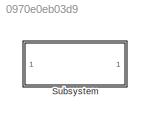
MODEL slx_0970e0eb03d9
KIND library
CONFIG AbsTol = auto
CONFIG EnableMultiTasking = off
CONFIG FixedStep = auto
CONFIG MaxStep = auto
CONFIG MinStep = auto
CONFIG RelTol = 1e-3
CONFIG SampleTimeConstraint = Unconstrained
CONFIG Solver = VariableStepAuto
CONFIG SolverName = VariableStepAuto
CONFIG StartTime = 0.0
CONFIG StopTime = 10.0
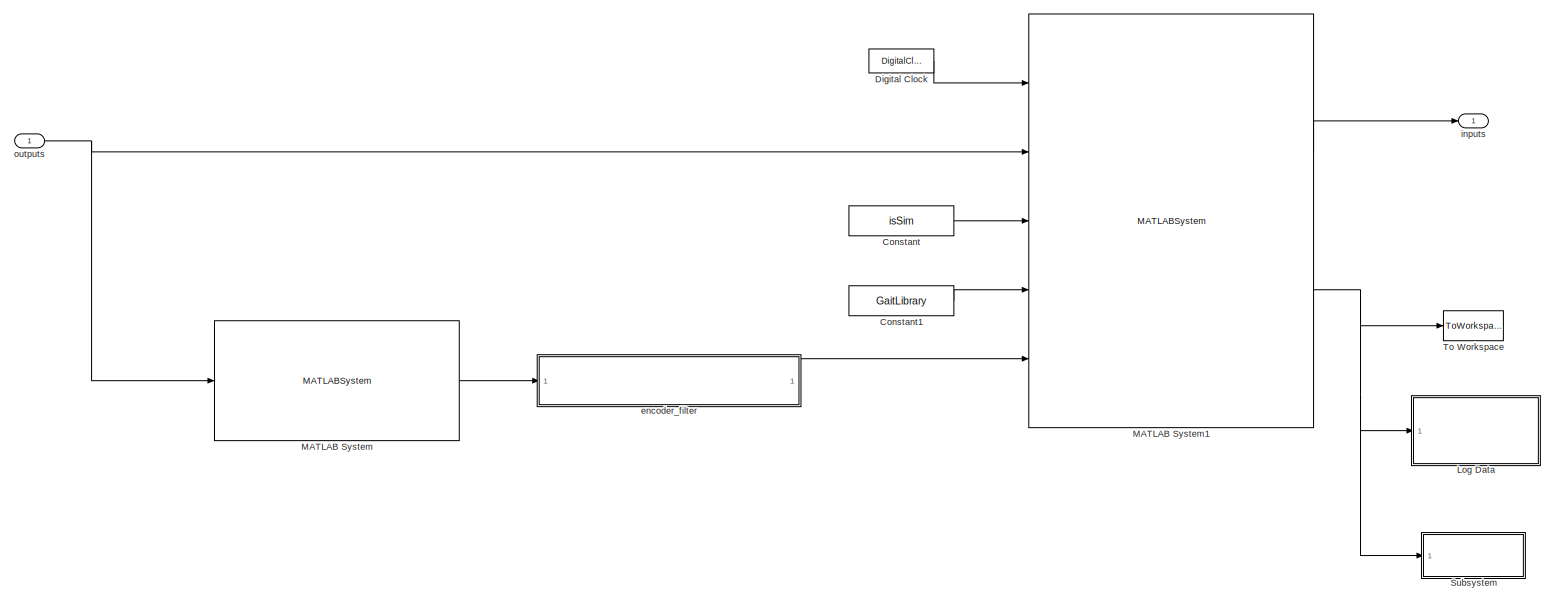
[diagram: Subsystem - part 1/1, most of the canvas]
BLOCK [SubSystem] Subsystem
  Ports = [1, 1]
  RequestExecContextInheritance = off
  Variant = off
BLOCK [Constant] Subsystem/Constant
  LockScale = on
  OutDataTypeStr = boolean
  Value = isSim
BLOCK [Constant] Subsystem/Constant1
  LockScale = on
  OutDataTypeStr = Bus: cassieGaitLibraryBus
  Value = GaitLibrary
BLOCK [DigitalClock] Subsystem/Digital Clock
  SampleTime = UserParams.SampleTime
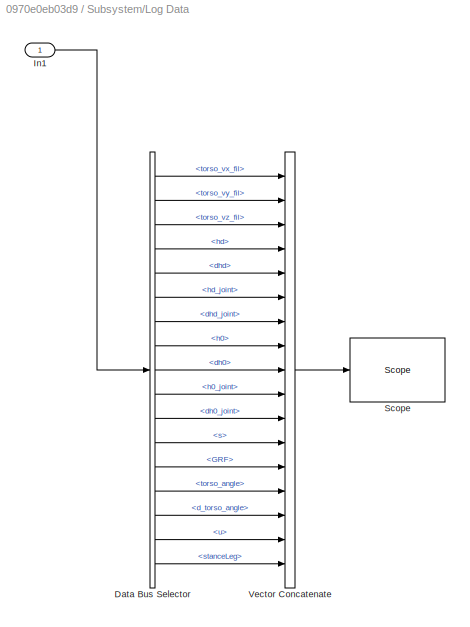
BLOCK [SubSystem] Subsystem/Log Data
  Ports = [1]
  RequestExecContextInheritance = off
  Variant = off
BLOCK [BusSelector] Subsystem/Log Data/Data Bus Selector
  OutputAsBus = off
  OutputSignals = torso_vx_fil,torso_vy_fil,torso_vz_fil,hd,dhd,hd_joint,dhd_joint,h0,dh0,h0_joint,dh0_joint,s,GRF,torso_angle,d_torso_angle,u,stanceLeg
  Ports = [1, 17]
BLOCK [Inport] Subsystem/Log Data/In1
  IconDisplay = Port number
  OutDataTypeStr = Bus: cassieDataBus
BLOCK [Reference] Subsystem/Log Data/Scope   REF=slrtlib/Displays and
Logging/Scope 
  Ports = [1]
  SourceBlock = slrtlib/Displays and\nLogging/Scope
  SourceProductBaseCode = XP
  SourceProductName = Simulink Real-Time
  SourceType = xpcscopeblock
BLOCK [Concatenate] Subsystem/Log Data/Vector Concatenate
  NumInputs = 17
  Ports = [17, 1]
BLOCK [MATLABSystem] Subsystem/MATLAB System
  MaskDisplay = disp('ExtractJointPosition');\nport_label('input',1,'cassieOutputs');\nport_label('output',1,'JointPosition');
  MaskType = ExtractJointPosition
  Ports = [1, 1]
  SimulateUsing = Code generation
  System = ExtractJointPosition
BLOCK [MATLABSystem] Subsystem/MATLAB System1
  Kd_abduction = c_Kd_abduction
  Kd_abduction_stand = c_Kd_abduction_stand
  Kd_knee = c_Kd_knee
  Kd_knee_stand = c_Kd_knee_stand
  Kd_lateral_stand = c_Kd_lateral_stand
  Kd_pitch = c_Kd_pitch
  Kd_roll = c_Kd_roll
  Kd_rotation = c_Kd_rotation
  Kd_rotation_stand = c_Kd_rotation_stand
  Kd_thigh = c_Kd_thigh
  Kd_thigh_stand = c_Kd_thigh_stand
  Kd_toe = c_Kd_toe
  Kd_toe_stand = c_Kd_toe_stand
  Kd_yaw = c_Kd_yaw
  Kfl_d = c_Kfl_d
  Kfl_p = c_Kfl_p
  Kfs_d = c_Kfs_d
  Kfs_p = c_Kfs_p
  Kp_abduction = c_Kp_abduction
  Kp_abduction_stand = c_Kp_abduction_stand
  Kp_knee = c_Kp_knee
  Kp_knee_stand = c_Kp_knee_stand
  Kp_lateral_stand = c_Kp_lateral_stand
  Kp_pitch = c_Kp_pitch
  Kp_roll = c_Kp_roll
  Kp_rotation = c_Kp_rotation
  Kp_rotation_stand = c_Kp_rotation_stand
  Kp_thigh = c_Kp_thigh
  Kp_thigh_stand = c_Kp_thigh_stand
  Kp_toe = c_Kp_toe
  Kp_toe_stand = c_Kp_toe_stand
  Kp_yaw = c_Kp_yaw
  MaskDisplay = disp('FG_Controller');\nport_label('input',1,'t');\nport_label('input',2,'cassieOutputs');\nport_label('input',3,'isSim');\nport_label('input',4,'GaitLibrary');\nport_label('input',5,'encoder_fil');\nport_label('output',1,'userInputs');\nport_label('output',2,'Data');
  MaskType = FG_Controller
  Ports = [5, 2]
  SimulateUsing = Code generation
  System = FG_Controller
  abduction_inward_gain = c_abduction_inward_gain
  fil_para_2 = c_fil_para_2
  fil_para_3 = c_fil_para_3
  fil_para_4 = c_fil_para_4
  fil_para_5 = c_fil_para_5
  fil_para_x = c_fil_para_x
  fil_para_y = c_fil_para_y
  final_st_abduction = c_final_st_abduction
  final_sw_abduction = c_final_sw_abduction
  force_step_end_s = c_force_step_end_s
  init_lateral_velocity = c_init_lateral_velocity
  joint_filter_choice = c_joint_filter_choice
  lateral_offset_exp = c_lateral_offset_exp
  lateral_velocity_weight = c_lateral_velocity_weight
  pre_final_sw_abduction = c_pre_final_sw_abduction
  sagittal_offset_exp = c_sagittal_offset_exp
  shift_distance = c_shift_distance
  shift_time = c_shift_time
  stance_thre_lb = c_stance_thre_lb
  stance_thre_ub = c_stance_thre_ub
  stand_offset_exp = c_stand_offset_exp
  standing_switch_time = c_standing_switch_time
  toe_tilt_angle = c_toe_tilt_angle
  turning_offset_exp = c_turning_offset_exp
  u_abduction_cp = c_u_abduction_cp
  u_abduction_swing_cp = c_u_abduction_swing_cp
  u_knee_cp = c_u_knee_cp
  u_thigh_cp = c_u_thigh_cp
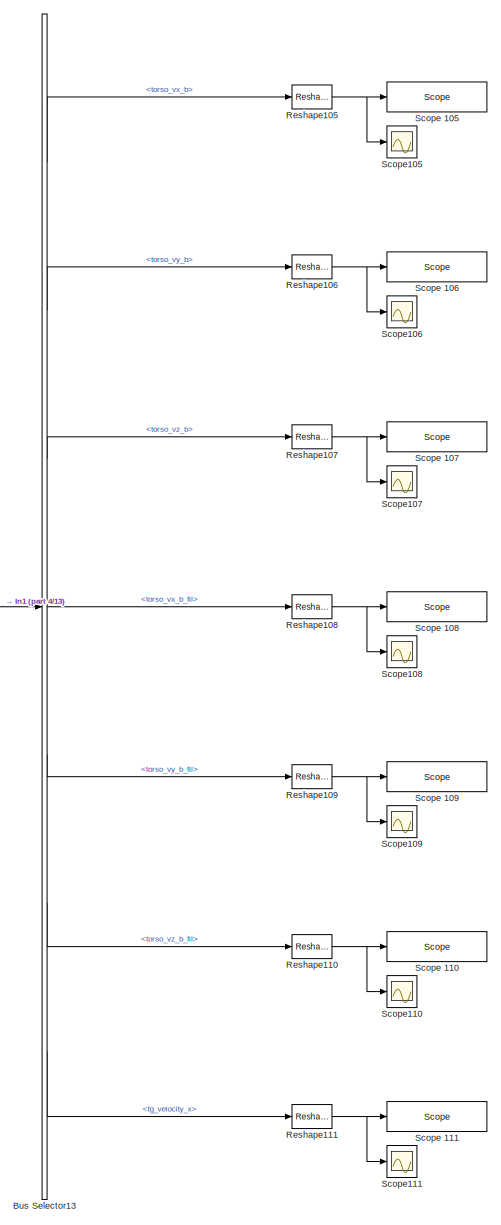
[diagram: Subsystem/Subsystem - part 1/13, top right region]
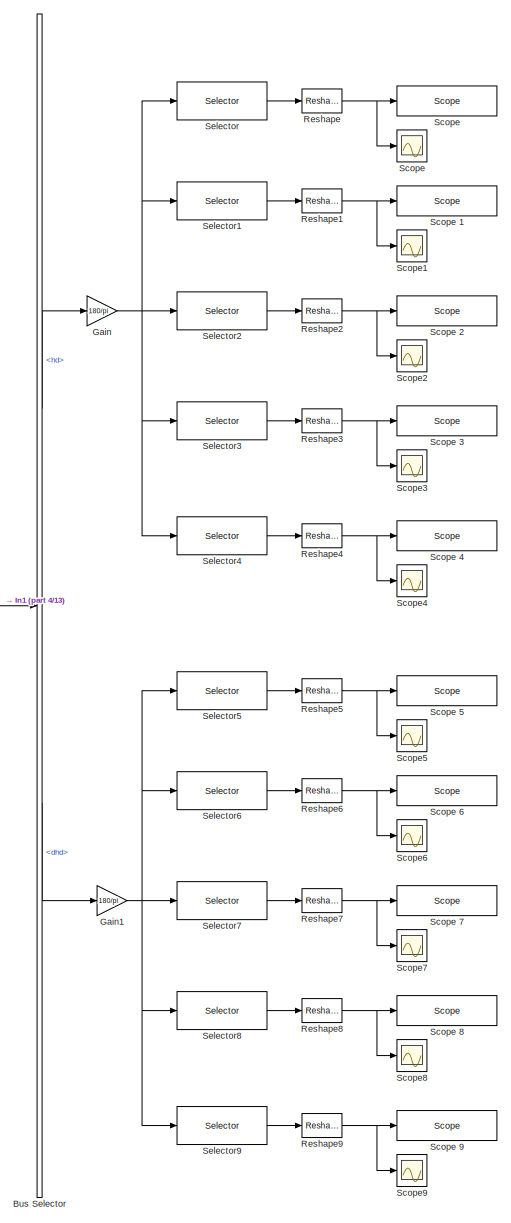
[diagram: Subsystem/Subsystem - part 2/13, top left region]
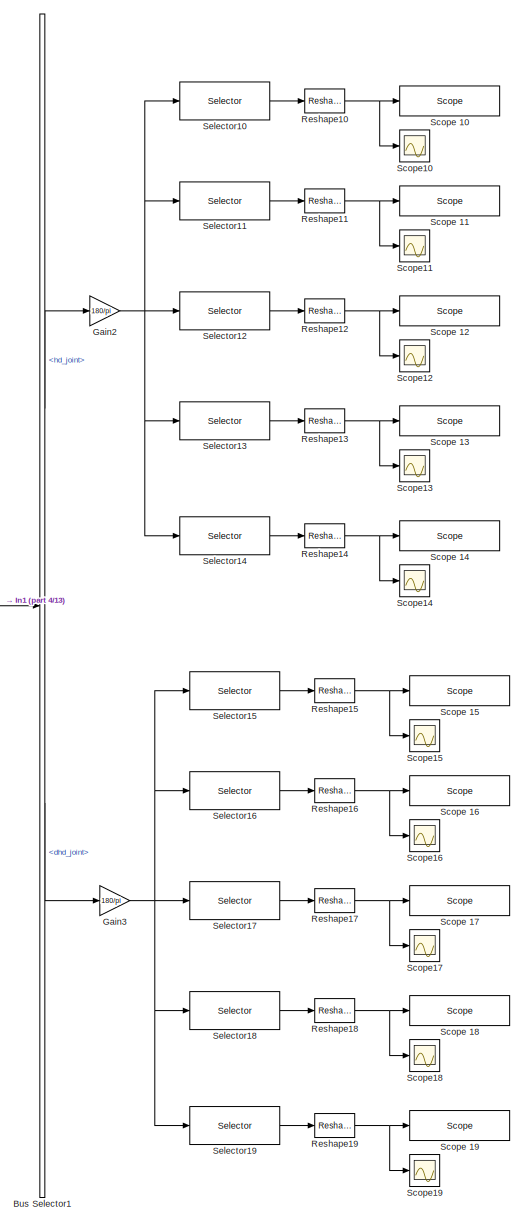
[diagram: Subsystem/Subsystem - part 3/13, top center region]
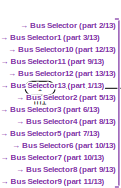
[diagram: Subsystem/Subsystem - part 4/13, top left region]
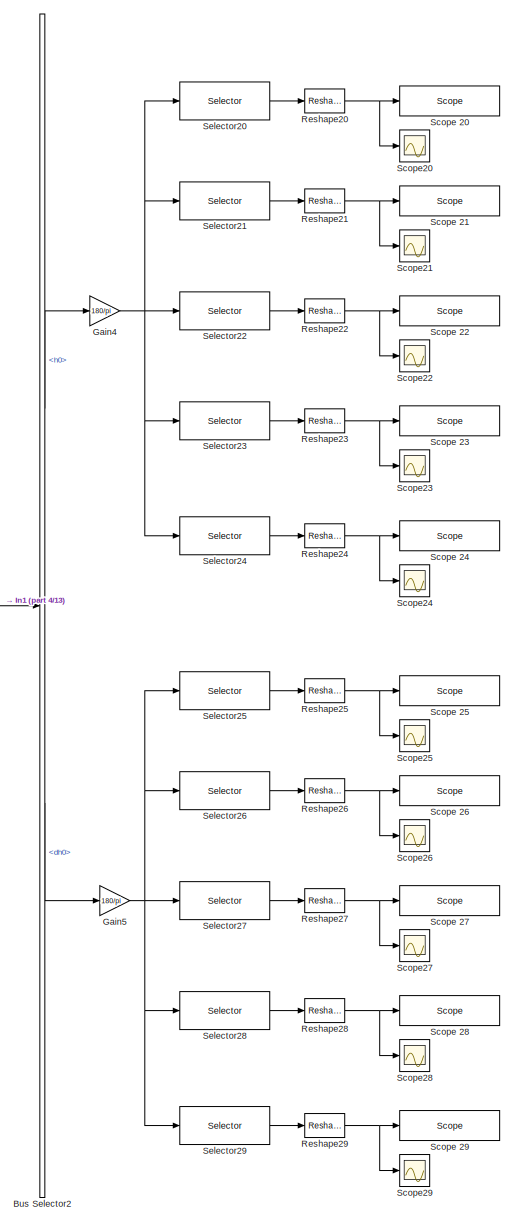
[diagram: Subsystem/Subsystem - part 5/13, top left region]
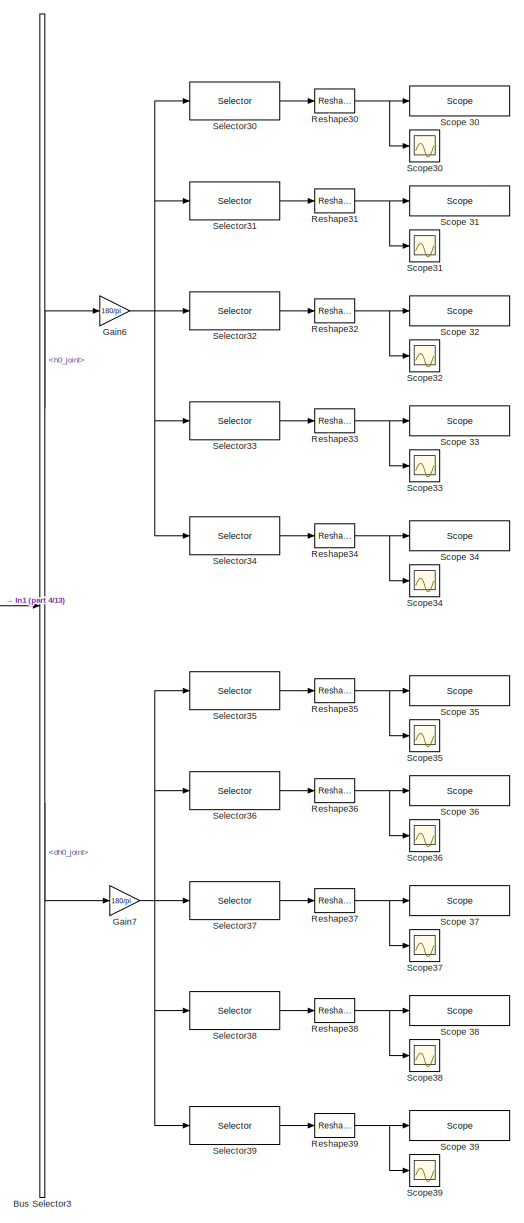
[diagram: Subsystem/Subsystem - part 6/13, top center region]
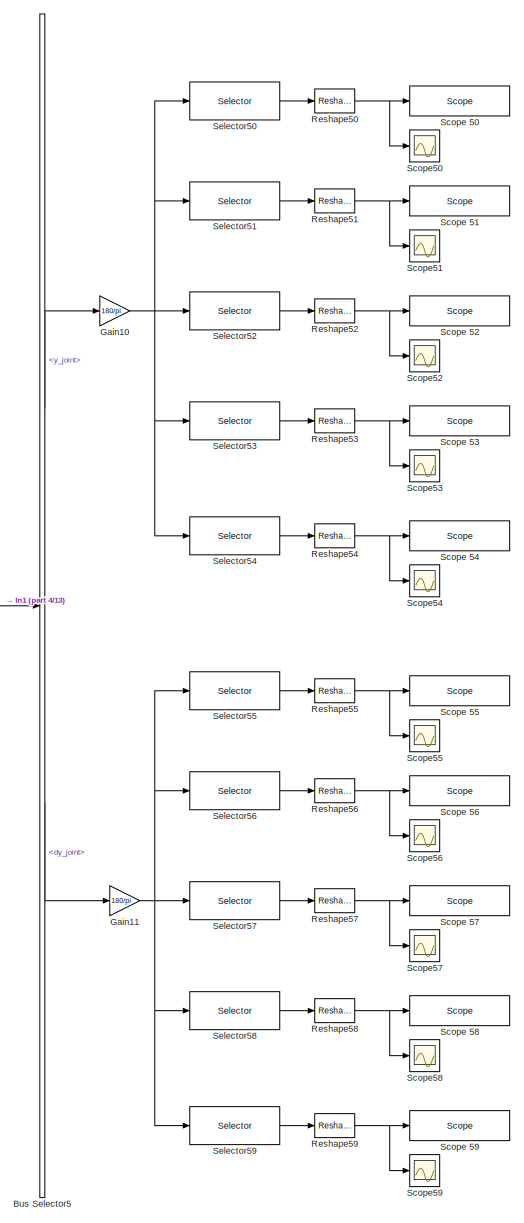
[diagram: Subsystem/Subsystem - part 7/13, central region]
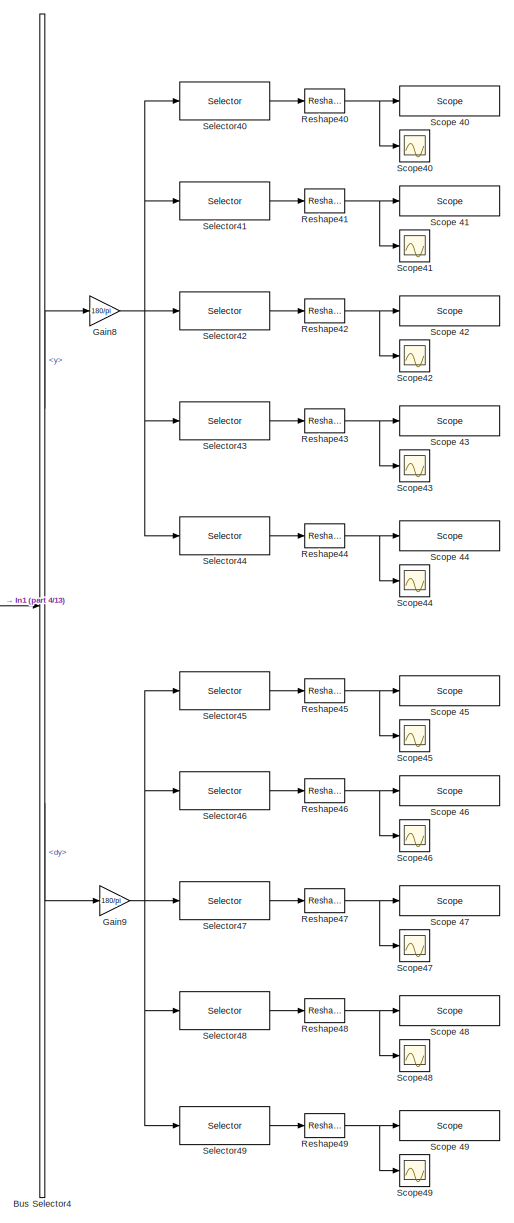
[diagram: Subsystem/Subsystem - part 8/13, middle left region]
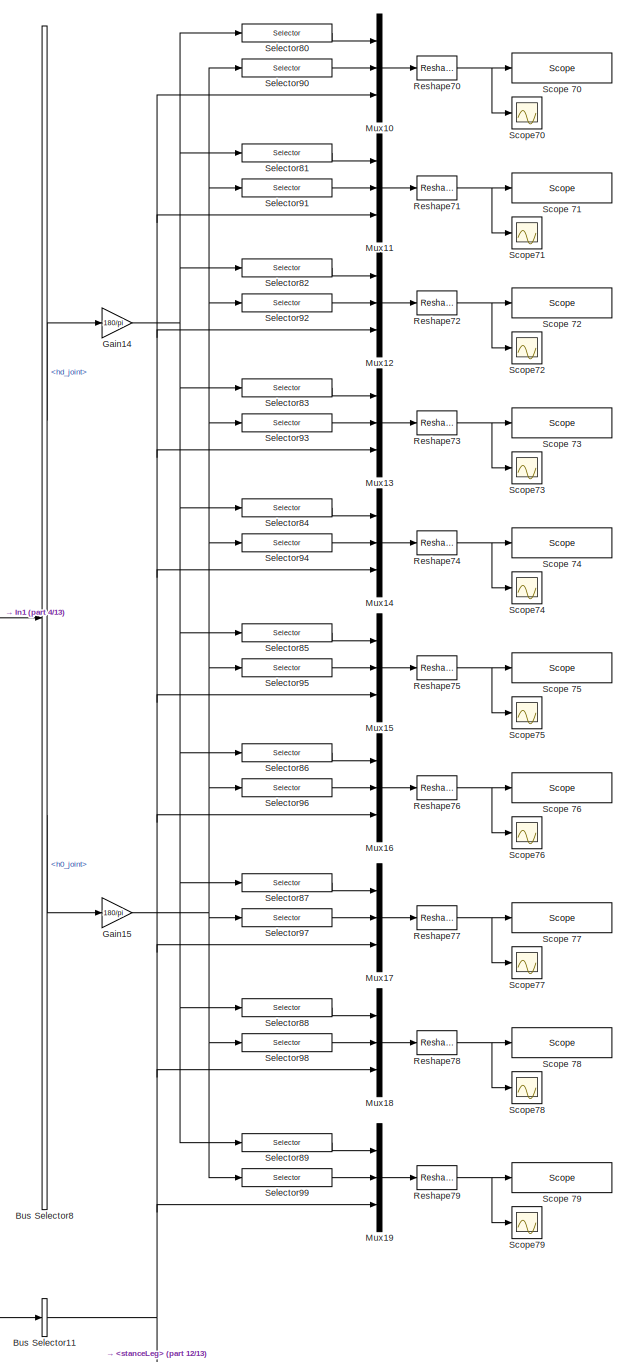
[diagram: Subsystem/Subsystem - part 9/13, central region]
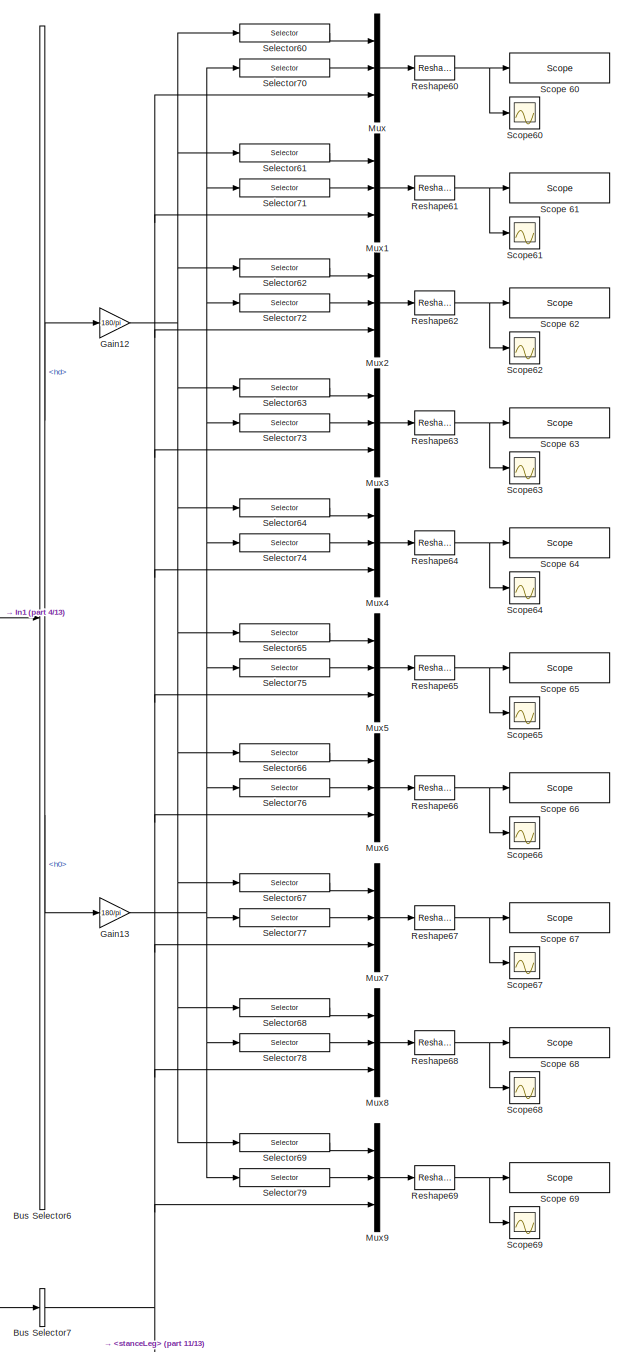
[diagram: Subsystem/Subsystem - part 10/13, middle left region]
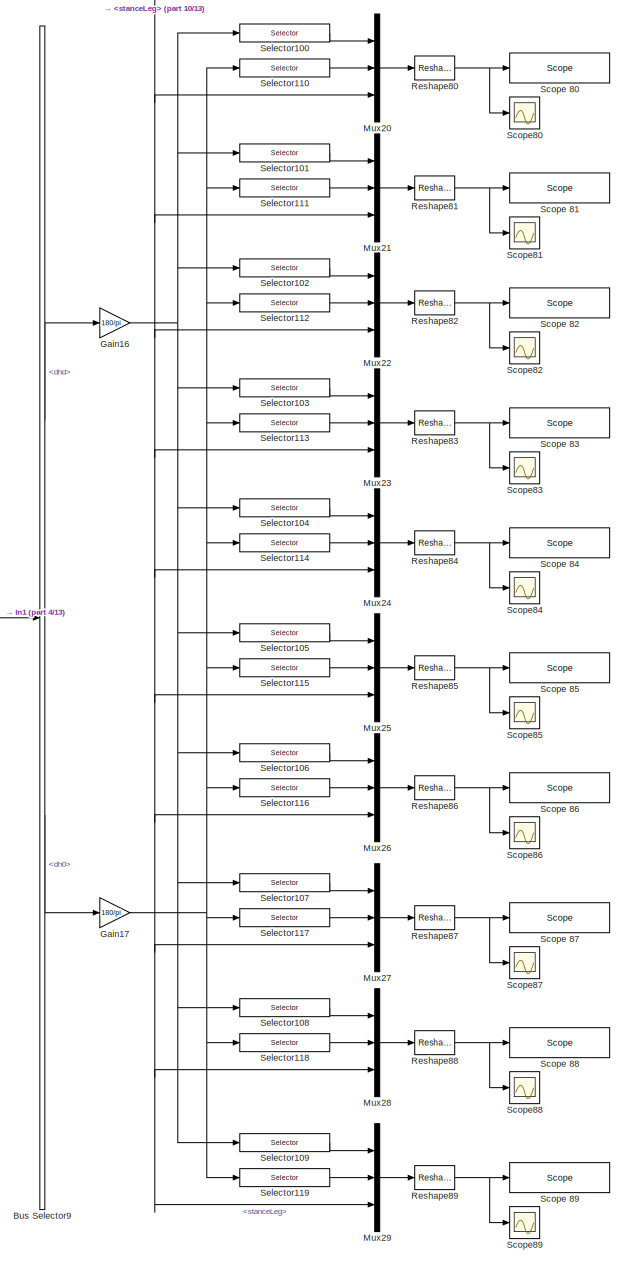
[diagram: Subsystem/Subsystem - part 11/13, bottom left region]
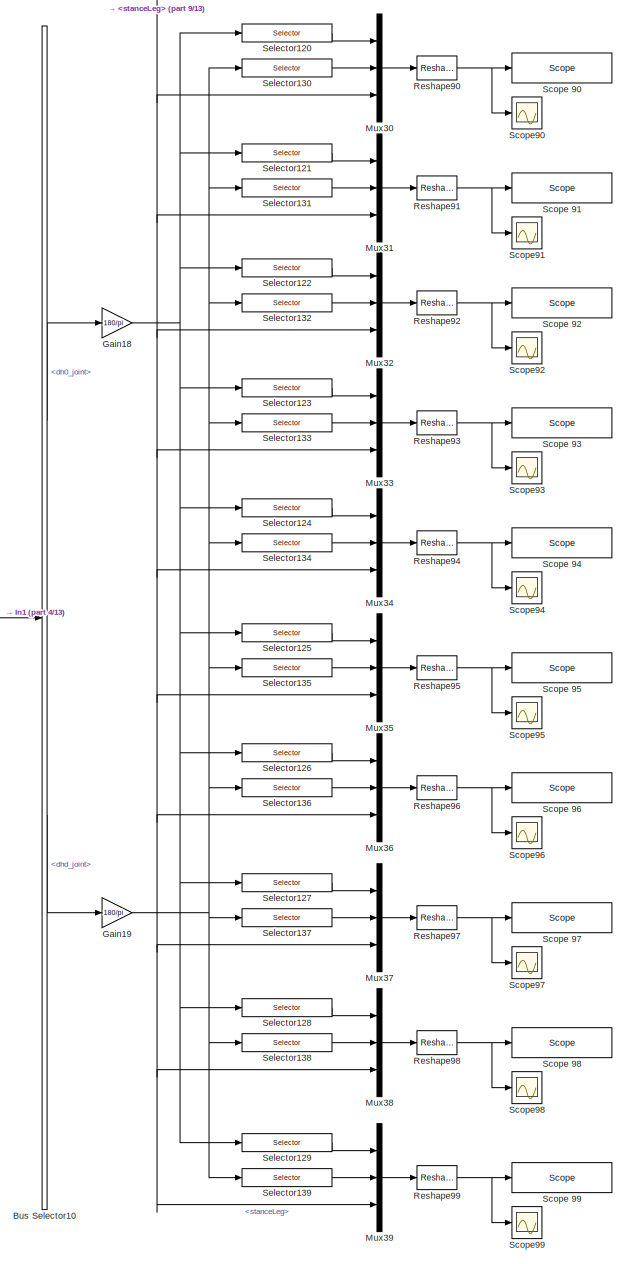
[diagram: Subsystem/Subsystem - part 12/13, bottom center region]
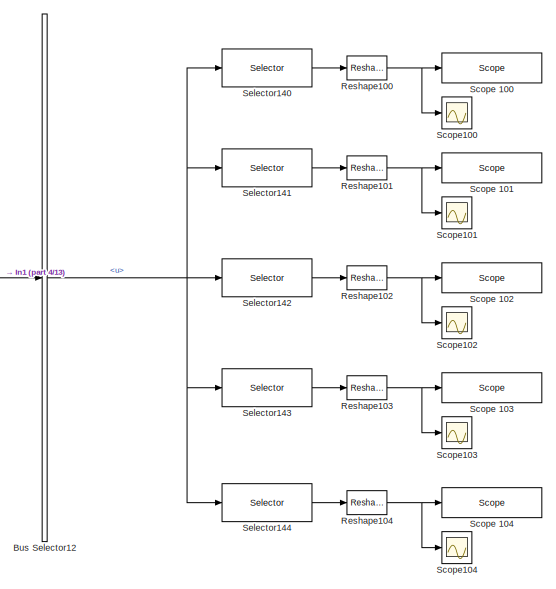
[diagram: Subsystem/Subsystem - part 13/13, bottom left region]
BLOCK [SubSystem] Subsystem/Subsystem
  Ports = [1]
  RequestExecContextInheritance = off
  Variant = off
BLOCK [BusSelector] Subsystem/Subsystem/Bus Selector
  OutputAsBus = off
  OutputSignals = hd,dhd
  Ports = [1, 2]
BLOCK [BusSelector] Subsystem/Subsystem/Bus Selector1
  OutputAsBus = off
  OutputSignals = hd_joint,dhd_joint
  Ports = [1, 2]
BLOCK [BusSelector] Subsystem/Subsystem/Bus Selector10
  OutputAsBus = off
  OutputSignals = dh0_joint,dhd_joint
  Ports = [1, 2]
BLOCK [BusSelector] Subsystem/Subsystem/Bus Selector11
  OutputAsBus = off
  OutputSignals = stanceLeg
  Ports = [1, 1]
BLOCK [BusSelector] Subsystem/Subsystem/Bus Selector12
  OutputAsBus = off
  OutputSignals = u
  Ports = [1, 1]
BLOCK [BusSelector] Subsystem/Subsystem/Bus Selector13
  OutputAsBus = off
  OutputSignals = torso_vx_b,torso_vy_b,torso_vz_b,torso_vx_b_fil,torso_vy_b_fil,torso_vz_b_fil,tg_velocity_x
  Ports = [1, 7]
BLOCK [BusSelector] Subsystem/Subsystem/Bus Selector2
  OutputAsBus = off
  OutputSignals = h0,dh0
  Ports = [1, 2]
BLOCK [BusSelector] Subsystem/Subsystem/Bus Selector3
  OutputAsBus = off
  OutputSignals = h0_joint,dh0_joint
  Ports = [1, 2]
BLOCK [BusSelector] Subsystem/Subsystem/Bus Selector4
  OutputAsBus = off
  OutputSignals = y,dy
  Ports = [1, 2]
BLOCK [BusSelector] Subsystem/Subsystem/Bus Selector5
  OutputAsBus = off
  OutputSignals = y_joint,dy_joint
  Ports = [1, 2]
BLOCK [BusSelector] Subsystem/Subsystem/Bus Selector6
  OutputAsBus = off
  OutputSignals = hd,h0
  Ports = [1, 2]
BLOCK [BusSelector] Subsystem/Subsystem/Bus Selector7
  OutputAsBus = off
  OutputSignals = stanceLeg
  Ports = [1, 1]
BLOCK [BusSelector] Subsystem/Subsystem/Bus Selector8
  OutputAsBus = off
  OutputSignals = hd_joint,h0_joint
  Ports = [1, 2]
BLOCK [BusSelector] Subsystem/Subsystem/Bus Selector9
  OutputAsBus = off
  OutputSignals = dhd,dh0
  Ports = [1, 2]
BLOCK [Gain] Subsystem/Subsystem/Gain
  Gain = 180/pi
  OutDataTypeStr = Inherit: Inherit via internal rule
  ParamDataTypeStr = Inherit: Inherit via internal rule
  SaturateOnIntegerOverflow = off
BLOCK [Gain] Subsystem/Subsystem/Gain1
  Gain = 180/pi
  OutDataTypeStr = Inherit: Inherit via internal rule
  ParamDataTypeStr = Inherit: Inherit via internal rule
  SaturateOnIntegerOverflow = off
BLOCK [Gain] Subsystem/Subsystem/Gain10
  Gain = 180/pi
  OutDataTypeStr = Inherit: Inherit via internal rule
  ParamDataTypeStr = Inherit: Inherit via internal rule
  SaturateOnIntegerOverflow = off
BLOCK [Gain] Subsystem/Subsystem/Gain11
  Gain = 180/pi
  OutDataTypeStr = Inherit: Inherit via internal rule
  ParamDataTypeStr = Inherit: Inherit via internal rule
  SaturateOnIntegerOverflow = off
BLOCK [Gain] Subsystem/Subsystem/Gain12
  Gain = 180/pi
  OutDataTypeStr = Inherit: Inherit via internal rule
  ParamDataTypeStr = Inherit: Inherit via internal rule
  SaturateOnIntegerOverflow = off
BLOCK [Gain] Subsystem/Subsystem/Gain13
  Gain = 180/pi
  OutDataTypeStr = Inherit: Inherit via internal rule
  ParamDataTypeStr = Inherit: Inherit via internal rule
  SaturateOnIntegerOverflow = off
BLOCK [Gain] Subsystem/Subsystem/Gain14
  Gain = 180/pi
  OutDataTypeStr = Inherit: Inherit via internal rule
  ParamDataTypeStr = Inherit: Inherit via internal rule
  SaturateOnIntegerOverflow = off
BLOCK [Gain] Subsystem/Subsystem/Gain15
  Gain = 180/pi
  OutDataTypeStr = Inherit: Inherit via internal rule
  ParamDataTypeStr = Inherit: Inherit via internal rule
  SaturateOnIntegerOverflow = off
BLOCK [Gain] Subsystem/Subsystem/Gain16
  Gain = 180/pi
  OutDataTypeStr = Inherit: Inherit via internal rule
  ParamDataTypeStr = Inherit: Inherit via internal rule
  SaturateOnIntegerOverflow = off
BLOCK [Gain] Subsystem/Subsystem/Gain17
  Gain = 180/pi
  OutDataTypeStr = Inherit: Inherit via internal rule
  ParamDataTypeStr = Inherit: Inherit via internal rule
  SaturateOnIntegerOverflow = off
BLOCK [Gain] Subsystem/Subsystem/Gain18
  Gain = 180/pi
  OutDataTypeStr = Inherit: Inherit via internal rule
  ParamDataTypeStr = Inherit: Inherit via internal rule
  SaturateOnIntegerOverflow = off
BLOCK [Gain] Subsystem/Subsystem/Gain19
  Gain = 180/pi
  OutDataTypeStr = Inherit: Inherit via internal rule
  ParamDataTypeStr = Inherit: Inherit via internal rule
  SaturateOnIntegerOverflow = off
BLOCK [Gain] Subsystem/Subsystem/Gain2
  Gain = 180/pi
  OutDataTypeStr = Inherit: Inherit via internal rule
  ParamDataTypeStr = Inherit: Inherit via internal rule
  SaturateOnIntegerOverflow = off
BLOCK [Gain] Subsystem/Subsystem/Gain3
  Gain = 180/pi
  OutDataTypeStr = Inherit: Inherit via internal rule
  ParamDataTypeStr = Inherit: Inherit via internal rule
  SaturateOnIntegerOverflow = off
BLOCK [Gain] Subsystem/Subsystem/Gain4
  Gain = 180/pi
  OutDataTypeStr = Inherit: Inherit via internal rule
  ParamDataTypeStr = Inherit: Inherit via internal rule
  SaturateOnIntegerOverflow = off
BLOCK [Gain] Subsystem/Subsystem/Gain5
  Gain = 180/pi
  OutDataTypeStr = Inherit: Inherit via internal rule
  ParamDataTypeStr = Inherit: Inherit via internal rule
  SaturateOnIntegerOverflow = off
BLOCK [Gain] Subsystem/Subsystem/Gain6
  Gain = 180/pi
  OutDataTypeStr = Inherit: Inherit via internal rule
  ParamDataTypeStr = Inherit: Inherit via internal rule
  SaturateOnIntegerOverflow = off
BLOCK [Gain] Subsystem/Subsystem/Gain7
  Gain = 180/pi
  OutDataTypeStr = Inherit: Inherit via internal rule
  ParamDataTypeStr = Inherit: Inherit via internal rule
  SaturateOnIntegerOverflow = off
BLOCK [Gain] Subsystem/Subsystem/Gain8
  Gain = 180/pi
  OutDataTypeStr = Inherit: Inherit via internal rule
  ParamDataTypeStr = Inherit: Inherit via internal rule
  SaturateOnIntegerOverflow = off
BLOCK [Gain] Subsystem/Subsystem/Gain9
  Gain = 180/pi
  OutDataTypeStr = Inherit: Inherit via internal rule
  ParamDataTypeStr = Inherit: Inherit via internal rule
  SaturateOnIntegerOverflow = off
BLOCK [Inport] Subsystem/Subsystem/In1
  IconDisplay = Port number
  OutDataTypeStr = Bus: cassieDataBus
BLOCK [Mux] Subsystem/Subsystem/Mux
  DisplayOption = bar
  Inputs = 3
  Ports = [3, 1]
BLOCK [Mux] Subsystem/Subsystem/Mux1
  DisplayOption = bar
  Inputs = 3
  Ports = [3, 1]
BLOCK [Mux] Subsystem/Subsystem/Mux10
  DisplayOption = bar
  Inputs = 3
  Ports = [3, 1]
BLOCK [Mux] Subsystem/Subsystem/Mux11
  DisplayOption = bar
  Inputs = 3
  Ports = [3, 1]
BLOCK [Mux] Subsystem/Subsystem/Mux12
  DisplayOption = bar
  Inputs = 3
  Ports = [3, 1]
BLOCK [Mux] Subsystem/Subsystem/Mux13
  DisplayOption = bar
  Inputs = 3
  Ports = [3, 1]
BLOCK [Mux] Subsystem/Subsystem/Mux14
  DisplayOption = bar
  Inputs = 3
  Ports = [3, 1]
BLOCK [Mux] Subsystem/Subsystem/Mux15
  DisplayOption = bar
  Inputs = 3
  Ports = [3, 1]
BLOCK [Mux] Subsystem/Subsystem/Mux16
  DisplayOption = bar
  Inputs = 3
  Ports = [3, 1]
BLOCK [Mux] Subsystem/Subsystem/Mux17
  DisplayOption = bar
  Inputs = 3
  Ports = [3, 1]
BLOCK [Mux] Subsystem/Subsystem/Mux18
  DisplayOption = bar
  Inputs = 3
  Ports = [3, 1]
BLOCK [Mux] Subsystem/Subsystem/Mux19
  DisplayOption = bar
  Inputs = 3
  Ports = [3, 1]
BLOCK [Mux] Subsystem/Subsystem/Mux2
  DisplayOption = bar
  Inputs = 3
  Ports = [3, 1]
BLOCK [Mux] Subsystem/Subsystem/Mux20
  DisplayOption = bar
  Inputs = 3
  Ports = [3, 1]
BLOCK [Mux] Subsystem/Subsystem/Mux21
  DisplayOption = bar
  Inputs = 3
  Ports = [3, 1]
BLOCK [Mux] Subsystem/Subsystem/Mux22
  DisplayOption = bar
  Inputs = 3
  Ports = [3, 1]
BLOCK [Mux] Subsystem/Subsystem/Mux23
  DisplayOption = bar
  Inputs = 3
  Ports = [3, 1]
BLOCK [Mux] Subsystem/Subsystem/Mux24
  DisplayOption = bar
  Inputs = 3
  Ports = [3, 1]
BLOCK [Mux] Subsystem/Subsystem/Mux25
  DisplayOption = bar
  Inputs = 3
  Ports = [3, 1]
BLOCK [Mux] Subsystem/Subsystem/Mux26
  DisplayOption = bar
  Inputs = 3
  Ports = [3, 1]
BLOCK [Mux] Subsystem/Subsystem/Mux27
  DisplayOption = bar
  Inputs = 3
  Ports = [3, 1]
BLOCK [Mux] Subsystem/Subsystem/Mux28
  DisplayOption = bar
  Inputs = 3
  Ports = [3, 1]
BLOCK [Mux] Subsystem/Subsystem/Mux29
  DisplayOption = bar
  Inputs = 3
  Ports = [3, 1]
BLOCK [Mux] Subsystem/Subsystem/Mux3
  DisplayOption = bar
  Inputs = 3
  Ports = [3, 1]
BLOCK [Mux] Subsystem/Subsystem/Mux30
  DisplayOption = bar
  Inputs = 3
  Ports = [3, 1]
BLOCK [Mux] Subsystem/Subsystem/Mux31
  DisplayOption = bar
  Inputs = 3
  Ports = [3, 1]
BLOCK [Mux] Subsystem/Subsystem/Mux32
  DisplayOption = bar
  Inputs = 3
  Ports = [3, 1]
BLOCK [Mux] Subsystem/Subsystem/Mux33
  DisplayOption = bar
  Inputs = 3
  Ports = [3, 1]
BLOCK [Mux] Subsystem/Subsystem/Mux34
  DisplayOption = bar
  Inputs = 3
  Ports = [3, 1]
BLOCK [Mux] Subsystem/Subsystem/Mux35
  DisplayOption = bar
  Inputs = 3
  Ports = [3, 1]
BLOCK [Mux] Subsystem/Subsystem/Mux36
  DisplayOption = bar
  Inputs = 3
  Ports = [3, 1]
BLOCK [Mux] Subsystem/Subsystem/Mux37
  DisplayOption = bar
  Inputs = 3
  Ports = [3, 1]
BLOCK [Mux] Subsystem/Subsystem/Mux38
  DisplayOption = bar
  Inputs = 3
  Ports = [3, 1]
BLOCK [Mux] Subsystem/Subsystem/Mux39
  DisplayOption = bar
  Inputs = 3
  Ports = [3, 1]
BLOCK [Mux] Subsystem/Subsystem/Mux4
  DisplayOption = bar
  Inputs = 3
  Ports = [3, 1]
BLOCK [Mux] Subsystem/Subsystem/Mux5
  DisplayOption = bar
  Inputs = 3
  Ports = [3, 1]
BLOCK [Mux] Subsystem/Subsystem/Mux6
  DisplayOption = bar
  Inputs = 3
  Ports = [3, 1]
BLOCK [Mux] Subsystem/Subsystem/Mux7
  DisplayOption = bar
  Inputs = 3
  Ports = [3, 1]
BLOCK [Mux] Subsystem/Subsystem/Mux8
  DisplayOption = bar
  Inputs = 3
  Ports = [3, 1]
BLOCK [Mux] Subsystem/Subsystem/Mux9
  DisplayOption = bar
  Inputs = 3
  Ports = [3, 1]
BLOCK [Reshape] Subsystem/Subsystem/Reshape
  Ports = [1, 1]
BLOCK [Reshape] Subsystem/Subsystem/Reshape1
  Ports = [1, 1]
BLOCK [Reshape] Subsystem/Subsystem/Reshape10
  Ports = [1, 1]
BLOCK [Reshape] Subsystem/Subsystem/Reshape100
  Ports = [1, 1]
BLOCK [Reshape] Subsystem/Subsystem/Reshape101
  Ports = [1, 1]
BLOCK [Reshape] Subsystem/Subsystem/Reshape102
  Ports = [1, 1]
BLOCK [Reshape] Subsystem/Subsystem/Reshape103
  Ports = [1, 1]
BLOCK [Reshape] Subsystem/Subsystem/Reshape104
  Ports = [1, 1]
BLOCK [Reshape] Subsystem/Subsystem/Reshape105
  Ports = [1, 1]
BLOCK [Reshape] Subsystem/Subsystem/Reshape106
  Ports = [1, 1]
BLOCK [Reshape] Subsystem/Subsystem/Reshape107
  Ports = [1, 1]
BLOCK [Reshape] Subsystem/Subsystem/Reshape108
  Ports = [1, 1]
BLOCK [Reshape] Subsystem/Subsystem/Reshape109
  Ports = [1, 1]
BLOCK [Reshape] Subsystem/Subsystem/Reshape11
  Ports = [1, 1]
BLOCK [Reshape] Subsystem/Subsystem/Reshape110
  Ports = [1, 1]
BLOCK [Reshape] Subsystem/Subsystem/Reshape111
  Ports = [1, 1]
BLOCK [Reshape] Subsystem/Subsystem/Reshape12
  Ports = [1, 1]
BLOCK [Reshape] Subsystem/Subsystem/Reshape13
  Ports = [1, 1]
BLOCK [Reshape] Subsystem/Subsystem/Reshape14
  Ports = [1, 1]
BLOCK [Reshape] Subsystem/Subsystem/Reshape15
  Ports = [1, 1]
BLOCK [Reshape] Subsystem/Subsystem/Reshape16
  Ports = [1, 1]
BLOCK [Reshape] Subsystem/Subsystem/Reshape17
  Ports = [1, 1]
BLOCK [Reshape] Subsystem/Subsystem/Reshape18
  Ports = [1, 1]
BLOCK [Reshape] Subsystem/Subsystem/Reshape19
  Ports = [1, 1]
BLOCK [Reshape] Subsystem/Subsystem/Reshape2
  Ports = [1, 1]
BLOCK [Reshape] Subsystem/Subsystem/Reshape20
  Ports = [1, 1]
BLOCK [Reshape] Subsystem/Subsystem/Reshape21
  Ports = [1, 1]
BLOCK [Reshape] Subsystem/Subsystem/Reshape22
  Ports = [1, 1]
BLOCK [Reshape] Subsystem/Subsystem/Reshape23
  Ports = [1, 1]
BLOCK [Reshape] Subsystem/Subsystem/Reshape24
  Ports = [1, 1]
BLOCK [Reshape] Subsystem/Subsystem/Reshape25
  Ports = [1, 1]
BLOCK [Reshape] Subsystem/Subsystem/Reshape26
  Ports = [1, 1]
BLOCK [Reshape] Subsystem/Subsystem/Reshape27
  Ports = [1, 1]
BLOCK [Reshape] Subsystem/Subsystem/Reshape28
  Ports = [1, 1]
BLOCK [Reshape] Subsystem/Subsystem/Reshape29
  Ports = [1, 1]
BLOCK [Reshape] Subsystem/Subsystem/Reshape3
  Ports = [1, 1]
BLOCK [Reshape] Subsystem/Subsystem/Reshape30
  Ports = [1, 1]
BLOCK [Reshape] Subsystem/Subsystem/Reshape31
  Ports = [1, 1]
BLOCK [Reshape] Subsystem/Subsystem/Reshape32
  Ports = [1, 1]
BLOCK [Reshape] Subsystem/Subsystem/Reshape33
  Ports = [1, 1]
BLOCK [Reshape] Subsystem/Subsystem/Reshape34
  Ports = [1, 1]
BLOCK [Reshape] Subsystem/Subsystem/Reshape35
  Ports = [1, 1]
BLOCK [Reshape] Subsystem/Subsystem/Reshape36
  Ports = [1, 1]
BLOCK [Reshape] Subsystem/Subsystem/Reshape37
  Ports = [1, 1]
BLOCK [Reshape] Subsystem/Subsystem/Reshape38
  Ports = [1, 1]
BLOCK [Reshape] Subsystem/Subsystem/Reshape39
  Ports = [1, 1]
BLOCK [Reshape] Subsystem/Subsystem/Reshape4
  Ports = [1, 1]
BLOCK [Reshape] Subsystem/Subsystem/Reshape40
  Ports = [1, 1]
BLOCK [Reshape] Subsystem/Subsystem/Reshape41
  Ports = [1, 1]
BLOCK [Reshape] Subsystem/Subsystem/Reshape42
  Ports = [1, 1]
BLOCK [Reshape] Subsystem/Subsystem/Reshape43
  Ports = [1, 1]
BLOCK [Reshape] Subsystem/Subsystem/Reshape44
  Ports = [1, 1]
BLOCK [Reshape] Subsystem/Subsystem/Reshape45
  Ports = [1, 1]
BLOCK [Reshape] Subsystem/Subsystem/Reshape46
  Ports = [1, 1]
BLOCK [Reshape] Subsystem/Subsystem/Reshape47
  Ports = [1, 1]
BLOCK [Reshape] Subsystem/Subsystem/Reshape48
  Ports = [1, 1]
BLOCK [Reshape] Subsystem/Subsystem/Reshape49
  Ports = [1, 1]
BLOCK [Reshape] Subsystem/Subsystem/Reshape5
  Ports = [1, 1]
BLOCK [Reshape] Subsystem/Subsystem/Reshape50
  Ports = [1, 1]
BLOCK [Reshape] Subsystem/Subsystem/Reshape51
  Ports = [1, 1]
BLOCK [Reshape] Subsystem/Subsystem/Reshape52
  Ports = [1, 1]
BLOCK [Reshape] Subsystem/Subsystem/Reshape53
  Ports = [1, 1]
BLOCK [Reshape] Subsystem/Subsystem/Reshape54
  Ports = [1, 1]
BLOCK [Reshape] Subsystem/Subsystem/Reshape55
  Ports = [1, 1]
BLOCK [Reshape] Subsystem/Subsystem/Reshape56
  Ports = [1, 1]
BLOCK [Reshape] Subsystem/Subsystem/Reshape57
  Ports = [1, 1]
BLOCK [Reshape] Subsystem/Subsystem/Reshape58
  Ports = [1, 1]
BLOCK [Reshape] Subsystem/Subsystem/Reshape59
  Ports = [1, 1]
BLOCK [Reshape] Subsystem/Subsystem/Reshape6
  Ports = [1, 1]
BLOCK [Reshape] Subsystem/Subsystem/Reshape60
  Ports = [1, 1]
BLOCK [Reshape] Subsystem/Subsystem/Reshape61
  Ports = [1, 1]
BLOCK [Reshape] Subsystem/Subsystem/Reshape62
  Ports = [1, 1]
BLOCK [Reshape] Subsystem/Subsystem/Reshape63
  Ports = [1, 1]
BLOCK [Reshape] Subsystem/Subsystem/Reshape64
  Ports = [1, 1]
BLOCK [Reshape] Subsystem/Subsystem/Reshape65
  Ports = [1, 1]
BLOCK [Reshape] Subsystem/Subsystem/Reshape66
  Ports = [1, 1]
BLOCK [Reshape] Subsystem/Subsystem/Reshape67
  Ports = [1, 1]
BLOCK [Reshape] Subsystem/Subsystem/Reshape68
  Ports = [1, 1]
BLOCK [Reshape] Subsystem/Subsystem/Reshape69
  Ports = [1, 1]
BLOCK [Reshape] Subsystem/Subsystem/Reshape7
  Ports = [1, 1]
BLOCK [Reshape] Subsystem/Subsystem/Reshape70
  Ports = [1, 1]
BLOCK [Reshape] Subsystem/Subsystem/Reshape71
  Ports = [1, 1]
BLOCK [Reshape] Subsystem/Subsystem/Reshape72
  Ports = [1, 1]
BLOCK [Reshape] Subsystem/Subsystem/Reshape73
  Ports = [1, 1]
BLOCK [Reshape] Subsystem/Subsystem/Reshape74
  Ports = [1, 1]
BLOCK [Reshape] Subsystem/Subsystem/Reshape75
  Ports = [1, 1]
BLOCK [Reshape] Subsystem/Subsystem/Reshape76
  Ports = [1, 1]
BLOCK [Reshape] Subsystem/Subsystem/Reshape77
  Ports = [1, 1]
BLOCK [Reshape] Subsystem/Subsystem/Reshape78
  Ports = [1, 1]
BLOCK [Reshape] Subsystem/Subsystem/Reshape79
  Ports = [1, 1]
BLOCK [Reshape] Subsystem/Subsystem/Reshape8
  Ports = [1, 1]
BLOCK [Reshape] Subsystem/Subsystem/Reshape80
  Ports = [1, 1]
BLOCK [Reshape] Subsystem/Subsystem/Reshape81
  Ports = [1, 1]
BLOCK [Reshape] Subsystem/Subsystem/Reshape82
  Ports = [1, 1]
BLOCK [Reshape] Subsystem/Subsystem/Reshape83
  Ports = [1, 1]
BLOCK [Reshape] Subsystem/Subsystem/Reshape84
  Ports = [1, 1]
BLOCK [Reshape] Subsystem/Subsystem/Reshape85
  Ports = [1, 1]
BLOCK [Reshape] Subsystem/Subsystem/Reshape86
  Ports = [1, 1]
BLOCK [Reshape] Subsystem/Subsystem/Reshape87
  Ports = [1, 1]
BLOCK [Reshape] Subsystem/Subsystem/Reshape88
  Ports = [1, 1]
BLOCK [Reshape] Subsystem/Subsystem/Reshape89
  Ports = [1, 1]
BLOCK [Reshape] Subsystem/Subsystem/Reshape9
  Ports = [1, 1]
BLOCK [Reshape] Subsystem/Subsystem/Reshape90
  Ports = [1, 1]
BLOCK [Reshape] Subsystem/Subsystem/Reshape91
  Ports = [1, 1]
BLOCK [Reshape] Subsystem/Subsystem/Reshape92
  Ports = [1, 1]
BLOCK [Reshape] Subsystem/Subsystem/Reshape93
  Ports = [1, 1]
BLOCK [Reshape] Subsystem/Subsystem/Reshape94
  Ports = [1, 1]
BLOCK [Reshape] Subsystem/Subsystem/Reshape95
  Ports = [1, 1]
BLOCK [Reshape] Subsystem/Subsystem/Reshape96
  Ports = [1, 1]
BLOCK [Reshape] Subsystem/Subsystem/Reshape97
  Ports = [1, 1]
BLOCK [Reshape] Subsystem/Subsystem/Reshape98
  Ports = [1, 1]
BLOCK [Reshape] Subsystem/Subsystem/Reshape99
  Ports = [1, 1]
BLOCK [Scope] Subsystem/Subsystem/Scope
  NumInputPorts = 1
  Ports = [1]
  ScopeSpecificationString = Simulink.scopes.TimeScopeBlockCfg('CurrentConfiguration', extmgr.ConfigurationSet(extmgr.Configuration('Core','General UI',true),extmgr.Configuration('Core','Source UI',true),extmgr.Configuration('Sources','WiredSimulink',true),extmgr.Configuration('Visuals','Time Domain',true),extmgr.Configuration('Tools','Plot Navigation',true),extmgr.Configuration('Tools','Measurements',true)),'Version','2017b'...<+1ch>
BLOCK [Reference] Subsystem/Subsystem/Scope   REF=slrtlib/Displays and
Logging/Scope 
  Ports = [1]
  SourceBlock = slrtlib/Displays and\nLogging/Scope
  SourceProductBaseCode = XP
  SourceProductName = Simulink Real-Time
  SourceType = xpcscopeblock
BLOCK [Reference] Subsystem/Subsystem/Scope 1  REF=slrtlib/Displays and
Logging/Scope 
  Ports = [1]
  SourceBlock = slrtlib/Displays and\nLogging/Scope
  SourceProductBaseCode = XP
  SourceProductName = Simulink Real-Time
  SourceType = xpcscopeblock
BLOCK [Reference] Subsystem/Subsystem/Scope 10  REF=slrtlib/Displays and
Logging/Scope 
  Ports = [1]
  SourceBlock = slrtlib/Displays and\nLogging/Scope
  SourceProductBaseCode = XP
  SourceProductName = Simulink Real-Time
  SourceType = xpcscopeblock
BLOCK [Reference] Subsystem/Subsystem/Scope 100  REF=slrtlib/Displays and
Logging/Scope 
  Ports = [1]
  SourceBlock = slrtlib/Displays and\nLogging/Scope
  SourceProductBaseCode = XP
  SourceProductName = Simulink Real-Time
  SourceType = xpcscopeblock
BLOCK [Reference] Subsystem/Subsystem/Scope 101  REF=slrtlib/Displays and
Logging/Scope 
  Ports = [1]
  SourceBlock = slrtlib/Displays and\nLogging/Scope
  SourceProductBaseCode = XP
  SourceProductName = Simulink Real-Time
  SourceType = xpcscopeblock
BLOCK [Reference] Subsystem/Subsystem/Scope 102  REF=slrtlib/Displays and
Logging/Scope 
  Ports = [1]
  SourceBlock = slrtlib/Displays and\nLogging/Scope
  SourceProductBaseCode = XP
  SourceProductName = Simulink Real-Time
  SourceType = xpcscopeblock
BLOCK [Reference] Subsystem/Subsystem/Scope 103  REF=slrtlib/Displays and
Logging/Scope 
  Ports = [1]
  SourceBlock = slrtlib/Displays and\nLogging/Scope
  SourceProductBaseCode = XP
  SourceProductName = Simulink Real-Time
  SourceType = xpcscopeblock
BLOCK [Reference] Subsystem/Subsystem/Scope 104  REF=slrtlib/Displays and
Logging/Scope 
  Ports = [1]
  SourceBlock = slrtlib/Displays and\nLogging/Scope
  SourceProductBaseCode = XP
  SourceProductName = Simulink Real-Time
  SourceType = xpcscopeblock
BLOCK [Reference] Subsystem/Subsystem/Scope 105  REF=slrtlib/Displays and
Logging/Scope 
  Ports = [1]
  SourceBlock = slrtlib/Displays and\nLogging/Scope
  SourceProductBaseCode = XP
  SourceProductName = Simulink Real-Time
  SourceType = xpcscopeblock
BLOCK [Reference] Subsystem/Subsystem/Scope 106  REF=slrtlib/Displays and
Logging/Scope 
  Ports = [1]
  SourceBlock = slrtlib/Displays and\nLogging/Scope
  SourceProductBaseCode = XP
  SourceProductName = Simulink Real-Time
  SourceType = xpcscopeblock
BLOCK [Reference] Subsystem/Subsystem/Scope 107  REF=slrtlib/Displays and
Logging/Scope 
  Ports = [1]
  SourceBlock = slrtlib/Displays and\nLogging/Scope
  SourceProductBaseCode = XP
  SourceProductName = Simulink Real-Time
  SourceType = xpcscopeblock
BLOCK [Reference] Subsystem/Subsystem/Scope 108  REF=slrtlib/Displays and
Logging/Scope 
  Ports = [1]
  SourceBlock = slrtlib/Displays and\nLogging/Scope
  SourceProductBaseCode = XP
  SourceProductName = Simulink Real-Time
  SourceType = xpcscopeblock
BLOCK [Reference] Subsystem/Subsystem/Scope 109  REF=slrtlib/Displays and
Logging/Scope 
  Ports = [1]
  SourceBlock = slrtlib/Displays and\nLogging/Scope
  SourceProductBaseCode = XP
  SourceProductName = Simulink Real-Time
  SourceType = xpcscopeblock
BLOCK [Reference] Subsystem/Subsystem/Scope 11  REF=slrtlib/Displays and
Logging/Scope 
  Ports = [1]
  SourceBlock = slrtlib/Displays and\nLogging/Scope
  SourceProductBaseCode = XP
  SourceProductName = Simulink Real-Time
  SourceType = xpcscopeblock
BLOCK [Reference] Subsystem/Subsystem/Scope 110  REF=slrtlib/Displays and
Logging/Scope 
  Ports = [1]
  SourceBlock = slrtlib/Displays and\nLogging/Scope
  SourceProductBaseCode = XP
  SourceProductName = Simulink Real-Time
  SourceType = xpcscopeblock
BLOCK [Reference] Subsystem/Subsystem/Scope 111  REF=slrtlib/Displays and
Logging/Scope 
  Ports = [1]
  SourceBlock = slrtlib/Displays and\nLogging/Scope
  SourceProductBaseCode = XP
  SourceProductName = Simulink Real-Time
  SourceType = xpcscopeblock
BLOCK [Reference] Subsystem/Subsystem/Scope 12  REF=slrtlib/Displays and
Logging/Scope 
  Ports = [1]
  SourceBlock = slrtlib/Displays and\nLogging/Scope
  SourceProductBaseCode = XP
  SourceProductName = Simulink Real-Time
  SourceType = xpcscopeblock
BLOCK [Reference] Subsystem/Subsystem/Scope 13  REF=slrtlib/Displays and
Logging/Scope 
  Ports = [1]
  SourceBlock = slrtlib/Displays and\nLogging/Scope
  SourceProductBaseCode = XP
  SourceProductName = Simulink Real-Time
  SourceType = xpcscopeblock
BLOCK [Reference] Subsystem/Subsystem/Scope 14  REF=slrtlib/Displays and
Logging/Scope 
  Ports = [1]
  SourceBlock = slrtlib/Displays and\nLogging/Scope
  SourceProductBaseCode = XP
  SourceProductName = Simulink Real-Time
  SourceType = xpcscopeblock
BLOCK [Reference] Subsystem/Subsystem/Scope 15  REF=slrtlib/Displays and
Logging/Scope 
  Ports = [1]
  SourceBlock = slrtlib/Displays and\nLogging/Scope
  SourceProductBaseCode = XP
  SourceProductName = Simulink Real-Time
  SourceType = xpcscopeblock
BLOCK [Reference] Subsystem/Subsystem/Scope 16  REF=slrtlib/Displays and
Logging/Scope 
  Ports = [1]
  SourceBlock = slrtlib/Displays and\nLogging/Scope
  SourceProductBaseCode = XP
  SourceProductName = Simulink Real-Time
  SourceType = xpcscopeblock
BLOCK [Reference] Subsystem/Subsystem/Scope 17  REF=slrtlib/Displays and
Logging/Scope 
  Ports = [1]
  SourceBlock = slrtlib/Displays and\nLogging/Scope
  SourceProductBaseCode = XP
  SourceProductName = Simulink Real-Time
  SourceType = xpcscopeblock
BLOCK [Reference] Subsystem/Subsystem/Scope 18  REF=slrtlib/Displays and
Logging/Scope 
  Ports = [1]
  SourceBlock = slrtlib/Displays and\nLogging/Scope
  SourceProductBaseCode = XP
  SourceProductName = Simulink Real-Time
  SourceType = xpcscopeblock
BLOCK [Reference] Subsystem/Subsystem/Scope 19  REF=slrtlib/Displays and
Logging/Scope 
  Ports = [1]
  SourceBlock = slrtlib/Displays and\nLogging/Scope
  SourceProductBaseCode = XP
  SourceProductName = Simulink Real-Time
  SourceType = xpcscopeblock
BLOCK [Reference] Subsystem/Subsystem/Scope 2  REF=slrtlib/Displays and
Logging/Scope 
  Ports = [1]
  SourceBlock = slrtlib/Displays and\nLogging/Scope
  SourceProductBaseCode = XP
  SourceProductName = Simulink Real-Time
  SourceType = xpcscopeblock
BLOCK [Reference] Subsystem/Subsystem/Scope 20  REF=slrtlib/Displays and
Logging/Scope 
  Ports = [1]
  SourceBlock = slrtlib/Displays and\nLogging/Scope
  SourceProductBaseCode = XP
  SourceProductName = Simulink Real-Time
  SourceType = xpcscopeblock
BLOCK [Reference] Subsystem/Subsystem/Scope 21  REF=slrtlib/Displays and
Logging/Scope 
  Ports = [1]
  SourceBlock = slrtlib/Displays and\nLogging/Scope
  SourceProductBaseCode = XP
  SourceProductName = Simulink Real-Time
  SourceType = xpcscopeblock
BLOCK [Reference] Subsystem/Subsystem/Scope 22  REF=slrtlib/Displays and
Logging/Scope 
  Ports = [1]
  SourceBlock = slrtlib/Displays and\nLogging/Scope
  SourceProductBaseCode = XP
  SourceProductName = Simulink Real-Time
  SourceType = xpcscopeblock
BLOCK [Reference] Subsystem/Subsystem/Scope 23  REF=slrtlib/Displays and
Logging/Scope 
  Ports = [1]
  SourceBlock = slrtlib/Displays and\nLogging/Scope
  SourceProductBaseCode = XP
  SourceProductName = Simulink Real-Time
  SourceType = xpcscopeblock
BLOCK [Reference] Subsystem/Subsystem/Scope 24  REF=slrtlib/Displays and
Logging/Scope 
  Ports = [1]
  SourceBlock = slrtlib/Displays and\nLogging/Scope
  SourceProductBaseCode = XP
  SourceProductName = Simulink Real-Time
  SourceType = xpcscopeblock
BLOCK [Reference] Subsystem/Subsystem/Scope 25  REF=slrtlib/Displays and
Logging/Scope 
  Ports = [1]
  SourceBlock = slrtlib/Displays and\nLogging/Scope
  SourceProductBaseCode = XP
  SourceProductName = Simulink Real-Time
  SourceType = xpcscopeblock
BLOCK [Reference] Subsystem/Subsystem/Scope 26  REF=slrtlib/Displays and
Logging/Scope 
  Ports = [1]
  SourceBlock = slrtlib/Displays and\nLogging/Scope
  SourceProductBaseCode = XP
  SourceProductName = Simulink Real-Time
  SourceType = xpcscopeblock
BLOCK [Reference] Subsystem/Subsystem/Scope 27  REF=slrtlib/Displays and
Logging/Scope 
  Ports = [1]
  SourceBlock = slrtlib/Displays and\nLogging/Scope
  SourceProductBaseCode = XP
  SourceProductName = Simulink Real-Time
  SourceType = xpcscopeblock
BLOCK [Reference] Subsystem/Subsystem/Scope 28  REF=slrtlib/Displays and
Logging/Scope 
  Ports = [1]
  SourceBlock = slrtlib/Displays and\nLogging/Scope
  SourceProductBaseCode = XP
  SourceProductName = Simulink Real-Time
  SourceType = xpcscopeblock
BLOCK [Reference] Subsystem/Subsystem/Scope 29  REF=slrtlib/Displays and
Logging/Scope 
  Ports = [1]
  SourceBlock = slrtlib/Displays and\nLogging/Scope
  SourceProductBaseCode = XP
  SourceProductName = Simulink Real-Time
  SourceType = xpcscopeblock
BLOCK [Reference] Subsystem/Subsystem/Scope 3  REF=slrtlib/Displays and
Logging/Scope 
  Ports = [1]
  SourceBlock = slrtlib/Displays and\nLogging/Scope
  SourceProductBaseCode = XP
  SourceProductName = Simulink Real-Time
  SourceType = xpcscopeblock
BLOCK [Reference] Subsystem/Subsystem/Scope 30  REF=slrtlib/Displays and
Logging/Scope 
  Ports = [1]
  SourceBlock = slrtlib/Displays and\nLogging/Scope
  SourceProductBaseCode = XP
  SourceProductName = Simulink Real-Time
  SourceType = xpcscopeblock
BLOCK [Reference] Subsystem/Subsystem/Scope 31  REF=slrtlib/Displays and
Logging/Scope 
  Ports = [1]
  SourceBlock = slrtlib/Displays and\nLogging/Scope
  SourceProductBaseCode = XP
  SourceProductName = Simulink Real-Time
  SourceType = xpcscopeblock
BLOCK [Reference] Subsystem/Subsystem/Scope 32  REF=slrtlib/Displays and
Logging/Scope 
  Ports = [1]
  SourceBlock = slrtlib/Displays and\nLogging/Scope
  SourceProductBaseCode = XP
  SourceProductName = Simulink Real-Time
  SourceType = xpcscopeblock
BLOCK [Reference] Subsystem/Subsystem/Scope 33  REF=slrtlib/Displays and
Logging/Scope 
  Ports = [1]
  SourceBlock = slrtlib/Displays and\nLogging/Scope
  SourceProductBaseCode = XP
  SourceProductName = Simulink Real-Time
  SourceType = xpcscopeblock
BLOCK [Reference] Subsystem/Subsystem/Scope 34  REF=slrtlib/Displays and
Logging/Scope 
  Ports = [1]
  SourceBlock = slrtlib/Displays and\nLogging/Scope
  SourceProductBaseCode = XP
  SourceProductName = Simulink Real-Time
  SourceType = xpcscopeblock
BLOCK [Reference] Subsystem/Subsystem/Scope 35  REF=slrtlib/Displays and
Logging/Scope 
  Ports = [1]
  SourceBlock = slrtlib/Displays and\nLogging/Scope
  SourceProductBaseCode = XP
  SourceProductName = Simulink Real-Time
  SourceType = xpcscopeblock
BLOCK [Reference] Subsystem/Subsystem/Scope 36  REF=slrtlib/Displays and
Logging/Scope 
  Ports = [1]
  SourceBlock = slrtlib/Displays and\nLogging/Scope
  SourceProductBaseCode = XP
  SourceProductName = Simulink Real-Time
  SourceType = xpcscopeblock
BLOCK [Reference] Subsystem/Subsystem/Scope 37  REF=slrtlib/Displays and
Logging/Scope 
  Ports = [1]
  SourceBlock = slrtlib/Displays and\nLogging/Scope
  SourceProductBaseCode = XP
  SourceProductName = Simulink Real-Time
  SourceType = xpcscopeblock
BLOCK [Reference] Subsystem/Subsystem/Scope 38  REF=slrtlib/Displays and
Logging/Scope 
  Ports = [1]
  SourceBlock = slrtlib/Displays and\nLogging/Scope
  SourceProductBaseCode = XP
  SourceProductName = Simulink Real-Time
  SourceType = xpcscopeblock
BLOCK [Reference] Subsystem/Subsystem/Scope 39  REF=slrtlib/Displays and
Logging/Scope 
  Ports = [1]
  SourceBlock = slrtlib/Displays and\nLogging/Scope
  SourceProductBaseCode = XP
  SourceProductName = Simulink Real-Time
  SourceType = xpcscopeblock
BLOCK [Reference] Subsystem/Subsystem/Scope 4  REF=slrtlib/Displays and
Logging/Scope 
  Ports = [1]
  SourceBlock = slrtlib/Displays and\nLogging/Scope
  SourceProductBaseCode = XP
  SourceProductName = Simulink Real-Time
  SourceType = xpcscopeblock
BLOCK [Reference] Subsystem/Subsystem/Scope 40  REF=slrtlib/Displays and
Logging/Scope 
  Ports = [1]
  SourceBlock = slrtlib/Displays and\nLogging/Scope
  SourceProductBaseCode = XP
  SourceProductName = Simulink Real-Time
  SourceType = xpcscopeblock
BLOCK [Reference] Subsystem/Subsystem/Scope 41  REF=slrtlib/Displays and
Logging/Scope 
  Ports = [1]
  SourceBlock = slrtlib/Displays and\nLogging/Scope
  SourceProductBaseCode = XP
  SourceProductName = Simulink Real-Time
  SourceType = xpcscopeblock
BLOCK [Reference] Subsystem/Subsystem/Scope 42  REF=slrtlib/Displays and
Logging/Scope 
  Ports = [1]
  SourceBlock = slrtlib/Displays and\nLogging/Scope
  SourceProductBaseCode = XP
  SourceProductName = Simulink Real-Time
  SourceType = xpcscopeblock
BLOCK [Reference] Subsystem/Subsystem/Scope 43  REF=slrtlib/Displays and
Logging/Scope 
  Ports = [1]
  SourceBlock = slrtlib/Displays and\nLogging/Scope
  SourceProductBaseCode = XP
  SourceProductName = Simulink Real-Time
  SourceType = xpcscopeblock
BLOCK [Reference] Subsystem/Subsystem/Scope 44  REF=slrtlib/Displays and
Logging/Scope 
  Ports = [1]
  SourceBlock = slrtlib/Displays and\nLogging/Scope
  SourceProductBaseCode = XP
  SourceProductName = Simulink Real-Time
  SourceType = xpcscopeblock
BLOCK [Reference] Subsystem/Subsystem/Scope 45  REF=slrtlib/Displays and
Logging/Scope 
  Ports = [1]
  SourceBlock = slrtlib/Displays and\nLogging/Scope
  SourceProductBaseCode = XP
  SourceProductName = Simulink Real-Time
  SourceType = xpcscopeblock
BLOCK [Reference] Subsystem/Subsystem/Scope 46  REF=slrtlib/Displays and
Logging/Scope 
  Ports = [1]
  SourceBlock = slrtlib/Displays and\nLogging/Scope
  SourceProductBaseCode = XP
  SourceProductName = Simulink Real-Time
  SourceType = xpcscopeblock
BLOCK [Reference] Subsystem/Subsystem/Scope 47  REF=slrtlib/Displays and
Logging/Scope 
  Ports = [1]
  SourceBlock = slrtlib/Displays and\nLogging/Scope
  SourceProductBaseCode = XP
  SourceProductName = Simulink Real-Time
  SourceType = xpcscopeblock
BLOCK [Reference] Subsystem/Subsystem/Scope 48  REF=slrtlib/Displays and
Logging/Scope 
  Ports = [1]
  SourceBlock = slrtlib/Displays and\nLogging/Scope
  SourceProductBaseCode = XP
  SourceProductName = Simulink Real-Time
  SourceType = xpcscopeblock
BLOCK [Reference] Subsystem/Subsystem/Scope 49  REF=slrtlib/Displays and
Logging/Scope 
  Ports = [1]
  SourceBlock = slrtlib/Displays and\nLogging/Scope
  SourceProductBaseCode = XP
  SourceProductName = Simulink Real-Time
  SourceType = xpcscopeblock
BLOCK [Reference] Subsystem/Subsystem/Scope 5  REF=slrtlib/Displays and
Logging/Scope 
  Ports = [1]
  SourceBlock = slrtlib/Displays and\nLogging/Scope
  SourceProductBaseCode = XP
  SourceProductName = Simulink Real-Time
  SourceType = xpcscopeblock
BLOCK [Reference] Subsystem/Subsystem/Scope 50  REF=slrtlib/Displays and
Logging/Scope 
  Ports = [1]
  SourceBlock = slrtlib/Displays and\nLogging/Scope
  SourceProductBaseCode = XP
  SourceProductName = Simulink Real-Time
  SourceType = xpcscopeblock
BLOCK [Reference] Subsystem/Subsystem/Scope 51  REF=slrtlib/Displays and
Logging/Scope 
  Ports = [1]
  SourceBlock = slrtlib/Displays and\nLogging/Scope
  SourceProductBaseCode = XP
  SourceProductName = Simulink Real-Time
  SourceType = xpcscopeblock
BLOCK [Reference] Subsystem/Subsystem/Scope 52  REF=slrtlib/Displays and
Logging/Scope 
  Ports = [1]
  SourceBlock = slrtlib/Displays and\nLogging/Scope
  SourceProductBaseCode = XP
  SourceProductName = Simulink Real-Time
  SourceType = xpcscopeblock
BLOCK [Reference] Subsystem/Subsystem/Scope 53  REF=slrtlib/Displays and
Logging/Scope 
  Ports = [1]
  SourceBlock = slrtlib/Displays and\nLogging/Scope
  SourceProductBaseCode = XP
  SourceProductName = Simulink Real-Time
  SourceType = xpcscopeblock
BLOCK [Reference] Subsystem/Subsystem/Scope 54  REF=slrtlib/Displays and
Logging/Scope 
  Ports = [1]
  SourceBlock = slrtlib/Displays and\nLogging/Scope
  SourceProductBaseCode = XP
  SourceProductName = Simulink Real-Time
  SourceType = xpcscopeblock
BLOCK [Reference] Subsystem/Subsystem/Scope 55  REF=slrtlib/Displays and
Logging/Scope 
  Ports = [1]
  SourceBlock = slrtlib/Displays and\nLogging/Scope
  SourceProductBaseCode = XP
  SourceProductName = Simulink Real-Time
  SourceType = xpcscopeblock
BLOCK [Reference] Subsystem/Subsystem/Scope 56  REF=slrtlib/Displays and
Logging/Scope 
  Ports = [1]
  SourceBlock = slrtlib/Displays and\nLogging/Scope
  SourceProductBaseCode = XP
  SourceProductName = Simulink Real-Time
  SourceType = xpcscopeblock
BLOCK [Reference] Subsystem/Subsystem/Scope 57  REF=slrtlib/Displays and
Logging/Scope 
  Ports = [1]
  SourceBlock = slrtlib/Displays and\nLogging/Scope
  SourceProductBaseCode = XP
  SourceProductName = Simulink Real-Time
  SourceType = xpcscopeblock
BLOCK [Reference] Subsystem/Subsystem/Scope 58  REF=slrtlib/Displays and
Logging/Scope 
  Ports = [1]
  SourceBlock = slrtlib/Displays and\nLogging/Scope
  SourceProductBaseCode = XP
  SourceProductName = Simulink Real-Time
  SourceType = xpcscopeblock
BLOCK [Reference] Subsystem/Subsystem/Scope 59  REF=slrtlib/Displays and
Logging/Scope 
  Ports = [1]
  SourceBlock = slrtlib/Displays and\nLogging/Scope
  SourceProductBaseCode = XP
  SourceProductName = Simulink Real-Time
  SourceType = xpcscopeblock
BLOCK [Reference] Subsystem/Subsystem/Scope 6  REF=slrtlib/Displays and
Logging/Scope 
  Ports = [1]
  SourceBlock = slrtlib/Displays and\nLogging/Scope
  SourceProductBaseCode = XP
  SourceProductName = Simulink Real-Time
  SourceType = xpcscopeblock
BLOCK [Reference] Subsystem/Subsystem/Scope 60  REF=slrtlib/Displays and
Logging/Scope 
  Ports = [1]
  SourceBlock = slrtlib/Displays and\nLogging/Scope
  SourceProductBaseCode = XP
  SourceProductName = Simulink Real-Time
  SourceType = xpcscopeblock
BLOCK [Reference] Subsystem/Subsystem/Scope 61  REF=slrtlib/Displays and
Logging/Scope 
  Ports = [1]
  SourceBlock = slrtlib/Displays and\nLogging/Scope
  SourceProductBaseCode = XP
  SourceProductName = Simulink Real-Time
  SourceType = xpcscopeblock
BLOCK [Reference] Subsystem/Subsystem/Scope 62  REF=slrtlib/Displays and
Logging/Scope 
  Ports = [1]
  SourceBlock = slrtlib/Displays and\nLogging/Scope
  SourceProductBaseCode = XP
  SourceProductName = Simulink Real-Time
  SourceType = xpcscopeblock
BLOCK [Reference] Subsystem/Subsystem/Scope 63  REF=slrtlib/Displays and
Logging/Scope 
  Ports = [1]
  SourceBlock = slrtlib/Displays and\nLogging/Scope
  SourceProductBaseCode = XP
  SourceProductName = Simulink Real-Time
  SourceType = xpcscopeblock
BLOCK [Reference] Subsystem/Subsystem/Scope 64  REF=slrtlib/Displays and
Logging/Scope 
  Ports = [1]
  SourceBlock = slrtlib/Displays and\nLogging/Scope
  SourceProductBaseCode = XP
  SourceProductName = Simulink Real-Time
  SourceType = xpcscopeblock
BLOCK [Reference] Subsystem/Subsystem/Scope 65  REF=slrtlib/Displays and
Logging/Scope 
  Ports = [1]
  SourceBlock = slrtlib/Displays and\nLogging/Scope
  SourceProductBaseCode = XP
  SourceProductName = Simulink Real-Time
  SourceType = xpcscopeblock
BLOCK [Reference] Subsystem/Subsystem/Scope 66  REF=slrtlib/Displays and
Logging/Scope 
  Ports = [1]
  SourceBlock = slrtlib/Displays and\nLogging/Scope
  SourceProductBaseCode = XP
  SourceProductName = Simulink Real-Time
  SourceType = xpcscopeblock
BLOCK [Reference] Subsystem/Subsystem/Scope 67  REF=slrtlib/Displays and
Logging/Scope 
  Ports = [1]
  SourceBlock = slrtlib/Displays and\nLogging/Scope
  SourceProductBaseCode = XP
  SourceProductName = Simulink Real-Time
  SourceType = xpcscopeblock
BLOCK [Reference] Subsystem/Subsystem/Scope 68  REF=slrtlib/Displays and
Logging/Scope 
  Ports = [1]
  SourceBlock = slrtlib/Displays and\nLogging/Scope
  SourceProductBaseCode = XP
  SourceProductName = Simulink Real-Time
  SourceType = xpcscopeblock
BLOCK [Reference] Subsystem/Subsystem/Scope 69  REF=slrtlib/Displays and
Logging/Scope 
  Ports = [1]
  SourceBlock = slrtlib/Displays and\nLogging/Scope
  SourceProductBaseCode = XP
  SourceProductName = Simulink Real-Time
  SourceType = xpcscopeblock
BLOCK [Reference] Subsystem/Subsystem/Scope 7  REF=slrtlib/Displays and
Logging/Scope 
  Ports = [1]
  SourceBlock = slrtlib/Displays and\nLogging/Scope
  SourceProductBaseCode = XP
  SourceProductName = Simulink Real-Time
  SourceType = xpcscopeblock
BLOCK [Reference] Subsystem/Subsystem/Scope 70  REF=slrtlib/Displays and
Logging/Scope 
  Ports = [1]
  SourceBlock = slrtlib/Displays and\nLogging/Scope
  SourceProductBaseCode = XP
  SourceProductName = Simulink Real-Time
  SourceType = xpcscopeblock
BLOCK [Reference] Subsystem/Subsystem/Scope 71  REF=slrtlib/Displays and
Logging/Scope 
  Ports = [1]
  SourceBlock = slrtlib/Displays and\nLogging/Scope
  SourceProductBaseCode = XP
  SourceProductName = Simulink Real-Time
  SourceType = xpcscopeblock
BLOCK [Reference] Subsystem/Subsystem/Scope 72  REF=slrtlib/Displays and
Logging/Scope 
  Ports = [1]
  SourceBlock = slrtlib/Displays and\nLogging/Scope
  SourceProductBaseCode = XP
  SourceProductName = Simulink Real-Time
  SourceType = xpcscopeblock
BLOCK [Reference] Subsystem/Subsystem/Scope 73  REF=slrtlib/Displays and
Logging/Scope 
  Ports = [1]
  SourceBlock = slrtlib/Displays and\nLogging/Scope
  SourceProductBaseCode = XP
  SourceProductName = Simulink Real-Time
  SourceType = xpcscopeblock
BLOCK [Reference] Subsystem/Subsystem/Scope 74  REF=slrtlib/Displays and
Logging/Scope 
  Ports = [1]
  SourceBlock = slrtlib/Displays and\nLogging/Scope
  SourceProductBaseCode = XP
  SourceProductName = Simulink Real-Time
  SourceType = xpcscopeblock
BLOCK [Reference] Subsystem/Subsystem/Scope 75  REF=slrtlib/Displays and
Logging/Scope 
  Ports = [1]
  SourceBlock = slrtlib/Displays and\nLogging/Scope
  SourceProductBaseCode = XP
  SourceProductName = Simulink Real-Time
  SourceType = xpcscopeblock
BLOCK [Reference] Subsystem/Subsystem/Scope 76  REF=slrtlib/Displays and
Logging/Scope 
  Ports = [1]
  SourceBlock = slrtlib/Displays and\nLogging/Scope
  SourceProductBaseCode = XP
  SourceProductName = Simulink Real-Time
  SourceType = xpcscopeblock
BLOCK [Reference] Subsystem/Subsystem/Scope 77  REF=slrtlib/Displays and
Logging/Scope 
  Ports = [1]
  SourceBlock = slrtlib/Displays and\nLogging/Scope
  SourceProductBaseCode = XP
  SourceProductName = Simulink Real-Time
  SourceType = xpcscopeblock
BLOCK [Reference] Subsystem/Subsystem/Scope 78  REF=slrtlib/Displays and
Logging/Scope 
  Ports = [1]
  SourceBlock = slrtlib/Displays and\nLogging/Scope
  SourceProductBaseCode = XP
  SourceProductName = Simulink Real-Time
  SourceType = xpcscopeblock
BLOCK [Reference] Subsystem/Subsystem/Scope 79  REF=slrtlib/Displays and
Logging/Scope 
  Ports = [1]
  SourceBlock = slrtlib/Displays and\nLogging/Scope
  SourceProductBaseCode = XP
  SourceProductName = Simulink Real-Time
  SourceType = xpcscopeblock
BLOCK [Reference] Subsystem/Subsystem/Scope 8  REF=slrtlib/Displays and
Logging/Scope 
  Ports = [1]
  SourceBlock = slrtlib/Displays and\nLogging/Scope
  SourceProductBaseCode = XP
  SourceProductName = Simulink Real-Time
  SourceType = xpcscopeblock
BLOCK [Reference] Subsystem/Subsystem/Scope 80  REF=slrtlib/Displays and
Logging/Scope 
  Ports = [1]
  SourceBlock = slrtlib/Displays and\nLogging/Scope
  SourceProductBaseCode = XP
  SourceProductName = Simulink Real-Time
  SourceType = xpcscopeblock
BLOCK [Reference] Subsystem/Subsystem/Scope 81  REF=slrtlib/Displays and
Logging/Scope 
  Ports = [1]
  SourceBlock = slrtlib/Displays and\nLogging/Scope
  SourceProductBaseCode = XP
  SourceProductName = Simulink Real-Time
  SourceType = xpcscopeblock
BLOCK [Reference] Subsystem/Subsystem/Scope 82  REF=slrtlib/Displays and
Logging/Scope 
  Ports = [1]
  SourceBlock = slrtlib/Displays and\nLogging/Scope
  SourceProductBaseCode = XP
  SourceProductName = Simulink Real-Time
  SourceType = xpcscopeblock
BLOCK [Reference] Subsystem/Subsystem/Scope 83  REF=slrtlib/Displays and
Logging/Scope 
  Ports = [1]
  SourceBlock = slrtlib/Displays and\nLogging/Scope
  SourceProductBaseCode = XP
  SourceProductName = Simulink Real-Time
  SourceType = xpcscopeblock
BLOCK [Reference] Subsystem/Subsystem/Scope 84  REF=slrtlib/Displays and
Logging/Scope 
  Ports = [1]
  SourceBlock = slrtlib/Displays and\nLogging/Scope
  SourceProductBaseCode = XP
  SourceProductName = Simulink Real-Time
  SourceType = xpcscopeblock
BLOCK [Reference] Subsystem/Subsystem/Scope 85  REF=slrtlib/Displays and
Logging/Scope 
  Ports = [1]
  SourceBlock = slrtlib/Displays and\nLogging/Scope
  SourceProductBaseCode = XP
  SourceProductName = Simulink Real-Time
  SourceType = xpcscopeblock
BLOCK [Reference] Subsystem/Subsystem/Scope 86  REF=slrtlib/Displays and
Logging/Scope 
  Ports = [1]
  SourceBlock = slrtlib/Displays and\nLogging/Scope
  SourceProductBaseCode = XP
  SourceProductName = Simulink Real-Time
  SourceType = xpcscopeblock
BLOCK [Reference] Subsystem/Subsystem/Scope 87  REF=slrtlib/Displays and
Logging/Scope 
  Ports = [1]
  SourceBlock = slrtlib/Displays and\nLogging/Scope
  SourceProductBaseCode = XP
  SourceProductName = Simulink Real-Time
  SourceType = xpcscopeblock
BLOCK [Reference] Subsystem/Subsystem/Scope 88  REF=slrtlib/Displays and
Logging/Scope 
  Ports = [1]
  SourceBlock = slrtlib/Displays and\nLogging/Scope
  SourceProductBaseCode = XP
  SourceProductName = Simulink Real-Time
  SourceType = xpcscopeblock
BLOCK [Reference] Subsystem/Subsystem/Scope 89  REF=slrtlib/Displays and
Logging/Scope 
  Ports = [1]
  SourceBlock = slrtlib/Displays and\nLogging/Scope
  SourceProductBaseCode = XP
  SourceProductName = Simulink Real-Time
  SourceType = xpcscopeblock
BLOCK [Reference] Subsystem/Subsystem/Scope 9  REF=slrtlib/Displays and
Logging/Scope 
  Ports = [1]
  SourceBlock = slrtlib/Displays and\nLogging/Scope
  SourceProductBaseCode = XP
  SourceProductName = Simulink Real-Time
  SourceType = xpcscopeblock
BLOCK [Reference] Subsystem/Subsystem/Scope 90  REF=slrtlib/Displays and
Logging/Scope 
  Ports = [1]
  SourceBlock = slrtlib/Displays and\nLogging/Scope
  SourceProductBaseCode = XP
  SourceProductName = Simulink Real-Time
  SourceType = xpcscopeblock
BLOCK [Reference] Subsystem/Subsystem/Scope 91  REF=slrtlib/Displays and
Logging/Scope 
  Ports = [1]
  SourceBlock = slrtlib/Displays and\nLogging/Scope
  SourceProductBaseCode = XP
  SourceProductName = Simulink Real-Time
  SourceType = xpcscopeblock
BLOCK [Reference] Subsystem/Subsystem/Scope 92  REF=slrtlib/Displays and
Logging/Scope 
  Ports = [1]
  SourceBlock = slrtlib/Displays and\nLogging/Scope
  SourceProductBaseCode = XP
  SourceProductName = Simulink Real-Time
  SourceType = xpcscopeblock
BLOCK [Reference] Subsystem/Subsystem/Scope 93  REF=slrtlib/Displays and
Logging/Scope 
  Ports = [1]
  SourceBlock = slrtlib/Displays and\nLogging/Scope
  SourceProductBaseCode = XP
  SourceProductName = Simulink Real-Time
  SourceType = xpcscopeblock
BLOCK [Reference] Subsystem/Subsystem/Scope 94  REF=slrtlib/Displays and
Logging/Scope 
  Ports = [1]
  SourceBlock = slrtlib/Displays and\nLogging/Scope
  SourceProductBaseCode = XP
  SourceProductName = Simulink Real-Time
  SourceType = xpcscopeblock
BLOCK [Reference] Subsystem/Subsystem/Scope 95  REF=slrtlib/Displays and
Logging/Scope 
  Ports = [1]
  SourceBlock = slrtlib/Displays and\nLogging/Scope
  SourceProductBaseCode = XP
  SourceProductName = Simulink Real-Time
  SourceType = xpcscopeblock
BLOCK [Reference] Subsystem/Subsystem/Scope 96  REF=slrtlib/Displays and
Logging/Scope 
  Ports = [1]
  SourceBlock = slrtlib/Displays and\nLogging/Scope
  SourceProductBaseCode = XP
  SourceProductName = Simulink Real-Time
  SourceType = xpcscopeblock
BLOCK [Reference] Subsystem/Subsystem/Scope 97  REF=slrtlib/Displays and
Logging/Scope 
  Ports = [1]
  SourceBlock = slrtlib/Displays and\nLogging/Scope
  SourceProductBaseCode = XP
  SourceProductName = Simulink Real-Time
  SourceType = xpcscopeblock
BLOCK [Reference] Subsystem/Subsystem/Scope 98  REF=slrtlib/Displays and
Logging/Scope 
  Ports = [1]
  SourceBlock = slrtlib/Displays and\nLogging/Scope
  SourceProductBaseCode = XP
  SourceProductName = Simulink Real-Time
  SourceType = xpcscopeblock
BLOCK [Reference] Subsystem/Subsystem/Scope 99  REF=slrtlib/Displays and
Logging/Scope 
  Ports = [1]
  SourceBlock = slrtlib/Displays and\nLogging/Scope
  SourceProductBaseCode = XP
  SourceProductName = Simulink Real-Time
  SourceType = xpcscopeblock
BLOCK [Scope] Subsystem/Subsystem/Scope1
  NumInputPorts = 1
  Ports = [1]
  ScopeSpecificationString = Simulink.scopes.TimeScopeBlockCfg('CurrentConfiguration', extmgr.ConfigurationSet(extmgr.Configuration('Core','General UI',true),extmgr.Configuration('Core','Source UI',true),extmgr.Configuration('Sources','WiredSimulink',true,'DataLoggingVariableName','ScopeData1'),extmgr.Configuration('Visuals','Time Domain',true),extmgr.Configuration('Tools','Plot Navigation',true),extmgr.Configuration('Tools',...<+40ch>
BLOCK [Scope] Subsystem/Subsystem/Scope10
  NumInputPorts = 1
  Ports = [1]
  ScopeSpecificationString = Simulink.scopes.TimeScopeBlockCfg('CurrentConfiguration', extmgr.ConfigurationSet(extmgr.Configuration('Core','General UI',true),extmgr.Configuration('Core','Source UI',true),extmgr.Configuration('Sources','WiredSimulink',true,'DataLoggingVariableName','ScopeData10'),extmgr.Configuration('Visuals','Time Domain',true),extmgr.Configuration('Tools','Plot Navigation',true),extmgr.Configuration('Tools'...<+41ch>
BLOCK [Scope] Subsystem/Subsystem/Scope100
  NumInputPorts = 1
  Ports = [1]
  ScopeSpecificationString = Simulink.scopes.TimeScopeBlockCfg('CurrentConfiguration', extmgr.ConfigurationSet(extmgr.Configuration('Core','General UI',true),extmgr.Configuration('Core','Source UI',true),extmgr.Configuration('Sources','WiredSimulink',true,'DataLoggingVariableName','ScopeData100'),extmgr.Configuration('Visuals','Time Domain',true),extmgr.Configuration('Tools','Plot Navigation',true),extmgr.Configuration('Tools...<+42ch>
BLOCK [Scope] Subsystem/Subsystem/Scope101
  NumInputPorts = 1
  Ports = [1]
  ScopeSpecificationString = Simulink.scopes.TimeScopeBlockCfg('CurrentConfiguration', extmgr.ConfigurationSet(extmgr.Configuration('Core','General UI',true),extmgr.Configuration('Core','Source UI',true),extmgr.Configuration('Sources','WiredSimulink',true,'DataLoggingVariableName','ScopeData101'),extmgr.Configuration('Visuals','Time Domain',true),extmgr.Configuration('Tools','Plot Navigation',true),extmgr.Configuration('Tools...<+42ch>
BLOCK [Scope] Subsystem/Subsystem/Scope102
  NumInputPorts = 1
  Ports = [1]
  ScopeSpecificationString = Simulink.scopes.TimeScopeBlockCfg('CurrentConfiguration', extmgr.ConfigurationSet(extmgr.Configuration('Core','General UI',true),extmgr.Configuration('Core','Source UI',true),extmgr.Configuration('Sources','WiredSimulink',true,'DataLoggingVariableName','ScopeData102'),extmgr.Configuration('Visuals','Time Domain',true),extmgr.Configuration('Tools','Plot Navigation',true),extmgr.Configuration('Tools...<+42ch>
BLOCK [Scope] Subsystem/Subsystem/Scope103
  NumInputPorts = 1
  Ports = [1]
  ScopeSpecificationString = Simulink.scopes.TimeScopeBlockCfg('CurrentConfiguration', extmgr.ConfigurationSet(extmgr.Configuration('Core','General UI',true),extmgr.Configuration('Core','Source UI',true),extmgr.Configuration('Sources','WiredSimulink',true,'DataLoggingVariableName','ScopeData103'),extmgr.Configuration('Visuals','Time Domain',true),extmgr.Configuration('Tools','Plot Navigation',true),extmgr.Configuration('Tools...<+42ch>
BLOCK [Scope] Subsystem/Subsystem/Scope104
  NumInputPorts = 1
  Ports = [1]
  ScopeSpecificationString = Simulink.scopes.TimeScopeBlockCfg('CurrentConfiguration', extmgr.ConfigurationSet(extmgr.Configuration('Core','General UI',true),extmgr.Configuration('Core','Source UI',true),extmgr.Configuration('Sources','WiredSimulink',true,'DataLoggingVariableName','ScopeData104'),extmgr.Configuration('Visuals','Time Domain',true),extmgr.Configuration('Tools','Plot Navigation',true),extmgr.Configuration('Tools...<+42ch>
BLOCK [Scope] Subsystem/Subsystem/Scope105
  NumInputPorts = 1
  Ports = [1]
  ScopeSpecificationString = Simulink.scopes.TimeScopeBlockCfg('CurrentConfiguration', extmgr.ConfigurationSet(extmgr.Configuration('Core','General UI',true),extmgr.Configuration('Core','Source UI',true),extmgr.Configuration('Sources','WiredSimulink',true,'DataLoggingVariableName','ScopeData105'),extmgr.Configuration('Visuals','Time Domain',true),extmgr.Configuration('Tools','Plot Navigation',true),extmgr.Configuration('Tools...<+42ch>
BLOCK [Scope] Subsystem/Subsystem/Scope106
  NumInputPorts = 1
  Ports = [1]
  ScopeSpecificationString = Simulink.scopes.TimeScopeBlockCfg('CurrentConfiguration', extmgr.ConfigurationSet(extmgr.Configuration('Core','General UI',true),extmgr.Configuration('Core','Source UI',true),extmgr.Configuration('Sources','WiredSimulink',true,'DataLoggingVariableName','ScopeData106'),extmgr.Configuration('Visuals','Time Domain',true),extmgr.Configuration('Tools','Plot Navigation',true),extmgr.Configuration('Tools...<+42ch>
BLOCK [Scope] Subsystem/Subsystem/Scope107
  NumInputPorts = 1
  Ports = [1]
  ScopeSpecificationString = Simulink.scopes.TimeScopeBlockCfg('CurrentConfiguration', extmgr.ConfigurationSet(extmgr.Configuration('Core','General UI',true),extmgr.Configuration('Core','Source UI',true),extmgr.Configuration('Sources','WiredSimulink',true,'DataLoggingVariableName','ScopeData107'),extmgr.Configuration('Visuals','Time Domain',true),extmgr.Configuration('Tools','Plot Navigation',true),extmgr.Configuration('Tools...<+42ch>
BLOCK [Scope] Subsystem/Subsystem/Scope108
  NumInputPorts = 1
  Ports = [1]
  ScopeSpecificationString = Simulink.scopes.TimeScopeBlockCfg('CurrentConfiguration', extmgr.ConfigurationSet(extmgr.Configuration('Core','General UI',true),extmgr.Configuration('Core','Source UI',true),extmgr.Configuration('Sources','WiredSimulink',true,'DataLoggingVariableName','ScopeData108'),extmgr.Configuration('Visuals','Time Domain',true),extmgr.Configuration('Tools','Plot Navigation',true),extmgr.Configuration('Tools...<+42ch>
BLOCK [Scope] Subsystem/Subsystem/Scope109
  NumInputPorts = 1
  Ports = [1]
  ScopeSpecificationString = Simulink.scopes.TimeScopeBlockCfg('CurrentConfiguration', extmgr.ConfigurationSet(extmgr.Configuration('Core','General UI',true),extmgr.Configuration('Core','Source UI',true),extmgr.Configuration('Sources','WiredSimulink',true,'DataLoggingVariableName','ScopeData109'),extmgr.Configuration('Visuals','Time Domain',true),extmgr.Configuration('Tools','Plot Navigation',true),extmgr.Configuration('Tools...<+42ch>
BLOCK [Scope] Subsystem/Subsystem/Scope11
  NumInputPorts = 1
  Ports = [1]
  ScopeSpecificationString = Simulink.scopes.TimeScopeBlockCfg('CurrentConfiguration', extmgr.ConfigurationSet(extmgr.Configuration('Core','General UI',true),extmgr.Configuration('Core','Source UI',true),extmgr.Configuration('Sources','WiredSimulink',true,'DataLoggingVariableName','ScopeData11'),extmgr.Configuration('Visuals','Time Domain',true),extmgr.Configuration('Tools','Plot Navigation',true),extmgr.Configuration('Tools'...<+41ch>
BLOCK [Scope] Subsystem/Subsystem/Scope110
  NumInputPorts = 1
  Ports = [1]
  ScopeSpecificationString = Simulink.scopes.TimeScopeBlockCfg('CurrentConfiguration', extmgr.ConfigurationSet(extmgr.Configuration('Core','General UI',true),extmgr.Configuration('Core','Source UI',true),extmgr.Configuration('Sources','WiredSimulink',true,'DataLoggingVariableName','ScopeData110'),extmgr.Configuration('Visuals','Time Domain',true),extmgr.Configuration('Tools','Plot Navigation',true),extmgr.Configuration('Tools...<+42ch>
BLOCK [Scope] Subsystem/Subsystem/Scope111
  NumInputPorts = 1
  Ports = [1]
  ScopeSpecificationString = Simulink.scopes.TimeScopeBlockCfg('CurrentConfiguration', extmgr.ConfigurationSet(extmgr.Configuration('Core','General UI',true),extmgr.Configuration('Core','Source UI',true),extmgr.Configuration('Sources','WiredSimulink',true,'DataLoggingVariableName','ScopeData111'),extmgr.Configuration('Visuals','Time Domain',true),extmgr.Configuration('Tools','Plot Navigation',true),extmgr.Configuration('Tools...<+42ch>
BLOCK [Scope] Subsystem/Subsystem/Scope12
  NumInputPorts = 1
  Ports = [1]
  ScopeSpecificationString = Simulink.scopes.TimeScopeBlockCfg('CurrentConfiguration', extmgr.ConfigurationSet(extmgr.Configuration('Core','General UI',true),extmgr.Configuration('Core','Source UI',true),extmgr.Configuration('Sources','WiredSimulink',true,'DataLoggingVariableName','ScopeData12'),extmgr.Configuration('Visuals','Time Domain',true),extmgr.Configuration('Tools','Plot Navigation',true),extmgr.Configuration('Tools'...<+41ch>
BLOCK [Scope] Subsystem/Subsystem/Scope13
  NumInputPorts = 1
  Ports = [1]
  ScopeSpecificationString = Simulink.scopes.TimeScopeBlockCfg('CurrentConfiguration', extmgr.ConfigurationSet(extmgr.Configuration('Core','General UI',true),extmgr.Configuration('Core','Source UI',true),extmgr.Configuration('Sources','WiredSimulink',true,'DataLoggingVariableName','ScopeData13'),extmgr.Configuration('Visuals','Time Domain',true),extmgr.Configuration('Tools','Plot Navigation',true),extmgr.Configuration('Tools'...<+41ch>
BLOCK [Scope] Subsystem/Subsystem/Scope14
  NumInputPorts = 1
  Ports = [1]
  ScopeSpecificationString = Simulink.scopes.TimeScopeBlockCfg('CurrentConfiguration', extmgr.ConfigurationSet(extmgr.Configuration('Core','General UI',true),extmgr.Configuration('Core','Source UI',true),extmgr.Configuration('Sources','WiredSimulink',true,'DataLoggingVariableName','ScopeData14'),extmgr.Configuration('Visuals','Time Domain',true),extmgr.Configuration('Tools','Plot Navigation',true),extmgr.Configuration('Tools'...<+41ch>
BLOCK [Scope] Subsystem/Subsystem/Scope15
  NumInputPorts = 1
  Ports = [1]
  ScopeSpecificationString = Simulink.scopes.TimeScopeBlockCfg('CurrentConfiguration', extmgr.ConfigurationSet(extmgr.Configuration('Core','General UI',true),extmgr.Configuration('Core','Source UI',true),extmgr.Configuration('Sources','WiredSimulink',true,'DataLoggingVariableName','ScopeData15'),extmgr.Configuration('Visuals','Time Domain',true),extmgr.Configuration('Tools','Plot Navigation',true),extmgr.Configuration('Tools'...<+41ch>
BLOCK [Scope] Subsystem/Subsystem/Scope16
  NumInputPorts = 1
  Ports = [1]
  ScopeSpecificationString = Simulink.scopes.TimeScopeBlockCfg('CurrentConfiguration', extmgr.ConfigurationSet(extmgr.Configuration('Core','General UI',true),extmgr.Configuration('Core','Source UI',true),extmgr.Configuration('Sources','WiredSimulink',true,'DataLoggingVariableName','ScopeData16'),extmgr.Configuration('Visuals','Time Domain',true),extmgr.Configuration('Tools','Plot Navigation',true),extmgr.Configuration('Tools'...<+41ch>
BLOCK [Scope] Subsystem/Subsystem/Scope17
  NumInputPorts = 1
  Ports = [1]
  ScopeSpecificationString = Simulink.scopes.TimeScopeBlockCfg('CurrentConfiguration', extmgr.ConfigurationSet(extmgr.Configuration('Core','General UI',true),extmgr.Configuration('Core','Source UI',true),extmgr.Configuration('Sources','WiredSimulink',true,'DataLoggingVariableName','ScopeData17'),extmgr.Configuration('Visuals','Time Domain',true),extmgr.Configuration('Tools','Plot Navigation',true),extmgr.Configuration('Tools'...<+41ch>
BLOCK [Scope] Subsystem/Subsystem/Scope18
  NumInputPorts = 1
  Ports = [1]
  ScopeSpecificationString = Simulink.scopes.TimeScopeBlockCfg('CurrentConfiguration', extmgr.ConfigurationSet(extmgr.Configuration('Core','General UI',true),extmgr.Configuration('Core','Source UI',true),extmgr.Configuration('Sources','WiredSimulink',true,'DataLoggingVariableName','ScopeData18'),extmgr.Configuration('Visuals','Time Domain',true),extmgr.Configuration('Tools','Plot Navigation',true),extmgr.Configuration('Tools'...<+41ch>
BLOCK [Scope] Subsystem/Subsystem/Scope19
  NumInputPorts = 1
  Ports = [1]
  ScopeSpecificationString = Simulink.scopes.TimeScopeBlockCfg('CurrentConfiguration', extmgr.ConfigurationSet(extmgr.Configuration('Core','General UI',true),extmgr.Configuration('Core','Source UI',true),extmgr.Configuration('Sources','WiredSimulink',true,'DataLoggingVariableName','ScopeData19'),extmgr.Configuration('Visuals','Time Domain',true),extmgr.Configuration('Tools','Plot Navigation',true),extmgr.Configuration('Tools'...<+41ch>
BLOCK [Scope] Subsystem/Subsystem/Scope2
  NumInputPorts = 1
  Ports = [1]
  ScopeSpecificationString = Simulink.scopes.TimeScopeBlockCfg('CurrentConfiguration', extmgr.ConfigurationSet(extmgr.Configuration('Core','General UI',true),extmgr.Configuration('Core','Source UI',true),extmgr.Configuration('Sources','WiredSimulink',true,'DataLoggingVariableName','ScopeData2'),extmgr.Configuration('Visuals','Time Domain',true),extmgr.Configuration('Tools','Plot Navigation',true),extmgr.Configuration('Tools',...<+40ch>
BLOCK [Scope] Subsystem/Subsystem/Scope20
  NumInputPorts = 1
  Ports = [1]
  ScopeSpecificationString = Simulink.scopes.TimeScopeBlockCfg('CurrentConfiguration', extmgr.ConfigurationSet(extmgr.Configuration('Core','General UI',true),extmgr.Configuration('Core','Source UI',true),extmgr.Configuration('Sources','WiredSimulink',true,'DataLoggingVariableName','ScopeData20'),extmgr.Configuration('Visuals','Time Domain',true),extmgr.Configuration('Tools','Plot Navigation',true),extmgr.Configuration('Tools'...<+41ch>
BLOCK [Scope] Subsystem/Subsystem/Scope21
  NumInputPorts = 1
  Ports = [1]
  ScopeSpecificationString = Simulink.scopes.TimeScopeBlockCfg('CurrentConfiguration', extmgr.ConfigurationSet(extmgr.Configuration('Core','General UI',true),extmgr.Configuration('Core','Source UI',true),extmgr.Configuration('Sources','WiredSimulink',true,'DataLoggingVariableName','ScopeData21'),extmgr.Configuration('Visuals','Time Domain',true),extmgr.Configuration('Tools','Plot Navigation',true),extmgr.Configuration('Tools'...<+41ch>
BLOCK [Scope] Subsystem/Subsystem/Scope22
  NumInputPorts = 1
  Ports = [1]
  ScopeSpecificationString = Simulink.scopes.TimeScopeBlockCfg('CurrentConfiguration', extmgr.ConfigurationSet(extmgr.Configuration('Core','General UI',true),extmgr.Configuration('Core','Source UI',true),extmgr.Configuration('Sources','WiredSimulink',true,'DataLoggingVariableName','ScopeData22'),extmgr.Configuration('Visuals','Time Domain',true),extmgr.Configuration('Tools','Plot Navigation',true),extmgr.Configuration('Tools'...<+41ch>
BLOCK [Scope] Subsystem/Subsystem/Scope23
  NumInputPorts = 1
  Ports = [1]
  ScopeSpecificationString = Simulink.scopes.TimeScopeBlockCfg('CurrentConfiguration', extmgr.ConfigurationSet(extmgr.Configuration('Core','General UI',true),extmgr.Configuration('Core','Source UI',true),extmgr.Configuration('Sources','WiredSimulink',true,'DataLoggingVariableName','ScopeData23'),extmgr.Configuration('Visuals','Time Domain',true),extmgr.Configuration('Tools','Plot Navigation',true),extmgr.Configuration('Tools'...<+41ch>
BLOCK [Scope] Subsystem/Subsystem/Scope24
  NumInputPorts = 1
  Ports = [1]
  ScopeSpecificationString = Simulink.scopes.TimeScopeBlockCfg('CurrentConfiguration', extmgr.ConfigurationSet(extmgr.Configuration('Core','General UI',true),extmgr.Configuration('Core','Source UI',true),extmgr.Configuration('Sources','WiredSimulink',true,'DataLoggingVariableName','ScopeData24'),extmgr.Configuration('Visuals','Time Domain',true),extmgr.Configuration('Tools','Plot Navigation',true),extmgr.Configuration('Tools'...<+41ch>
BLOCK [Scope] Subsystem/Subsystem/Scope25
  NumInputPorts = 1
  Ports = [1]
  ScopeSpecificationString = Simulink.scopes.TimeScopeBlockCfg('CurrentConfiguration', extmgr.ConfigurationSet(extmgr.Configuration('Core','General UI',true),extmgr.Configuration('Core','Source UI',true),extmgr.Configuration('Sources','WiredSimulink',true,'DataLoggingVariableName','ScopeData25'),extmgr.Configuration('Visuals','Time Domain',true),extmgr.Configuration('Tools','Plot Navigation',true),extmgr.Configuration('Tools'...<+41ch>
BLOCK [Scope] Subsystem/Subsystem/Scope26
  NumInputPorts = 1
  Ports = [1]
  ScopeSpecificationString = Simulink.scopes.TimeScopeBlockCfg('CurrentConfiguration', extmgr.ConfigurationSet(extmgr.Configuration('Core','General UI',true),extmgr.Configuration('Core','Source UI',true),extmgr.Configuration('Sources','WiredSimulink',true,'DataLoggingVariableName','ScopeData26'),extmgr.Configuration('Visuals','Time Domain',true),extmgr.Configuration('Tools','Plot Navigation',true),extmgr.Configuration('Tools'...<+41ch>
BLOCK [Scope] Subsystem/Subsystem/Scope27
  NumInputPorts = 1
  Ports = [1]
  ScopeSpecificationString = Simulink.scopes.TimeScopeBlockCfg('CurrentConfiguration', extmgr.ConfigurationSet(extmgr.Configuration('Core','General UI',true),extmgr.Configuration('Core','Source UI',true),extmgr.Configuration('Sources','WiredSimulink',true,'DataLoggingVariableName','ScopeData27'),extmgr.Configuration('Visuals','Time Domain',true),extmgr.Configuration('Tools','Plot Navigation',true),extmgr.Configuration('Tools'...<+41ch>
BLOCK [Scope] Subsystem/Subsystem/Scope28
  NumInputPorts = 1
  Ports = [1]
  ScopeSpecificationString = Simulink.scopes.TimeScopeBlockCfg('CurrentConfiguration', extmgr.ConfigurationSet(extmgr.Configuration('Core','General UI',true),extmgr.Configuration('Core','Source UI',true),extmgr.Configuration('Sources','WiredSimulink',true,'DataLoggingVariableName','ScopeData28'),extmgr.Configuration('Visuals','Time Domain',true),extmgr.Configuration('Tools','Plot Navigation',true),extmgr.Configuration('Tools'...<+41ch>
BLOCK [Scope] Subsystem/Subsystem/Scope29
  NumInputPorts = 1
  Ports = [1]
  ScopeSpecificationString = Simulink.scopes.TimeScopeBlockCfg('CurrentConfiguration', extmgr.ConfigurationSet(extmgr.Configuration('Core','General UI',true),extmgr.Configuration('Core','Source UI',true),extmgr.Configuration('Sources','WiredSimulink',true,'DataLoggingVariableName','ScopeData29'),extmgr.Configuration('Visuals','Time Domain',true),extmgr.Configuration('Tools','Plot Navigation',true),extmgr.Configuration('Tools'...<+41ch>
BLOCK [Scope] Subsystem/Subsystem/Scope3
  NumInputPorts = 1
  Ports = [1]
  ScopeSpecificationString = Simulink.scopes.TimeScopeBlockCfg('CurrentConfiguration', extmgr.ConfigurationSet(extmgr.Configuration('Core','General UI',true),extmgr.Configuration('Core','Source UI',true),extmgr.Configuration('Sources','WiredSimulink',true,'DataLoggingVariableName','ScopeData3'),extmgr.Configuration('Visuals','Time Domain',true),extmgr.Configuration('Tools','Plot Navigation',true),extmgr.Configuration('Tools',...<+40ch>
BLOCK [Scope] Subsystem/Subsystem/Scope30
  NumInputPorts = 1
  Ports = [1]
  ScopeSpecificationString = Simulink.scopes.TimeScopeBlockCfg('CurrentConfiguration', extmgr.ConfigurationSet(extmgr.Configuration('Core','General UI',true),extmgr.Configuration('Core','Source UI',true),extmgr.Configuration('Sources','WiredSimulink',true,'DataLoggingVariableName','ScopeData30'),extmgr.Configuration('Visuals','Time Domain',true),extmgr.Configuration('Tools','Plot Navigation',true),extmgr.Configuration('Tools'...<+41ch>
BLOCK [Scope] Subsystem/Subsystem/Scope31
  NumInputPorts = 1
  Ports = [1]
  ScopeSpecificationString = Simulink.scopes.TimeScopeBlockCfg('CurrentConfiguration', extmgr.ConfigurationSet(extmgr.Configuration('Core','General UI',true),extmgr.Configuration('Core','Source UI',true),extmgr.Configuration('Sources','WiredSimulink',true,'DataLoggingVariableName','ScopeData31'),extmgr.Configuration('Visuals','Time Domain',true),extmgr.Configuration('Tools','Plot Navigation',true),extmgr.Configuration('Tools'...<+41ch>
BLOCK [Scope] Subsystem/Subsystem/Scope32
  NumInputPorts = 1
  Ports = [1]
  ScopeSpecificationString = Simulink.scopes.TimeScopeBlockCfg('CurrentConfiguration', extmgr.ConfigurationSet(extmgr.Configuration('Core','General UI',true),extmgr.Configuration('Core','Source UI',true),extmgr.Configuration('Sources','WiredSimulink',true,'DataLoggingVariableName','ScopeData32'),extmgr.Configuration('Visuals','Time Domain',true),extmgr.Configuration('Tools','Plot Navigation',true),extmgr.Configuration('Tools'...<+41ch>
BLOCK [Scope] Subsystem/Subsystem/Scope33
  NumInputPorts = 1
  Ports = [1]
  ScopeSpecificationString = Simulink.scopes.TimeScopeBlockCfg('CurrentConfiguration', extmgr.ConfigurationSet(extmgr.Configuration('Core','General UI',true),extmgr.Configuration('Core','Source UI',true),extmgr.Configuration('Sources','WiredSimulink',true,'DataLoggingVariableName','ScopeData33'),extmgr.Configuration('Visuals','Time Domain',true),extmgr.Configuration('Tools','Plot Navigation',true),extmgr.Configuration('Tools'...<+41ch>
BLOCK [Scope] Subsystem/Subsystem/Scope34
  NumInputPorts = 1
  Ports = [1]
  ScopeSpecificationString = Simulink.scopes.TimeScopeBlockCfg('CurrentConfiguration', extmgr.ConfigurationSet(extmgr.Configuration('Core','General UI',true),extmgr.Configuration('Core','Source UI',true),extmgr.Configuration('Sources','WiredSimulink',true,'DataLoggingVariableName','ScopeData34'),extmgr.Configuration('Visuals','Time Domain',true),extmgr.Configuration('Tools','Plot Navigation',true),extmgr.Configuration('Tools'...<+41ch>
BLOCK [Scope] Subsystem/Subsystem/Scope35
  NumInputPorts = 1
  Ports = [1]
  ScopeSpecificationString = Simulink.scopes.TimeScopeBlockCfg('CurrentConfiguration', extmgr.ConfigurationSet(extmgr.Configuration('Core','General UI',true),extmgr.Configuration('Core','Source UI',true),extmgr.Configuration('Sources','WiredSimulink',true,'DataLoggingVariableName','ScopeData35'),extmgr.Configuration('Visuals','Time Domain',true),extmgr.Configuration('Tools','Plot Navigation',true),extmgr.Configuration('Tools'...<+41ch>
BLOCK [Scope] Subsystem/Subsystem/Scope36
  NumInputPorts = 1
  Ports = [1]
  ScopeSpecificationString = Simulink.scopes.TimeScopeBlockCfg('CurrentConfiguration', extmgr.ConfigurationSet(extmgr.Configuration('Core','General UI',true),extmgr.Configuration('Core','Source UI',true),extmgr.Configuration('Sources','WiredSimulink',true,'DataLoggingVariableName','ScopeData36'),extmgr.Configuration('Visuals','Time Domain',true),extmgr.Configuration('Tools','Plot Navigation',true),extmgr.Configuration('Tools'...<+41ch>
BLOCK [Scope] Subsystem/Subsystem/Scope37
  NumInputPorts = 1
  Ports = [1]
  ScopeSpecificationString = Simulink.scopes.TimeScopeBlockCfg('CurrentConfiguration', extmgr.ConfigurationSet(extmgr.Configuration('Core','General UI',true),extmgr.Configuration('Core','Source UI',true),extmgr.Configuration('Sources','WiredSimulink',true,'DataLoggingVariableName','ScopeData37'),extmgr.Configuration('Visuals','Time Domain',true),extmgr.Configuration('Tools','Plot Navigation',true),extmgr.Configuration('Tools'...<+41ch>
BLOCK [Scope] Subsystem/Subsystem/Scope38
  NumInputPorts = 1
  Ports = [1]
  ScopeSpecificationString = Simulink.scopes.TimeScopeBlockCfg('CurrentConfiguration', extmgr.ConfigurationSet(extmgr.Configuration('Core','General UI',true),extmgr.Configuration('Core','Source UI',true),extmgr.Configuration('Sources','WiredSimulink',true,'DataLoggingVariableName','ScopeData38'),extmgr.Configuration('Visuals','Time Domain',true),extmgr.Configuration('Tools','Plot Navigation',true),extmgr.Configuration('Tools'...<+41ch>
BLOCK [Scope] Subsystem/Subsystem/Scope39
  NumInputPorts = 1
  Ports = [1]
  ScopeSpecificationString = Simulink.scopes.TimeScopeBlockCfg('CurrentConfiguration', extmgr.ConfigurationSet(extmgr.Configuration('Core','General UI',true),extmgr.Configuration('Core','Source UI',true),extmgr.Configuration('Sources','WiredSimulink',true,'DataLoggingVariableName','ScopeData39'),extmgr.Configuration('Visuals','Time Domain',true),extmgr.Configuration('Tools','Plot Navigation',true),extmgr.Configuration('Tools'...<+41ch>
BLOCK [Scope] Subsystem/Subsystem/Scope4
  NumInputPorts = 1
  Ports = [1]
  ScopeSpecificationString = Simulink.scopes.TimeScopeBlockCfg('CurrentConfiguration', extmgr.ConfigurationSet(extmgr.Configuration('Core','General UI',true),extmgr.Configuration('Core','Source UI',true),extmgr.Configuration('Sources','WiredSimulink',true,'DataLoggingVariableName','ScopeData4'),extmgr.Configuration('Visuals','Time Domain',true),extmgr.Configuration('Tools','Plot Navigation',true),extmgr.Configuration('Tools',...<+40ch>
BLOCK [Scope] Subsystem/Subsystem/Scope40
  NumInputPorts = 1
  Ports = [1]
  ScopeSpecificationString = Simulink.scopes.TimeScopeBlockCfg('CurrentConfiguration', extmgr.ConfigurationSet(extmgr.Configuration('Core','General UI',true),extmgr.Configuration('Core','Source UI',true),extmgr.Configuration('Sources','WiredSimulink',true,'DataLoggingVariableName','ScopeData40'),extmgr.Configuration('Visuals','Time Domain',true),extmgr.Configuration('Tools','Plot Navigation',true),extmgr.Configuration('Tools'...<+41ch>
BLOCK [Scope] Subsystem/Subsystem/Scope41
  NumInputPorts = 1
  Ports = [1]
  ScopeSpecificationString = Simulink.scopes.TimeScopeBlockCfg('CurrentConfiguration', extmgr.ConfigurationSet(extmgr.Configuration('Core','General UI',true),extmgr.Configuration('Core','Source UI',true),extmgr.Configuration('Sources','WiredSimulink',true,'DataLoggingVariableName','ScopeData41'),extmgr.Configuration('Visuals','Time Domain',true),extmgr.Configuration('Tools','Plot Navigation',true),extmgr.Configuration('Tools'...<+41ch>
BLOCK [Scope] Subsystem/Subsystem/Scope42
  NumInputPorts = 1
  Ports = [1]
  ScopeSpecificationString = Simulink.scopes.TimeScopeBlockCfg('CurrentConfiguration', extmgr.ConfigurationSet(extmgr.Configuration('Core','General UI',true),extmgr.Configuration('Core','Source UI',true),extmgr.Configuration('Sources','WiredSimulink',true,'DataLoggingVariableName','ScopeData42'),extmgr.Configuration('Visuals','Time Domain',true),extmgr.Configuration('Tools','Plot Navigation',true),extmgr.Configuration('Tools'...<+41ch>
BLOCK [Scope] Subsystem/Subsystem/Scope43
  NumInputPorts = 1
  Ports = [1]
  ScopeSpecificationString = Simulink.scopes.TimeScopeBlockCfg('CurrentConfiguration', extmgr.ConfigurationSet(extmgr.Configuration('Core','General UI',true),extmgr.Configuration('Core','Source UI',true),extmgr.Configuration('Sources','WiredSimulink',true,'DataLoggingVariableName','ScopeData43'),extmgr.Configuration('Visuals','Time Domain',true),extmgr.Configuration('Tools','Plot Navigation',true),extmgr.Configuration('Tools'...<+41ch>
BLOCK [Scope] Subsystem/Subsystem/Scope44
  NumInputPorts = 1
  Ports = [1]
  ScopeSpecificationString = Simulink.scopes.TimeScopeBlockCfg('CurrentConfiguration', extmgr.ConfigurationSet(extmgr.Configuration('Core','General UI',true),extmgr.Configuration('Core','Source UI',true),extmgr.Configuration('Sources','WiredSimulink',true,'DataLoggingVariableName','ScopeData44'),extmgr.Configuration('Visuals','Time Domain',true),extmgr.Configuration('Tools','Plot Navigation',true),extmgr.Configuration('Tools'...<+41ch>
BLOCK [Scope] Subsystem/Subsystem/Scope45
  NumInputPorts = 1
  Ports = [1]
  ScopeSpecificationString = Simulink.scopes.TimeScopeBlockCfg('CurrentConfiguration', extmgr.ConfigurationSet(extmgr.Configuration('Core','General UI',true),extmgr.Configuration('Core','Source UI',true),extmgr.Configuration('Sources','WiredSimulink',true,'DataLoggingVariableName','ScopeData45'),extmgr.Configuration('Visuals','Time Domain',true),extmgr.Configuration('Tools','Plot Navigation',true),extmgr.Configuration('Tools'...<+41ch>
BLOCK [Scope] Subsystem/Subsystem/Scope46
  NumInputPorts = 1
  Ports = [1]
  ScopeSpecificationString = Simulink.scopes.TimeScopeBlockCfg('CurrentConfiguration', extmgr.ConfigurationSet(extmgr.Configuration('Core','General UI',true),extmgr.Configuration('Core','Source UI',true),extmgr.Configuration('Sources','WiredSimulink',true,'DataLoggingVariableName','ScopeData46'),extmgr.Configuration('Visuals','Time Domain',true),extmgr.Configuration('Tools','Plot Navigation',true),extmgr.Configuration('Tools'...<+41ch>
BLOCK [Scope] Subsystem/Subsystem/Scope47
  NumInputPorts = 1
  Ports = [1]
  ScopeSpecificationString = Simulink.scopes.TimeScopeBlockCfg('CurrentConfiguration', extmgr.ConfigurationSet(extmgr.Configuration('Core','General UI',true),extmgr.Configuration('Core','Source UI',true),extmgr.Configuration('Sources','WiredSimulink',true,'DataLoggingVariableName','ScopeData47'),extmgr.Configuration('Visuals','Time Domain',true),extmgr.Configuration('Tools','Plot Navigation',true),extmgr.Configuration('Tools'...<+41ch>
BLOCK [Scope] Subsystem/Subsystem/Scope48
  NumInputPorts = 1
  Ports = [1]
  ScopeSpecificationString = Simulink.scopes.TimeScopeBlockCfg('CurrentConfiguration', extmgr.ConfigurationSet(extmgr.Configuration('Core','General UI',true),extmgr.Configuration('Core','Source UI',true),extmgr.Configuration('Sources','WiredSimulink',true,'DataLoggingVariableName','ScopeData48'),extmgr.Configuration('Visuals','Time Domain',true),extmgr.Configuration('Tools','Plot Navigation',true),extmgr.Configuration('Tools'...<+41ch>
BLOCK [Scope] Subsystem/Subsystem/Scope49
  NumInputPorts = 1
  Ports = [1]
  ScopeSpecificationString = Simulink.scopes.TimeScopeBlockCfg('CurrentConfiguration', extmgr.ConfigurationSet(extmgr.Configuration('Core','General UI',true),extmgr.Configuration('Core','Source UI',true),extmgr.Configuration('Sources','WiredSimulink',true,'DataLoggingVariableName','ScopeData49'),extmgr.Configuration('Visuals','Time Domain',true),extmgr.Configuration('Tools','Plot Navigation',true),extmgr.Configuration('Tools'...<+41ch>
BLOCK [Scope] Subsystem/Subsystem/Scope5
  NumInputPorts = 1
  Ports = [1]
  ScopeSpecificationString = Simulink.scopes.TimeScopeBlockCfg('CurrentConfiguration', extmgr.ConfigurationSet(extmgr.Configuration('Core','General UI',true),extmgr.Configuration('Core','Source UI',true),extmgr.Configuration('Sources','WiredSimulink',true,'DataLoggingVariableName','ScopeData5'),extmgr.Configuration('Visuals','Time Domain',true),extmgr.Configuration('Tools','Plot Navigation',true),extmgr.Configuration('Tools',...<+40ch>
BLOCK [Scope] Subsystem/Subsystem/Scope50
  NumInputPorts = 1
  Ports = [1]
  ScopeSpecificationString = Simulink.scopes.TimeScopeBlockCfg('CurrentConfiguration', extmgr.ConfigurationSet(extmgr.Configuration('Core','General UI',true),extmgr.Configuration('Core','Source UI',true),extmgr.Configuration('Sources','WiredSimulink',true,'DataLoggingVariableName','ScopeData50'),extmgr.Configuration('Visuals','Time Domain',true),extmgr.Configuration('Tools','Plot Navigation',true),extmgr.Configuration('Tools'...<+41ch>
BLOCK [Scope] Subsystem/Subsystem/Scope51
  NumInputPorts = 1
  Ports = [1]
  ScopeSpecificationString = Simulink.scopes.TimeScopeBlockCfg('CurrentConfiguration', extmgr.ConfigurationSet(extmgr.Configuration('Core','General UI',true),extmgr.Configuration('Core','Source UI',true),extmgr.Configuration('Sources','WiredSimulink',true,'DataLoggingVariableName','ScopeData51'),extmgr.Configuration('Visuals','Time Domain',true),extmgr.Configuration('Tools','Plot Navigation',true),extmgr.Configuration('Tools'...<+41ch>
BLOCK [Scope] Subsystem/Subsystem/Scope52
  NumInputPorts = 1
  Ports = [1]
  ScopeSpecificationString = Simulink.scopes.TimeScopeBlockCfg('CurrentConfiguration', extmgr.ConfigurationSet(extmgr.Configuration('Core','General UI',true),extmgr.Configuration('Core','Source UI',true),extmgr.Configuration('Sources','WiredSimulink',true,'DataLoggingVariableName','ScopeData52'),extmgr.Configuration('Visuals','Time Domain',true),extmgr.Configuration('Tools','Plot Navigation',true),extmgr.Configuration('Tools'...<+41ch>
BLOCK [Scope] Subsystem/Subsystem/Scope53
  NumInputPorts = 1
  Ports = [1]
  ScopeSpecificationString = Simulink.scopes.TimeScopeBlockCfg('CurrentConfiguration', extmgr.ConfigurationSet(extmgr.Configuration('Core','General UI',true),extmgr.Configuration('Core','Source UI',true),extmgr.Configuration('Sources','WiredSimulink',true,'DataLoggingVariableName','ScopeData53'),extmgr.Configuration('Visuals','Time Domain',true),extmgr.Configuration('Tools','Plot Navigation',true),extmgr.Configuration('Tools'...<+41ch>
BLOCK [Scope] Subsystem/Subsystem/Scope54
  NumInputPorts = 1
  Ports = [1]
  ScopeSpecificationString = Simulink.scopes.TimeScopeBlockCfg('CurrentConfiguration', extmgr.ConfigurationSet(extmgr.Configuration('Core','General UI',true),extmgr.Configuration('Core','Source UI',true),extmgr.Configuration('Sources','WiredSimulink',true,'DataLoggingVariableName','ScopeData54'),extmgr.Configuration('Visuals','Time Domain',true),extmgr.Configuration('Tools','Plot Navigation',true),extmgr.Configuration('Tools'...<+41ch>
BLOCK [Scope] Subsystem/Subsystem/Scope55
  NumInputPorts = 1
  Ports = [1]
  ScopeSpecificationString = Simulink.scopes.TimeScopeBlockCfg('CurrentConfiguration', extmgr.ConfigurationSet(extmgr.Configuration('Core','General UI',true),extmgr.Configuration('Core','Source UI',true),extmgr.Configuration('Sources','WiredSimulink',true,'DataLoggingVariableName','ScopeData55'),extmgr.Configuration('Visuals','Time Domain',true),extmgr.Configuration('Tools','Plot Navigation',true),extmgr.Configuration('Tools'...<+41ch>
BLOCK [Scope] Subsystem/Subsystem/Scope56
  NumInputPorts = 1
  Ports = [1]
  ScopeSpecificationString = Simulink.scopes.TimeScopeBlockCfg('CurrentConfiguration', extmgr.ConfigurationSet(extmgr.Configuration('Core','General UI',true),extmgr.Configuration('Core','Source UI',true),extmgr.Configuration('Sources','WiredSimulink',true,'DataLoggingVariableName','ScopeData56'),extmgr.Configuration('Visuals','Time Domain',true),extmgr.Configuration('Tools','Plot Navigation',true),extmgr.Configuration('Tools'...<+41ch>
BLOCK [Scope] Subsystem/Subsystem/Scope57
  NumInputPorts = 1
  Ports = [1]
  ScopeSpecificationString = Simulink.scopes.TimeScopeBlockCfg('CurrentConfiguration', extmgr.ConfigurationSet(extmgr.Configuration('Core','General UI',true),extmgr.Configuration('Core','Source UI',true),extmgr.Configuration('Sources','WiredSimulink',true,'DataLoggingVariableName','ScopeData57'),extmgr.Configuration('Visuals','Time Domain',true),extmgr.Configuration('Tools','Plot Navigation',true),extmgr.Configuration('Tools'...<+41ch>
BLOCK [Scope] Subsystem/Subsystem/Scope58
  NumInputPorts = 1
  Ports = [1]
  ScopeSpecificationString = Simulink.scopes.TimeScopeBlockCfg('CurrentConfiguration', extmgr.ConfigurationSet(extmgr.Configuration('Core','General UI',true),extmgr.Configuration('Core','Source UI',true),extmgr.Configuration('Sources','WiredSimulink',true,'DataLoggingVariableName','ScopeData58'),extmgr.Configuration('Visuals','Time Domain',true),extmgr.Configuration('Tools','Plot Navigation',true),extmgr.Configuration('Tools'...<+41ch>
BLOCK [Scope] Subsystem/Subsystem/Scope59
  NumInputPorts = 1
  Ports = [1]
  ScopeSpecificationString = Simulink.scopes.TimeScopeBlockCfg('CurrentConfiguration', extmgr.ConfigurationSet(extmgr.Configuration('Core','General UI',true),extmgr.Configuration('Core','Source UI',true),extmgr.Configuration('Sources','WiredSimulink',true,'DataLoggingVariableName','ScopeData59'),extmgr.Configuration('Visuals','Time Domain',true),extmgr.Configuration('Tools','Plot Navigation',true),extmgr.Configuration('Tools'...<+41ch>
BLOCK [Scope] Subsystem/Subsystem/Scope6
  NumInputPorts = 1
  Ports = [1]
  ScopeSpecificationString = Simulink.scopes.TimeScopeBlockCfg('CurrentConfiguration', extmgr.ConfigurationSet(extmgr.Configuration('Core','General UI',true),extmgr.Configuration('Core','Source UI',true),extmgr.Configuration('Sources','WiredSimulink',true,'DataLoggingVariableName','ScopeData6'),extmgr.Configuration('Visuals','Time Domain',true),extmgr.Configuration('Tools','Plot Navigation',true),extmgr.Configuration('Tools',...<+40ch>
BLOCK [Scope] Subsystem/Subsystem/Scope60
  NumInputPorts = 1
  Ports = [1]
  ScopeSpecificationString = Simulink.scopes.TimeScopeBlockCfg('CurrentConfiguration', extmgr.ConfigurationSet(extmgr.Configuration('Core','General UI',true),extmgr.Configuration('Core','Source UI',true),extmgr.Configuration('Sources','WiredSimulink',true,'DataLoggingVariableName','ScopeData60'),extmgr.Configuration('Visuals','Time Domain',true),extmgr.Configuration('Tools','Plot Navigation',true),extmgr.Configuration('Tools'...<+41ch>
BLOCK [Scope] Subsystem/Subsystem/Scope61
  NumInputPorts = 1
  Ports = [1]
  ScopeSpecificationString = Simulink.scopes.TimeScopeBlockCfg('CurrentConfiguration', extmgr.ConfigurationSet(extmgr.Configuration('Core','General UI',true),extmgr.Configuration('Core','Source UI',true),extmgr.Configuration('Sources','WiredSimulink',true,'DataLoggingVariableName','ScopeData61'),extmgr.Configuration('Visuals','Time Domain',true),extmgr.Configuration('Tools','Plot Navigation',true),extmgr.Configuration('Tools'...<+41ch>
BLOCK [Scope] Subsystem/Subsystem/Scope62
  NumInputPorts = 1
  Ports = [1]
  ScopeSpecificationString = Simulink.scopes.TimeScopeBlockCfg('CurrentConfiguration', extmgr.ConfigurationSet(extmgr.Configuration('Core','General UI',true),extmgr.Configuration('Core','Source UI',true),extmgr.Configuration('Sources','WiredSimulink',true,'DataLoggingVariableName','ScopeData62'),extmgr.Configuration('Visuals','Time Domain',true),extmgr.Configuration('Tools','Plot Navigation',true),extmgr.Configuration('Tools'...<+41ch>
BLOCK [Scope] Subsystem/Subsystem/Scope63
  NumInputPorts = 1
  Ports = [1]
  ScopeSpecificationString = Simulink.scopes.TimeScopeBlockCfg('CurrentConfiguration', extmgr.ConfigurationSet(extmgr.Configuration('Core','General UI',true),extmgr.Configuration('Core','Source UI',true),extmgr.Configuration('Sources','WiredSimulink',true,'DataLoggingVariableName','ScopeData63'),extmgr.Configuration('Visuals','Time Domain',true),extmgr.Configuration('Tools','Plot Navigation',true),extmgr.Configuration('Tools'...<+41ch>
BLOCK [Scope] Subsystem/Subsystem/Scope64
  NumInputPorts = 1
  Ports = [1]
  ScopeSpecificationString = Simulink.scopes.TimeScopeBlockCfg('CurrentConfiguration', extmgr.ConfigurationSet(extmgr.Configuration('Core','General UI',true),extmgr.Configuration('Core','Source UI',true),extmgr.Configuration('Sources','WiredSimulink',true,'DataLoggingVariableName','ScopeData64'),extmgr.Configuration('Visuals','Time Domain',true),extmgr.Configuration('Tools','Plot Navigation',true),extmgr.Configuration('Tools'...<+41ch>
BLOCK [Scope] Subsystem/Subsystem/Scope65
  NumInputPorts = 1
  Ports = [1]
  ScopeSpecificationString = Simulink.scopes.TimeScopeBlockCfg('CurrentConfiguration', extmgr.ConfigurationSet(extmgr.Configuration('Core','General UI',true),extmgr.Configuration('Core','Source UI',true),extmgr.Configuration('Sources','WiredSimulink',true,'DataLoggingVariableName','ScopeData65'),extmgr.Configuration('Visuals','Time Domain',true),extmgr.Configuration('Tools','Plot Navigation',true),extmgr.Configuration('Tools'...<+41ch>
BLOCK [Scope] Subsystem/Subsystem/Scope66
  NumInputPorts = 1
  Ports = [1]
  ScopeSpecificationString = Simulink.scopes.TimeScopeBlockCfg('CurrentConfiguration', extmgr.ConfigurationSet(extmgr.Configuration('Core','General UI',true),extmgr.Configuration('Core','Source UI',true),extmgr.Configuration('Sources','WiredSimulink',true,'DataLoggingVariableName','ScopeData66'),extmgr.Configuration('Visuals','Time Domain',true),extmgr.Configuration('Tools','Plot Navigation',true),extmgr.Configuration('Tools'...<+41ch>
BLOCK [Scope] Subsystem/Subsystem/Scope67
  NumInputPorts = 1
  Ports = [1]
  ScopeSpecificationString = Simulink.scopes.TimeScopeBlockCfg('CurrentConfiguration', extmgr.ConfigurationSet(extmgr.Configuration('Core','General UI',true),extmgr.Configuration('Core','Source UI',true),extmgr.Configuration('Sources','WiredSimulink',true,'DataLoggingVariableName','ScopeData67'),extmgr.Configuration('Visuals','Time Domain',true),extmgr.Configuration('Tools','Plot Navigation',true),extmgr.Configuration('Tools'...<+41ch>
BLOCK [Scope] Subsystem/Subsystem/Scope68
  NumInputPorts = 1
  Ports = [1]
  ScopeSpecificationString = Simulink.scopes.TimeScopeBlockCfg('CurrentConfiguration', extmgr.ConfigurationSet(extmgr.Configuration('Core','General UI',true),extmgr.Configuration('Core','Source UI',true),extmgr.Configuration('Sources','WiredSimulink',true,'DataLoggingVariableName','ScopeData68'),extmgr.Configuration('Visuals','Time Domain',true),extmgr.Configuration('Tools','Plot Navigation',true),extmgr.Configuration('Tools'...<+41ch>
BLOCK [Scope] Subsystem/Subsystem/Scope69
  NumInputPorts = 1
  Ports = [1]
  ScopeSpecificationString = Simulink.scopes.TimeScopeBlockCfg('CurrentConfiguration', extmgr.ConfigurationSet(extmgr.Configuration('Core','General UI',true),extmgr.Configuration('Core','Source UI',true),extmgr.Configuration('Sources','WiredSimulink',true,'DataLoggingVariableName','ScopeData69'),extmgr.Configuration('Visuals','Time Domain',true),extmgr.Configuration('Tools','Plot Navigation',true),extmgr.Configuration('Tools'...<+41ch>
BLOCK [Scope] Subsystem/Subsystem/Scope7
  NumInputPorts = 1
  Ports = [1]
  ScopeSpecificationString = Simulink.scopes.TimeScopeBlockCfg('CurrentConfiguration', extmgr.ConfigurationSet(extmgr.Configuration('Core','General UI',true),extmgr.Configuration('Core','Source UI',true),extmgr.Configuration('Sources','WiredSimulink',true,'DataLoggingVariableName','ScopeData7'),extmgr.Configuration('Visuals','Time Domain',true),extmgr.Configuration('Tools','Plot Navigation',true),extmgr.Configuration('Tools',...<+40ch>
BLOCK [Scope] Subsystem/Subsystem/Scope70
  NumInputPorts = 1
  Ports = [1]
  ScopeSpecificationString = Simulink.scopes.TimeScopeBlockCfg('CurrentConfiguration', extmgr.ConfigurationSet(extmgr.Configuration('Core','General UI',true),extmgr.Configuration('Core','Source UI',true),extmgr.Configuration('Sources','WiredSimulink',true,'DataLoggingVariableName','ScopeData70'),extmgr.Configuration('Visuals','Time Domain',true),extmgr.Configuration('Tools','Plot Navigation',true),extmgr.Configuration('Tools'...<+41ch>
BLOCK [Scope] Subsystem/Subsystem/Scope71
  NumInputPorts = 1
  Ports = [1]
  ScopeSpecificationString = Simulink.scopes.TimeScopeBlockCfg('CurrentConfiguration', extmgr.ConfigurationSet(extmgr.Configuration('Core','General UI',true),extmgr.Configuration('Core','Source UI',true),extmgr.Configuration('Sources','WiredSimulink',true,'DataLoggingVariableName','ScopeData71'),extmgr.Configuration('Visuals','Time Domain',true),extmgr.Configuration('Tools','Plot Navigation',true),extmgr.Configuration('Tools'...<+41ch>
BLOCK [Scope] Subsystem/Subsystem/Scope72
  NumInputPorts = 1
  Ports = [1]
  ScopeSpecificationString = Simulink.scopes.TimeScopeBlockCfg('CurrentConfiguration', extmgr.ConfigurationSet(extmgr.Configuration('Core','General UI',true),extmgr.Configuration('Core','Source UI',true),extmgr.Configuration('Sources','WiredSimulink',true,'DataLoggingVariableName','ScopeData72'),extmgr.Configuration('Visuals','Time Domain',true),extmgr.Configuration('Tools','Plot Navigation',true),extmgr.Configuration('Tools'...<+41ch>
BLOCK [Scope] Subsystem/Subsystem/Scope73
  NumInputPorts = 1
  Ports = [1]
  ScopeSpecificationString = Simulink.scopes.TimeScopeBlockCfg('CurrentConfiguration', extmgr.ConfigurationSet(extmgr.Configuration('Core','General UI',true),extmgr.Configuration('Core','Source UI',true),extmgr.Configuration('Sources','WiredSimulink',true,'DataLoggingVariableName','ScopeData73'),extmgr.Configuration('Visuals','Time Domain',true),extmgr.Configuration('Tools','Plot Navigation',true),extmgr.Configuration('Tools'...<+41ch>
BLOCK [Scope] Subsystem/Subsystem/Scope74
  NumInputPorts = 1
  Ports = [1]
  ScopeSpecificationString = Simulink.scopes.TimeScopeBlockCfg('CurrentConfiguration', extmgr.ConfigurationSet(extmgr.Configuration('Core','General UI',true),extmgr.Configuration('Core','Source UI',true),extmgr.Configuration('Sources','WiredSimulink',true,'DataLoggingVariableName','ScopeData74'),extmgr.Configuration('Visuals','Time Domain',true),extmgr.Configuration('Tools','Plot Navigation',true),extmgr.Configuration('Tools'...<+41ch>
BLOCK [Scope] Subsystem/Subsystem/Scope75
  NumInputPorts = 1
  Ports = [1]
  ScopeSpecificationString = Simulink.scopes.TimeScopeBlockCfg('CurrentConfiguration', extmgr.ConfigurationSet(extmgr.Configuration('Core','General UI',true),extmgr.Configuration('Core','Source UI',true),extmgr.Configuration('Sources','WiredSimulink',true,'DataLoggingVariableName','ScopeData75'),extmgr.Configuration('Visuals','Time Domain',true),extmgr.Configuration('Tools','Plot Navigation',true),extmgr.Configuration('Tools'...<+41ch>
BLOCK [Scope] Subsystem/Subsystem/Scope76
  NumInputPorts = 1
  Ports = [1]
  ScopeSpecificationString = Simulink.scopes.TimeScopeBlockCfg('CurrentConfiguration', extmgr.ConfigurationSet(extmgr.Configuration('Core','General UI',true),extmgr.Configuration('Core','Source UI',true),extmgr.Configuration('Sources','WiredSimulink',true,'DataLoggingVariableName','ScopeData76'),extmgr.Configuration('Visuals','Time Domain',true),extmgr.Configuration('Tools','Plot Navigation',true),extmgr.Configuration('Tools'...<+41ch>
BLOCK [Scope] Subsystem/Subsystem/Scope77
  NumInputPorts = 1
  Ports = [1]
  ScopeSpecificationString = Simulink.scopes.TimeScopeBlockCfg('CurrentConfiguration', extmgr.ConfigurationSet(extmgr.Configuration('Core','General UI',true),extmgr.Configuration('Core','Source UI',true),extmgr.Configuration('Sources','WiredSimulink',true,'DataLoggingVariableName','ScopeData77'),extmgr.Configuration('Visuals','Time Domain',true),extmgr.Configuration('Tools','Plot Navigation',true),extmgr.Configuration('Tools'...<+41ch>
BLOCK [Scope] Subsystem/Subsystem/Scope78
  NumInputPorts = 1
  Ports = [1]
  ScopeSpecificationString = Simulink.scopes.TimeScopeBlockCfg('CurrentConfiguration', extmgr.ConfigurationSet(extmgr.Configuration('Core','General UI',true),extmgr.Configuration('Core','Source UI',true),extmgr.Configuration('Sources','WiredSimulink',true,'DataLoggingVariableName','ScopeData78'),extmgr.Configuration('Visuals','Time Domain',true),extmgr.Configuration('Tools','Plot Navigation',true),extmgr.Configuration('Tools'...<+41ch>
BLOCK [Scope] Subsystem/Subsystem/Scope79
  NumInputPorts = 1
  Ports = [1]
  ScopeSpecificationString = Simulink.scopes.TimeScopeBlockCfg('CurrentConfiguration', extmgr.ConfigurationSet(extmgr.Configuration('Core','General UI',true),extmgr.Configuration('Core','Source UI',true),extmgr.Configuration('Sources','WiredSimulink',true,'DataLoggingVariableName','ScopeData79'),extmgr.Configuration('Visuals','Time Domain',true),extmgr.Configuration('Tools','Plot Navigation',true),extmgr.Configuration('Tools'...<+41ch>
BLOCK [Scope] Subsystem/Subsystem/Scope8
  NumInputPorts = 1
  Ports = [1]
  ScopeSpecificationString = Simulink.scopes.TimeScopeBlockCfg('CurrentConfiguration', extmgr.ConfigurationSet(extmgr.Configuration('Core','General UI',true),extmgr.Configuration('Core','Source UI',true),extmgr.Configuration('Sources','WiredSimulink',true,'DataLoggingVariableName','ScopeData8'),extmgr.Configuration('Visuals','Time Domain',true),extmgr.Configuration('Tools','Plot Navigation',true),extmgr.Configuration('Tools',...<+40ch>
BLOCK [Scope] Subsystem/Subsystem/Scope80
  NumInputPorts = 1
  Ports = [1]
  ScopeSpecificationString = Simulink.scopes.TimeScopeBlockCfg('CurrentConfiguration', extmgr.ConfigurationSet(extmgr.Configuration('Core','General UI',true),extmgr.Configuration('Core','Source UI',true),extmgr.Configuration('Sources','WiredSimulink',true,'DataLoggingVariableName','ScopeData80'),extmgr.Configuration('Visuals','Time Domain',true),extmgr.Configuration('Tools','Plot Navigation',true),extmgr.Configuration('Tools'...<+41ch>
BLOCK [Scope] Subsystem/Subsystem/Scope81
  NumInputPorts = 1
  Ports = [1]
  ScopeSpecificationString = Simulink.scopes.TimeScopeBlockCfg('CurrentConfiguration', extmgr.ConfigurationSet(extmgr.Configuration('Core','General UI',true),extmgr.Configuration('Core','Source UI',true),extmgr.Configuration('Sources','WiredSimulink',true,'DataLoggingVariableName','ScopeData81'),extmgr.Configuration('Visuals','Time Domain',true),extmgr.Configuration('Tools','Plot Navigation',true),extmgr.Configuration('Tools'...<+41ch>
BLOCK [Scope] Subsystem/Subsystem/Scope82
  NumInputPorts = 1
  Ports = [1]
  ScopeSpecificationString = Simulink.scopes.TimeScopeBlockCfg('CurrentConfiguration', extmgr.ConfigurationSet(extmgr.Configuration('Core','General UI',true),extmgr.Configuration('Core','Source UI',true),extmgr.Configuration('Sources','WiredSimulink',true,'DataLoggingVariableName','ScopeData82'),extmgr.Configuration('Visuals','Time Domain',true),extmgr.Configuration('Tools','Plot Navigation',true),extmgr.Configuration('Tools'...<+41ch>
BLOCK [Scope] Subsystem/Subsystem/Scope83
  NumInputPorts = 1
  Ports = [1]
  ScopeSpecificationString = Simulink.scopes.TimeScopeBlockCfg('CurrentConfiguration', extmgr.ConfigurationSet(extmgr.Configuration('Core','General UI',true),extmgr.Configuration('Core','Source UI',true),extmgr.Configuration('Sources','WiredSimulink',true,'DataLoggingVariableName','ScopeData83'),extmgr.Configuration('Visuals','Time Domain',true),extmgr.Configuration('Tools','Plot Navigation',true),extmgr.Configuration('Tools'...<+41ch>
BLOCK [Scope] Subsystem/Subsystem/Scope84
  NumInputPorts = 1
  Ports = [1]
  ScopeSpecificationString = Simulink.scopes.TimeScopeBlockCfg('CurrentConfiguration', extmgr.ConfigurationSet(extmgr.Configuration('Core','General UI',true),extmgr.Configuration('Core','Source UI',true),extmgr.Configuration('Sources','WiredSimulink',true,'DataLoggingVariableName','ScopeData84'),extmgr.Configuration('Visuals','Time Domain',true),extmgr.Configuration('Tools','Plot Navigation',true),extmgr.Configuration('Tools'...<+41ch>
BLOCK [Scope] Subsystem/Subsystem/Scope85
  NumInputPorts = 1
  Ports = [1]
  ScopeSpecificationString = Simulink.scopes.TimeScopeBlockCfg('CurrentConfiguration', extmgr.ConfigurationSet(extmgr.Configuration('Core','General UI',true),extmgr.Configuration('Core','Source UI',true),extmgr.Configuration('Sources','WiredSimulink',true,'DataLoggingVariableName','ScopeData85'),extmgr.Configuration('Visuals','Time Domain',true),extmgr.Configuration('Tools','Plot Navigation',true),extmgr.Configuration('Tools'...<+41ch>
BLOCK [Scope] Subsystem/Subsystem/Scope86
  NumInputPorts = 1
  Ports = [1]
  ScopeSpecificationString = Simulink.scopes.TimeScopeBlockCfg('CurrentConfiguration', extmgr.ConfigurationSet(extmgr.Configuration('Core','General UI',true),extmgr.Configuration('Core','Source UI',true),extmgr.Configuration('Sources','WiredSimulink',true,'DataLoggingVariableName','ScopeData86'),extmgr.Configuration('Visuals','Time Domain',true),extmgr.Configuration('Tools','Plot Navigation',true),extmgr.Configuration('Tools'...<+41ch>
BLOCK [Scope] Subsystem/Subsystem/Scope87
  NumInputPorts = 1
  Ports = [1]
  ScopeSpecificationString = Simulink.scopes.TimeScopeBlockCfg('CurrentConfiguration', extmgr.ConfigurationSet(extmgr.Configuration('Core','General UI',true),extmgr.Configuration('Core','Source UI',true),extmgr.Configuration('Sources','WiredSimulink',true,'DataLoggingVariableName','ScopeData87'),extmgr.Configuration('Visuals','Time Domain',true),extmgr.Configuration('Tools','Plot Navigation',true),extmgr.Configuration('Tools'...<+41ch>
BLOCK [Scope] Subsystem/Subsystem/Scope88
  NumInputPorts = 1
  Ports = [1]
  ScopeSpecificationString = Simulink.scopes.TimeScopeBlockCfg('CurrentConfiguration', extmgr.ConfigurationSet(extmgr.Configuration('Core','General UI',true),extmgr.Configuration('Core','Source UI',true),extmgr.Configuration('Sources','WiredSimulink',true,'DataLoggingVariableName','ScopeData88'),extmgr.Configuration('Visuals','Time Domain',true),extmgr.Configuration('Tools','Plot Navigation',true),extmgr.Configuration('Tools'...<+41ch>
BLOCK [Scope] Subsystem/Subsystem/Scope89
  NumInputPorts = 1
  Ports = [1]
  ScopeSpecificationString = Simulink.scopes.TimeScopeBlockCfg('CurrentConfiguration', extmgr.ConfigurationSet(extmgr.Configuration('Core','General UI',true),extmgr.Configuration('Core','Source UI',true),extmgr.Configuration('Sources','WiredSimulink',true,'DataLoggingVariableName','ScopeData89'),extmgr.Configuration('Visuals','Time Domain',true),extmgr.Configuration('Tools','Plot Navigation',true),extmgr.Configuration('Tools'...<+41ch>
BLOCK [Scope] Subsystem/Subsystem/Scope9
  NumInputPorts = 1
  Ports = [1]
  ScopeSpecificationString = Simulink.scopes.TimeScopeBlockCfg('CurrentConfiguration', extmgr.ConfigurationSet(extmgr.Configuration('Core','General UI',true),extmgr.Configuration('Core','Source UI',true),extmgr.Configuration('Sources','WiredSimulink',true,'DataLoggingVariableName','ScopeData9'),extmgr.Configuration('Visuals','Time Domain',true),extmgr.Configuration('Tools','Plot Navigation',true),extmgr.Configuration('Tools',...<+40ch>
BLOCK [Scope] Subsystem/Subsystem/Scope90
  NumInputPorts = 1
  Ports = [1]
  ScopeSpecificationString = Simulink.scopes.TimeScopeBlockCfg('CurrentConfiguration', extmgr.ConfigurationSet(extmgr.Configuration('Core','General UI',true),extmgr.Configuration('Core','Source UI',true),extmgr.Configuration('Sources','WiredSimulink',true,'DataLoggingVariableName','ScopeData90'),extmgr.Configuration('Visuals','Time Domain',true),extmgr.Configuration('Tools','Plot Navigation',true),extmgr.Configuration('Tools'...<+41ch>
BLOCK [Scope] Subsystem/Subsystem/Scope91
  NumInputPorts = 1
  Ports = [1]
  ScopeSpecificationString = Simulink.scopes.TimeScopeBlockCfg('CurrentConfiguration', extmgr.ConfigurationSet(extmgr.Configuration('Core','General UI',true),extmgr.Configuration('Core','Source UI',true),extmgr.Configuration('Sources','WiredSimulink',true,'DataLoggingVariableName','ScopeData91'),extmgr.Configuration('Visuals','Time Domain',true),extmgr.Configuration('Tools','Plot Navigation',true),extmgr.Configuration('Tools'...<+41ch>
BLOCK [Scope] Subsystem/Subsystem/Scope92
  NumInputPorts = 1
  Ports = [1]
  ScopeSpecificationString = Simulink.scopes.TimeScopeBlockCfg('CurrentConfiguration', extmgr.ConfigurationSet(extmgr.Configuration('Core','General UI',true),extmgr.Configuration('Core','Source UI',true),extmgr.Configuration('Sources','WiredSimulink',true,'DataLoggingVariableName','ScopeData92'),extmgr.Configuration('Visuals','Time Domain',true),extmgr.Configuration('Tools','Plot Navigation',true),extmgr.Configuration('Tools'...<+41ch>
BLOCK [Scope] Subsystem/Subsystem/Scope93
  NumInputPorts = 1
  Ports = [1]
  ScopeSpecificationString = Simulink.scopes.TimeScopeBlockCfg('CurrentConfiguration', extmgr.ConfigurationSet(extmgr.Configuration('Core','General UI',true),extmgr.Configuration('Core','Source UI',true),extmgr.Configuration('Sources','WiredSimulink',true,'DataLoggingVariableName','ScopeData93'),extmgr.Configuration('Visuals','Time Domain',true),extmgr.Configuration('Tools','Plot Navigation',true),extmgr.Configuration('Tools'...<+41ch>
BLOCK [Scope] Subsystem/Subsystem/Scope94
  NumInputPorts = 1
  Ports = [1]
  ScopeSpecificationString = Simulink.scopes.TimeScopeBlockCfg('CurrentConfiguration', extmgr.ConfigurationSet(extmgr.Configuration('Core','General UI',true),extmgr.Configuration('Core','Source UI',true),extmgr.Configuration('Sources','WiredSimulink',true,'DataLoggingVariableName','ScopeData94'),extmgr.Configuration('Visuals','Time Domain',true),extmgr.Configuration('Tools','Plot Navigation',true),extmgr.Configuration('Tools'...<+41ch>
BLOCK [Scope] Subsystem/Subsystem/Scope95
  NumInputPorts = 1
  Ports = [1]
  ScopeSpecificationString = Simulink.scopes.TimeScopeBlockCfg('CurrentConfiguration', extmgr.ConfigurationSet(extmgr.Configuration('Core','General UI',true),extmgr.Configuration('Core','Source UI',true),extmgr.Configuration('Sources','WiredSimulink',true,'DataLoggingVariableName','ScopeData95'),extmgr.Configuration('Visuals','Time Domain',true),extmgr.Configuration('Tools','Plot Navigation',true),extmgr.Configuration('Tools'...<+41ch>
BLOCK [Scope] Subsystem/Subsystem/Scope96
  NumInputPorts = 1
  Ports = [1]
  ScopeSpecificationString = Simulink.scopes.TimeScopeBlockCfg('CurrentConfiguration', extmgr.ConfigurationSet(extmgr.Configuration('Core','General UI',true),extmgr.Configuration('Core','Source UI',true),extmgr.Configuration('Sources','WiredSimulink',true,'DataLoggingVariableName','ScopeData96'),extmgr.Configuration('Visuals','Time Domain',true),extmgr.Configuration('Tools','Plot Navigation',true),extmgr.Configuration('Tools'...<+41ch>
BLOCK [Scope] Subsystem/Subsystem/Scope97
  NumInputPorts = 1
  Ports = [1]
  ScopeSpecificationString = Simulink.scopes.TimeScopeBlockCfg('CurrentConfiguration', extmgr.ConfigurationSet(extmgr.Configuration('Core','General UI',true),extmgr.Configuration('Core','Source UI',true),extmgr.Configuration('Sources','WiredSimulink',true,'DataLoggingVariableName','ScopeData97'),extmgr.Configuration('Visuals','Time Domain',true),extmgr.Configuration('Tools','Plot Navigation',true),extmgr.Configuration('Tools'...<+41ch>
BLOCK [Scope] Subsystem/Subsystem/Scope98
  NumInputPorts = 1
  Ports = [1]
  ScopeSpecificationString = Simulink.scopes.TimeScopeBlockCfg('CurrentConfiguration', extmgr.ConfigurationSet(extmgr.Configuration('Core','General UI',true),extmgr.Configuration('Core','Source UI',true),extmgr.Configuration('Sources','WiredSimulink',true,'DataLoggingVariableName','ScopeData98'),extmgr.Configuration('Visuals','Time Domain',true),extmgr.Configuration('Tools','Plot Navigation',true),extmgr.Configuration('Tools'...<+41ch>
BLOCK [Scope] Subsystem/Subsystem/Scope99
  NumInputPorts = 1
  Ports = [1]
  ScopeSpecificationString = Simulink.scopes.TimeScopeBlockCfg('CurrentConfiguration', extmgr.ConfigurationSet(extmgr.Configuration('Core','General UI',true),extmgr.Configuration('Core','Source UI',true),extmgr.Configuration('Sources','WiredSimulink',true,'DataLoggingVariableName','ScopeData99'),extmgr.Configuration('Visuals','Time Domain',true),extmgr.Configuration('Tools','Plot Navigation',true),extmgr.Configuration('Tools'...<+41ch>
BLOCK [Selector] Subsystem/Subsystem/Selector
  IndexOptions = Index vector (dialog)
  Indices = [1 6]
  InputPortWidth = 10
  OutputSizes = 1
  Ports = [1, 1]
BLOCK [Selector] Subsystem/Subsystem/Selector1
  IndexOptions = Index vector (dialog)
  Indices = [2 7]
  InputPortWidth = 10
  OutputSizes = 1
  Ports = [1, 1]
BLOCK [Selector] Subsystem/Subsystem/Selector10
  IndexOptions = Index vector (dialog)
  Indices = [1 6]
  InputPortWidth = 10
  OutputSizes = 1
  Ports = [1, 1]
BLOCK [Selector] Subsystem/Subsystem/Selector100
  IndexOptions = Index vector (dialog)
  Indices = [1]
  InputPortWidth = 10
  OutputSizes = 1
  Ports = [1, 1]
BLOCK [Selector] Subsystem/Subsystem/Selector101
  IndexOptions = Index vector (dialog)
  Indices = [2]
  InputPortWidth = 10
  OutputSizes = 1
  Ports = [1, 1]
BLOCK [Selector] Subsystem/Subsystem/Selector102
  IndexOptions = Index vector (dialog)
  Indices = [3]
  InputPortWidth = 10
  OutputSizes = 1
  Ports = [1, 1]
BLOCK [Selector] Subsystem/Subsystem/Selector103
  IndexOptions = Index vector (dialog)
  Indices = [4]
  InputPortWidth = 10
  OutputSizes = 1
  Ports = [1, 1]
BLOCK [Selector] Subsystem/Subsystem/Selector104
  IndexOptions = Index vector (dialog)
  Indices = [5]
  InputPortWidth = 10
  OutputSizes = 1
  Ports = [1, 1]
BLOCK [Selector] Subsystem/Subsystem/Selector105
  IndexOptions = Index vector (dialog)
  Indices = [6]
  InputPortWidth = 10
  OutputSizes = 1
  Ports = [1, 1]
BLOCK [Selector] Subsystem/Subsystem/Selector106
  IndexOptions = Index vector (dialog)
  Indices = [7]
  InputPortWidth = 10
  OutputSizes = 1
  Ports = [1, 1]
BLOCK [Selector] Subsystem/Subsystem/Selector107
  IndexOptions = Index vector (dialog)
  Indices = [8]
  InputPortWidth = 10
  OutputSizes = 1
  Ports = [1, 1]
BLOCK [Selector] Subsystem/Subsystem/Selector108
  IndexOptions = Index vector (dialog)
  Indices = [9]
  InputPortWidth = 10
  OutputSizes = 1
  Ports = [1, 1]
BLOCK [Selector] Subsystem/Subsystem/Selector109
  IndexOptions = Index vector (dialog)
  Indices = [10]
  InputPortWidth = 10
  OutputSizes = 1
  Ports = [1, 1]
BLOCK [Selector] Subsystem/Subsystem/Selector11
  IndexOptions = Index vector (dialog)
  Indices = [2 7]
  InputPortWidth = 10
  OutputSizes = 1
  Ports = [1, 1]
BLOCK [Selector] Subsystem/Subsystem/Selector110
  IndexOptions = Index vector (dialog)
  Indices = [1]
  InputPortWidth = 10
  OutputSizes = 1
  Ports = [1, 1]
BLOCK [Selector] Subsystem/Subsystem/Selector111
  IndexOptions = Index vector (dialog)
  Indices = [2]
  InputPortWidth = 10
  OutputSizes = 1
  Ports = [1, 1]
BLOCK [Selector] Subsystem/Subsystem/Selector112
  IndexOptions = Index vector (dialog)
  Indices = [3]
  InputPortWidth = 10
  OutputSizes = 1
  Ports = [1, 1]
BLOCK [Selector] Subsystem/Subsystem/Selector113
  IndexOptions = Index vector (dialog)
  Indices = [4]
  InputPortWidth = 10
  OutputSizes = 1
  Ports = [1, 1]
BLOCK [Selector] Subsystem/Subsystem/Selector114
  IndexOptions = Index vector (dialog)
  Indices = [5]
  InputPortWidth = 10
  OutputSizes = 1
  Ports = [1, 1]
BLOCK [Selector] Subsystem/Subsystem/Selector115
  IndexOptions = Index vector (dialog)
  Indices = [6]
  InputPortWidth = 10
  OutputSizes = 1
  Ports = [1, 1]
BLOCK [Selector] Subsystem/Subsystem/Selector116
  IndexOptions = Index vector (dialog)
  Indices = [7]
  InputPortWidth = 10
  OutputSizes = 1
  Ports = [1, 1]
BLOCK [Selector] Subsystem/Subsystem/Selector117
  IndexOptions = Index vector (dialog)
  Indices = [8]
  InputPortWidth = 10
  OutputSizes = 1
  Ports = [1, 1]
BLOCK [Selector] Subsystem/Subsystem/Selector118
  IndexOptions = Index vector (dialog)
  Indices = [9]
  InputPortWidth = 10
  OutputSizes = 1
  Ports = [1, 1]
BLOCK [Selector] Subsystem/Subsystem/Selector119
  IndexOptions = Index vector (dialog)
  Indices = [10]
  InputPortWidth = 10
  OutputSizes = 1
  Ports = [1, 1]
BLOCK [Selector] Subsystem/Subsystem/Selector12
  IndexOptions = Index vector (dialog)
  Indices = [3 8]
  InputPortWidth = 10
  OutputSizes = 1
  Ports = [1, 1]
BLOCK [Selector] Subsystem/Subsystem/Selector120
  IndexOptions = Index vector (dialog)
  Indices = [1]
  InputPortWidth = 10
  OutputSizes = 1
  Ports = [1, 1]
BLOCK [Selector] Subsystem/Subsystem/Selector121
  IndexOptions = Index vector (dialog)
  Indices = [2]
  InputPortWidth = 10
  OutputSizes = 1
  Ports = [1, 1]
BLOCK [Selector] Subsystem/Subsystem/Selector122
  IndexOptions = Index vector (dialog)
  Indices = [3]
  InputPortWidth = 10
  OutputSizes = 1
  Ports = [1, 1]
BLOCK [Selector] Subsystem/Subsystem/Selector123
  IndexOptions = Index vector (dialog)
  Indices = [4]
  InputPortWidth = 10
  OutputSizes = 1
  Ports = [1, 1]
BLOCK [Selector] Subsystem/Subsystem/Selector124
  IndexOptions = Index vector (dialog)
  Indices = [5]
  InputPortWidth = 10
  OutputSizes = 1
  Ports = [1, 1]
BLOCK [Selector] Subsystem/Subsystem/Selector125
  IndexOptions = Index vector (dialog)
  Indices = [6]
  InputPortWidth = 10
  OutputSizes = 1
  Ports = [1, 1]
BLOCK [Selector] Subsystem/Subsystem/Selector126
  IndexOptions = Index vector (dialog)
  Indices = [7]
  InputPortWidth = 10
  OutputSizes = 1
  Ports = [1, 1]
BLOCK [Selector] Subsystem/Subsystem/Selector127
  IndexOptions = Index vector (dialog)
  Indices = [8]
  InputPortWidth = 10
  OutputSizes = 1
  Ports = [1, 1]
BLOCK [Selector] Subsystem/Subsystem/Selector128
  IndexOptions = Index vector (dialog)
  Indices = [9]
  InputPortWidth = 10
  OutputSizes = 1
  Ports = [1, 1]
BLOCK [Selector] Subsystem/Subsystem/Selector129
  IndexOptions = Index vector (dialog)
  Indices = [10]
  InputPortWidth = 10
  OutputSizes = 1
  Ports = [1, 1]
BLOCK [Selector] Subsystem/Subsystem/Selector13
  IndexOptions = Index vector (dialog)
  Indices = [4 9]
  InputPortWidth = 10
  OutputSizes = 1
  Ports = [1, 1]
BLOCK [Selector] Subsystem/Subsystem/Selector130
  IndexOptions = Index vector (dialog)
  Indices = [1]
  InputPortWidth = 10
  OutputSizes = 1
  Ports = [1, 1]
BLOCK [Selector] Subsystem/Subsystem/Selector131
  IndexOptions = Index vector (dialog)
  Indices = [2]
  InputPortWidth = 10
  OutputSizes = 1
  Ports = [1, 1]
BLOCK [Selector] Subsystem/Subsystem/Selector132
  IndexOptions = Index vector (dialog)
  Indices = [3]
  InputPortWidth = 10
  OutputSizes = 1
  Ports = [1, 1]
BLOCK [Selector] Subsystem/Subsystem/Selector133
  IndexOptions = Index vector (dialog)
  Indices = [4]
  InputPortWidth = 10
  OutputSizes = 1
  Ports = [1, 1]
BLOCK [Selector] Subsystem/Subsystem/Selector134
  IndexOptions = Index vector (dialog)
  Indices = [5]
  InputPortWidth = 10
  OutputSizes = 1
  Ports = [1, 1]
BLOCK [Selector] Subsystem/Subsystem/Selector135
  IndexOptions = Index vector (dialog)
  Indices = [6]
  InputPortWidth = 10
  OutputSizes = 1
  Ports = [1, 1]
BLOCK [Selector] Subsystem/Subsystem/Selector136
  IndexOptions = Index vector (dialog)
  Indices = [7]
  InputPortWidth = 10
  OutputSizes = 1
  Ports = [1, 1]
BLOCK [Selector] Subsystem/Subsystem/Selector137
  IndexOptions = Index vector (dialog)
  Indices = [8]
  InputPortWidth = 10
  OutputSizes = 1
  Ports = [1, 1]
BLOCK [Selector] Subsystem/Subsystem/Selector138
  IndexOptions = Index vector (dialog)
  Indices = [9]
  InputPortWidth = 10
  OutputSizes = 1
  Ports = [1, 1]
BLOCK [Selector] Subsystem/Subsystem/Selector139
  IndexOptions = Index vector (dialog)
  Indices = [10]
  InputPortWidth = 10
  OutputSizes = 1
  Ports = [1, 1]
BLOCK [Selector] Subsystem/Subsystem/Selector14
  IndexOptions = Index vector (dialog)
  Indices = [5 10]
  InputPortWidth = 10
  OutputSizes = 1
  Ports = [1, 1]
BLOCK [Selector] Subsystem/Subsystem/Selector140
  IndexOptions = Index vector (dialog)
  Indices = [1 6]
  InputPortWidth = 10
  OutputSizes = 1
  Ports = [1, 1]
BLOCK [Selector] Subsystem/Subsystem/Selector141
  IndexOptions = Index vector (dialog)
  Indices = [2 7]
  InputPortWidth = 10
  OutputSizes = 1
  Ports = [1, 1]
BLOCK [Selector] Subsystem/Subsystem/Selector142
  IndexOptions = Index vector (dialog)
  Indices = [3 8]
  InputPortWidth = 10
  OutputSizes = 1
  Ports = [1, 1]
BLOCK [Selector] Subsystem/Subsystem/Selector143
  IndexOptions = Index vector (dialog)
  Indices = [4 9]
  InputPortWidth = 10
  OutputSizes = 1
  Ports = [1, 1]
BLOCK [Selector] Subsystem/Subsystem/Selector144
  IndexOptions = Index vector (dialog)
  Indices = [5 10]
  InputPortWidth = 10
  OutputSizes = 1
  Ports = [1, 1]
BLOCK [Selector] Subsystem/Subsystem/Selector15
  IndexOptions = Index vector (dialog)
  Indices = [1 6]
  InputPortWidth = 10
  OutputSizes = 1
  Ports = [1, 1]
BLOCK [Selector] Subsystem/Subsystem/Selector16
  IndexOptions = Index vector (dialog)
  Indices = [2 7]
  InputPortWidth = 10
  OutputSizes = 1
  Ports = [1, 1]
BLOCK [Selector] Subsystem/Subsystem/Selector17
  IndexOptions = Index vector (dialog)
  Indices = [3 8]
  InputPortWidth = 10
  OutputSizes = 1
  Ports = [1, 1]
BLOCK [Selector] Subsystem/Subsystem/Selector18
  IndexOptions = Index vector (dialog)
  Indices = [4 9]
  InputPortWidth = 10
  OutputSizes = 1
  Ports = [1, 1]
BLOCK [Selector] Subsystem/Subsystem/Selector19
  IndexOptions = Index vector (dialog)
  Indices = [5 10]
  InputPortWidth = 10
  OutputSizes = 1
  Ports = [1, 1]
BLOCK [Selector] Subsystem/Subsystem/Selector2
  IndexOptions = Index vector (dialog)
  Indices = [3 8]
  InputPortWidth = 10
  OutputSizes = 1
  Ports = [1, 1]
BLOCK [Selector] Subsystem/Subsystem/Selector20
  IndexOptions = Index vector (dialog)
  Indices = [1 6]
  InputPortWidth = 10
  OutputSizes = 1
  Ports = [1, 1]
BLOCK [Selector] Subsystem/Subsystem/Selector21
  IndexOptions = Index vector (dialog)
  Indices = [2 7]
  InputPortWidth = 10
  OutputSizes = 1
  Ports = [1, 1]
BLOCK [Selector] Subsystem/Subsystem/Selector22
  IndexOptions = Index vector (dialog)
  Indices = [3 8]
  InputPortWidth = 10
  OutputSizes = 1
  Ports = [1, 1]
BLOCK [Selector] Subsystem/Subsystem/Selector23
  IndexOptions = Index vector (dialog)
  Indices = [4 9]
  InputPortWidth = 10
  OutputSizes = 1
  Ports = [1, 1]
BLOCK [Selector] Subsystem/Subsystem/Selector24
  IndexOptions = Index vector (dialog)
  Indices = [5 10]
  InputPortWidth = 10
  OutputSizes = 1
  Ports = [1, 1]
BLOCK [Selector] Subsystem/Subsystem/Selector25
  IndexOptions = Index vector (dialog)
  Indices = [1 6]
  InputPortWidth = 10
  OutputSizes = 1
  Ports = [1, 1]
BLOCK [Selector] Subsystem/Subsystem/Selector26
  IndexOptions = Index vector (dialog)
  Indices = [2 7]
  InputPortWidth = 10
  OutputSizes = 1
  Ports = [1, 1]
BLOCK [Selector] Subsystem/Subsystem/Selector27
  IndexOptions = Index vector (dialog)
  Indices = [3 8]
  InputPortWidth = 10
  OutputSizes = 1
  Ports = [1, 1]
BLOCK [Selector] Subsystem/Subsystem/Selector28
  IndexOptions = Index vector (dialog)
  Indices = [4 9]
  InputPortWidth = 10
  OutputSizes = 1
  Ports = [1, 1]
BLOCK [Selector] Subsystem/Subsystem/Selector29
  IndexOptions = Index vector (dialog)
  Indices = [5 10]
  InputPortWidth = 10
  OutputSizes = 1
  Ports = [1, 1]
BLOCK [Selector] Subsystem/Subsystem/Selector3
  IndexOptions = Index vector (dialog)
  Indices = [4 9]
  InputPortWidth = 10
  OutputSizes = 1
  Ports = [1, 1]
BLOCK [Selector] Subsystem/Subsystem/Selector30
  IndexOptions = Index vector (dialog)
  Indices = [1 6]
  InputPortWidth = 10
  OutputSizes = 1
  Ports = [1, 1]
BLOCK [Selector] Subsystem/Subsystem/Selector31
  IndexOptions = Index vector (dialog)
  Indices = [2 7]
  InputPortWidth = 10
  OutputSizes = 1
  Ports = [1, 1]
BLOCK [Selector] Subsystem/Subsystem/Selector32
  IndexOptions = Index vector (dialog)
  Indices = [3 8]
  InputPortWidth = 10
  OutputSizes = 1
  Ports = [1, 1]
BLOCK [Selector] Subsystem/Subsystem/Selector33
  IndexOptions = Index vector (dialog)
  Indices = [4 9]
  InputPortWidth = 10
  OutputSizes = 1
  Ports = [1, 1]
BLOCK [Selector] Subsystem/Subsystem/Selector34
  IndexOptions = Index vector (dialog)
  Indices = [5 10]
  InputPortWidth = 10
  OutputSizes = 1
  Ports = [1, 1]
BLOCK [Selector] Subsystem/Subsystem/Selector35
  IndexOptions = Index vector (dialog)
  Indices = [1 6]
  InputPortWidth = 10
  OutputSizes = 1
  Ports = [1, 1]
BLOCK [Selector] Subsystem/Subsystem/Selector36
  IndexOptions = Index vector (dialog)
  Indices = [2 7]
  InputPortWidth = 10
  OutputSizes = 1
  Ports = [1, 1]
BLOCK [Selector] Subsystem/Subsystem/Selector37
  IndexOptions = Index vector (dialog)
  Indices = [3 8]
  InputPortWidth = 10
  OutputSizes = 1
  Ports = [1, 1]
BLOCK [Selector] Subsystem/Subsystem/Selector38
  IndexOptions = Index vector (dialog)
  Indices = [4 9]
  InputPortWidth = 10
  OutputSizes = 1
  Ports = [1, 1]
BLOCK [Selector] Subsystem/Subsystem/Selector39
  IndexOptions = Index vector (dialog)
  Indices = [5 10]
  InputPortWidth = 10
  OutputSizes = 1
  Ports = [1, 1]
BLOCK [Selector] Subsystem/Subsystem/Selector4
  IndexOptions = Index vector (dialog)
  Indices = [5 10]
  InputPortWidth = 10
  OutputSizes = 1
  Ports = [1, 1]
BLOCK [Selector] Subsystem/Subsystem/Selector40
  IndexOptions = Index vector (dialog)
  Indices = [1 6]
  InputPortWidth = 10
  OutputSizes = 1
  Ports = [1, 1]
BLOCK [Selector] Subsystem/Subsystem/Selector41
  IndexOptions = Index vector (dialog)
  Indices = [2 7]
  InputPortWidth = 10
  OutputSizes = 1
  Ports = [1, 1]
BLOCK [Selector] Subsystem/Subsystem/Selector42
  IndexOptions = Index vector (dialog)
  Indices = [3 8]
  InputPortWidth = 10
  OutputSizes = 1
  Ports = [1, 1]
BLOCK [Selector] Subsystem/Subsystem/Selector43
  IndexOptions = Index vector (dialog)
  Indices = [4 9]
  InputPortWidth = 10
  OutputSizes = 1
  Ports = [1, 1]
BLOCK [Selector] Subsystem/Subsystem/Selector44
  IndexOptions = Index vector (dialog)
  Indices = [5 10]
  InputPortWidth = 10
  OutputSizes = 1
  Ports = [1, 1]
BLOCK [Selector] Subsystem/Subsystem/Selector45
  IndexOptions = Index vector (dialog)
  Indices = [1 6]
  InputPortWidth = 10
  OutputSizes = 1
  Ports = [1, 1]
BLOCK [Selector] Subsystem/Subsystem/Selector46
  IndexOptions = Index vector (dialog)
  Indices = [2 7]
  InputPortWidth = 10
  OutputSizes = 1
  Ports = [1, 1]
BLOCK [Selector] Subsystem/Subsystem/Selector47
  IndexOptions = Index vector (dialog)
  Indices = [3 8]
  InputPortWidth = 10
  OutputSizes = 1
  Ports = [1, 1]
BLOCK [Selector] Subsystem/Subsystem/Selector48
  IndexOptions = Index vector (dialog)
  Indices = [4 9]
  InputPortWidth = 10
  OutputSizes = 1
  Ports = [1, 1]
BLOCK [Selector] Subsystem/Subsystem/Selector49
  IndexOptions = Index vector (dialog)
  Indices = [5 10]
  InputPortWidth = 10
  OutputSizes = 1
  Ports = [1, 1]
BLOCK [Selector] Subsystem/Subsystem/Selector5
  IndexOptions = Index vector (dialog)
  Indices = [1 6]
  InputPortWidth = 10
  OutputSizes = 1
  Ports = [1, 1]
BLOCK [Selector] Subsystem/Subsystem/Selector50
  IndexOptions = Index vector (dialog)
  Indices = [1 6]
  InputPortWidth = 10
  OutputSizes = 1
  Ports = [1, 1]
BLOCK [Selector] Subsystem/Subsystem/Selector51
  IndexOptions = Index vector (dialog)
  Indices = [2 7]
  InputPortWidth = 10
  OutputSizes = 1
  Ports = [1, 1]
BLOCK [Selector] Subsystem/Subsystem/Selector52
  IndexOptions = Index vector (dialog)
  Indices = [3 8]
  InputPortWidth = 10
  OutputSizes = 1
  Ports = [1, 1]
BLOCK [Selector] Subsystem/Subsystem/Selector53
  IndexOptions = Index vector (dialog)
  Indices = [4 9]
  InputPortWidth = 10
  OutputSizes = 1
  Ports = [1, 1]
BLOCK [Selector] Subsystem/Subsystem/Selector54
  IndexOptions = Index vector (dialog)
  Indices = [5 10]
  InputPortWidth = 10
  OutputSizes = 1
  Ports = [1, 1]
BLOCK [Selector] Subsystem/Subsystem/Selector55
  IndexOptions = Index vector (dialog)
  Indices = [1 6]
  InputPortWidth = 10
  OutputSizes = 1
  Ports = [1, 1]
BLOCK [Selector] Subsystem/Subsystem/Selector56
  IndexOptions = Index vector (dialog)
  Indices = [2 7]
  InputPortWidth = 10
  OutputSizes = 1
  Ports = [1, 1]
BLOCK [Selector] Subsystem/Subsystem/Selector57
  IndexOptions = Index vector (dialog)
  Indices = [3 8]
  InputPortWidth = 10
  OutputSizes = 1
  Ports = [1, 1]
BLOCK [Selector] Subsystem/Subsystem/Selector58
  IndexOptions = Index vector (dialog)
  Indices = [4 9]
  InputPortWidth = 10
  OutputSizes = 1
  Ports = [1, 1]
BLOCK [Selector] Subsystem/Subsystem/Selector59
  IndexOptions = Index vector (dialog)
  Indices = [5 10]
  InputPortWidth = 10
  OutputSizes = 1
  Ports = [1, 1]
BLOCK [Selector] Subsystem/Subsystem/Selector6
  IndexOptions = Index vector (dialog)
  Indices = [2 7]
  InputPortWidth = 10
  OutputSizes = 1
  Ports = [1, 1]
BLOCK [Selector] Subsystem/Subsystem/Selector60
  IndexOptions = Index vector (dialog)
  Indices = [1]
  InputPortWidth = 10
  OutputSizes = 1
  Ports = [1, 1]
BLOCK [Selector] Subsystem/Subsystem/Selector61
  IndexOptions = Index vector (dialog)
  Indices = [2]
  InputPortWidth = 10
  OutputSizes = 1
  Ports = [1, 1]
BLOCK [Selector] Subsystem/Subsystem/Selector62
  IndexOptions = Index vector (dialog)
  Indices = [3]
  InputPortWidth = 10
  OutputSizes = 1
  Ports = [1, 1]
BLOCK [Selector] Subsystem/Subsystem/Selector63
  IndexOptions = Index vector (dialog)
  Indices = [4]
  InputPortWidth = 10
  OutputSizes = 1
  Ports = [1, 1]
BLOCK [Selector] Subsystem/Subsystem/Selector64
  IndexOptions = Index vector (dialog)
  Indices = [5]
  InputPortWidth = 10
  OutputSizes = 1
  Ports = [1, 1]
BLOCK [Selector] Subsystem/Subsystem/Selector65
  IndexOptions = Index vector (dialog)
  Indices = [6]
  InputPortWidth = 10
  OutputSizes = 1
  Ports = [1, 1]
BLOCK [Selector] Subsystem/Subsystem/Selector66
  IndexOptions = Index vector (dialog)
  Indices = [7]
  InputPortWidth = 10
  OutputSizes = 1
  Ports = [1, 1]
BLOCK [Selector] Subsystem/Subsystem/Selector67
  IndexOptions = Index vector (dialog)
  Indices = [8]
  InputPortWidth = 10
  OutputSizes = 1
  Ports = [1, 1]
BLOCK [Selector] Subsystem/Subsystem/Selector68
  IndexOptions = Index vector (dialog)
  Indices = [9]
  InputPortWidth = 10
  OutputSizes = 1
  Ports = [1, 1]
BLOCK [Selector] Subsystem/Subsystem/Selector69
  IndexOptions = Index vector (dialog)
  Indices = [10]
  InputPortWidth = 10
  OutputSizes = 1
  Ports = [1, 1]
BLOCK [Selector] Subsystem/Subsystem/Selector7
  IndexOptions = Index vector (dialog)
  Indices = [3 8]
  InputPortWidth = 10
  OutputSizes = 1
  Ports = [1, 1]
BLOCK [Selector] Subsystem/Subsystem/Selector70
  IndexOptions = Index vector (dialog)
  Indices = [1]
  InputPortWidth = 10
  OutputSizes = 1
  Ports = [1, 1]
BLOCK [Selector] Subsystem/Subsystem/Selector71
  IndexOptions = Index vector (dialog)
  Indices = [2]
  InputPortWidth = 10
  OutputSizes = 1
  Ports = [1, 1]
BLOCK [Selector] Subsystem/Subsystem/Selector72
  IndexOptions = Index vector (dialog)
  Indices = [3]
  InputPortWidth = 10
  OutputSizes = 1
  Ports = [1, 1]
BLOCK [Selector] Subsystem/Subsystem/Selector73
  IndexOptions = Index vector (dialog)
  Indices = [4]
  InputPortWidth = 10
  OutputSizes = 1
  Ports = [1, 1]
BLOCK [Selector] Subsystem/Subsystem/Selector74
  IndexOptions = Index vector (dialog)
  Indices = [5]
  InputPortWidth = 10
  OutputSizes = 1
  Ports = [1, 1]
BLOCK [Selector] Subsystem/Subsystem/Selector75
  IndexOptions = Index vector (dialog)
  Indices = [6]
  InputPortWidth = 10
  OutputSizes = 1
  Ports = [1, 1]
BLOCK [Selector] Subsystem/Subsystem/Selector76
  IndexOptions = Index vector (dialog)
  Indices = [7]
  InputPortWidth = 10
  OutputSizes = 1
  Ports = [1, 1]
BLOCK [Selector] Subsystem/Subsystem/Selector77
  IndexOptions = Index vector (dialog)
  Indices = [8]
  InputPortWidth = 10
  OutputSizes = 1
  Ports = [1, 1]
BLOCK [Selector] Subsystem/Subsystem/Selector78
  IndexOptions = Index vector (dialog)
  Indices = [9]
  InputPortWidth = 10
  OutputSizes = 1
  Ports = [1, 1]
BLOCK [Selector] Subsystem/Subsystem/Selector79
  IndexOptions = Index vector (dialog)
  Indices = [10]
  InputPortWidth = 10
  OutputSizes = 1
  Ports = [1, 1]
BLOCK [Selector] Subsystem/Subsystem/Selector8
  IndexOptions = Index vector (dialog)
  Indices = [4 9]
  InputPortWidth = 10
  OutputSizes = 1
  Ports = [1, 1]
BLOCK [Selector] Subsystem/Subsystem/Selector80
  IndexOptions = Index vector (dialog)
  Indices = [1]
  InputPortWidth = 10
  OutputSizes = 1
  Ports = [1, 1]
BLOCK [Selector] Subsystem/Subsystem/Selector81
  IndexOptions = Index vector (dialog)
  Indices = [2]
  InputPortWidth = 10
  OutputSizes = 1
  Ports = [1, 1]
BLOCK [Selector] Subsystem/Subsystem/Selector82
  IndexOptions = Index vector (dialog)
  Indices = [3]
  InputPortWidth = 10
  OutputSizes = 1
  Ports = [1, 1]
BLOCK [Selector] Subsystem/Subsystem/Selector83
  IndexOptions = Index vector (dialog)
  Indices = [4]
  InputPortWidth = 10
  OutputSizes = 1
  Ports = [1, 1]
BLOCK [Selector] Subsystem/Subsystem/Selector84
  IndexOptions = Index vector (dialog)
  Indices = [5]
  InputPortWidth = 10
  OutputSizes = 1
  Ports = [1, 1]
BLOCK [Selector] Subsystem/Subsystem/Selector85
  IndexOptions = Index vector (dialog)
  Indices = [6]
  InputPortWidth = 10
  OutputSizes = 1
  Ports = [1, 1]
BLOCK [Selector] Subsystem/Subsystem/Selector86
  IndexOptions = Index vector (dialog)
  Indices = [7]
  InputPortWidth = 10
  OutputSizes = 1
  Ports = [1, 1]
BLOCK [Selector] Subsystem/Subsystem/Selector87
  IndexOptions = Index vector (dialog)
  Indices = [8]
  InputPortWidth = 10
  OutputSizes = 1
  Ports = [1, 1]
BLOCK [Selector] Subsystem/Subsystem/Selector88
  IndexOptions = Index vector (dialog)
  Indices = [9]
  InputPortWidth = 10
  OutputSizes = 1
  Ports = [1, 1]
BLOCK [Selector] Subsystem/Subsystem/Selector89
  IndexOptions = Index vector (dialog)
  Indices = [10]
  InputPortWidth = 10
  OutputSizes = 1
  Ports = [1, 1]
BLOCK [Selector] Subsystem/Subsystem/Selector9
  IndexOptions = Index vector (dialog)
  Indices = [5 10]
  InputPortWidth = 10
  OutputSizes = 1
  Ports = [1, 1]
BLOCK [Selector] Subsystem/Subsystem/Selector90
  IndexOptions = Index vector (dialog)
  Indices = [1]
  InputPortWidth = 10
  OutputSizes = 1
  Ports = [1, 1]
BLOCK [Selector] Subsystem/Subsystem/Selector91
  IndexOptions = Index vector (dialog)
  Indices = [2]
  InputPortWidth = 10
  OutputSizes = 1
  Ports = [1, 1]
BLOCK [Selector] Subsystem/Subsystem/Selector92
  IndexOptions = Index vector (dialog)
  Indices = [3]
  InputPortWidth = 10
  OutputSizes = 1
  Ports = [1, 1]
BLOCK [Selector] Subsystem/Subsystem/Selector93
  IndexOptions = Index vector (dialog)
  Indices = [4]
  InputPortWidth = 10
  OutputSizes = 1
  Ports = [1, 1]
BLOCK [Selector] Subsystem/Subsystem/Selector94
  IndexOptions = Index vector (dialog)
  Indices = [5]
  InputPortWidth = 10
  OutputSizes = 1
  Ports = [1, 1]
BLOCK [Selector] Subsystem/Subsystem/Selector95
  IndexOptions = Index vector (dialog)
  Indices = [6]
  InputPortWidth = 10
  OutputSizes = 1
  Ports = [1, 1]
BLOCK [Selector] Subsystem/Subsystem/Selector96
  IndexOptions = Index vector (dialog)
  Indices = [7]
  InputPortWidth = 10
  OutputSizes = 1
  Ports = [1, 1]
BLOCK [Selector] Subsystem/Subsystem/Selector97
  IndexOptions = Index vector (dialog)
  Indices = [8]
  InputPortWidth = 10
  OutputSizes = 1
  Ports = [1, 1]
BLOCK [Selector] Subsystem/Subsystem/Selector98
  IndexOptions = Index vector (dialog)
  Indices = [9]
  InputPortWidth = 10
  OutputSizes = 1
  Ports = [1, 1]
BLOCK [Selector] Subsystem/Subsystem/Selector99
  IndexOptions = Index vector (dialog)
  Indices = [10]
  InputPortWidth = 10
  OutputSizes = 1
  Ports = [1, 1]
BLOCK [ToWorkspace] Subsystem/To Workspace
  FixptAsFi = on
  MaxDataPoints = inf
  Ports = [1]
  SampleTime = -1
  Save2DSignal = 3-D array (concatenate along third dimension)
  SaveFormat = Timeseries
  VariableName = Data
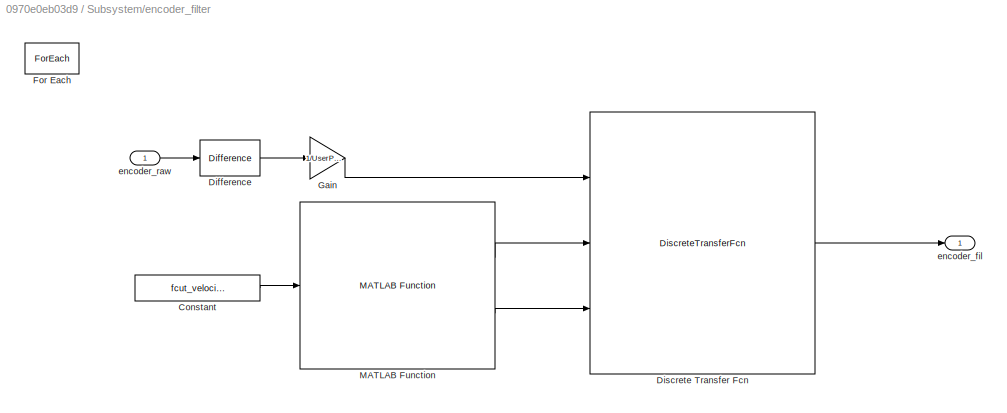
BLOCK [SubSystem] Subsystem/encoder_filter
  Ports = [1, 1]
  RequestExecContextInheritance = off
  TreatAsAtomicUnit = on
  Variant = off
BLOCK [Constant] Subsystem/encoder_filter/Constant
  Value = fcut_velocity_joint
BLOCK [Reference] Subsystem/encoder_filter/Difference  REF=simulink/Discrete/Difference
  Ports = [1, 1]
  SourceBlock = simulink/Discrete/Difference
  SourceProductBaseCode = SL
  SourceProductName = Simulink
  SourceType = Difference
BLOCK [DiscreteTransferFcn] Subsystem/encoder_filter/Discrete Transfer Fcn
  DenominatorSource = Input port
  InputPortMap = u0,p1,p3
  NumeratorSource = Input port
  Ports = [3, 1]
  SampleTime = UserParams.SampleTime
  a0EqualsOne = on
BLOCK [ForEach] Subsystem/encoder_filter/For Each
  DisableCoverage = on
  IndexMode = One-based
  Ports = []
BLOCK [Gain] Subsystem/encoder_filter/Gain
  Gain = 1/UserParams.SampleTime
  OutDataTypeStr = Inherit: Inherit via internal rule
  ParamDataTypeStr = Inherit: Inherit via internal rule
  SaturateOnIntegerOverflow = off
BLOCK [Reference] Subsystem/encoder_filter/MATLAB Function  REF=func_block_library/MATLAB Function  (lib defined in slx_97ed7f0c4b63)
  Ports = [1, 2]
  SourceBlock = func_block_library/MATLAB Function
  SourceType = SubSystem
BLOCK [Outport] Subsystem/encoder_filter/encoder_fil
  ConcatenationDimension = 1
  IconDisplay = Port number
BLOCK [Inport] Subsystem/encoder_filter/encoder_raw
  IconDisplay = Port number
  Partition = on
  PartitionDimension = 1
  PartitionOffset = 0
  PartitionWidth = 1
BLOCK [Outport] Subsystem/inputs 
  IconDisplay = Port number
BLOCK [Inport] Subsystem/outputs
  IconDisplay = Port number
  OutDataTypeStr = Bus: CassieOutBus
LINE Subsystem/Constant1:1 -> Subsystem/MATLAB System1:4
LINE Subsystem/Constant:1 -> Subsystem/MATLAB System1:3
LINE Subsystem/Digital Clock:1 -> Subsystem/MATLAB System1:1
LINE Subsystem/Log Data/Data Bus Selector:1 -> Subsystem/Log Data/Vector Concatenate:1
LINE Subsystem/Log Data/Data Bus Selector:10 -> Subsystem/Log Data/Vector Concatenate:10
LINE Subsystem/Log Data/Data Bus Selector:11 -> Subsystem/Log Data/Vector Concatenate:11
LINE Subsystem/Log Data/Data Bus Selector:12 -> Subsystem/Log Data/Vector Concatenate:12
LINE Subsystem/Log Data/Data Bus Selector:13 -> Subsystem/Log Data/Vector Concatenate:13
LINE Subsystem/Log Data/Data Bus Selector:14 -> Subsystem/Log Data/Vector Concatenate:14
LINE Subsystem/Log Data/Data Bus Selector:15 -> Subsystem/Log Data/Vector Concatenate:15
LINE Subsystem/Log Data/Data Bus Selector:16 -> Subsystem/Log Data/Vector Concatenate:16
LINE Subsystem/Log Data/Data Bus Selector:17 -> Subsystem/Log Data/Vector Concatenate:17
LINE Subsystem/Log Data/Data Bus Selector:2 -> Subsystem/Log Data/Vector Concatenate:2
LINE Subsystem/Log Data/Data Bus Selector:3 -> Subsystem/Log Data/Vector Concatenate:3
LINE Subsystem/Log Data/Data Bus Selector:4 -> Subsystem/Log Data/Vector Concatenate:4
LINE Subsystem/Log Data/Data Bus Selector:5 -> Subsystem/Log Data/Vector Concatenate:5
LINE Subsystem/Log Data/Data Bus Selector:6 -> Subsystem/Log Data/Vector Concatenate:6
LINE Subsystem/Log Data/Data Bus Selector:7 -> Subsystem/Log Data/Vector Concatenate:7
LINE Subsystem/Log Data/Data Bus Selector:8 -> Subsystem/Log Data/Vector Concatenate:8
LINE Subsystem/Log Data/Data Bus Selector:9 -> Subsystem/Log Data/Vector Concatenate:9
LINE Subsystem/Log Data/In1:1 -> Subsystem/Log Data/Data Bus Selector:1
LINE Subsystem/Log Data/Vector Concatenate:1 -> Subsystem/Log Data/Scope :1
LINE Subsystem/MATLAB System1:1 -> Subsystem/inputs :1
NET Subsystem/MATLAB System1:2 -> Subsystem/Log Data:1, Subsystem/Subsystem:1, Subsystem/To Workspace:1
LINE Subsystem/MATLAB System:1 -> Subsystem/encoder_filter:1
LINE Subsystem/Subsystem/Bus Selector10:1 -> Subsystem/Subsystem/Gain18:1
LINE Subsystem/Subsystem/Bus Selector10:2 -> Subsystem/Subsystem/Gain19:1
NET Subsystem/Subsystem/Bus Selector11:1 -> Subsystem/Subsystem/Mux10:3, Subsystem/Subsystem/Mux11:3, Subsystem/Subsystem/Mux12:3, Subsystem/Subsystem/Mux13:3, Subsystem/Subsystem/Mux14:3, Subsystem/Subsystem/Mux15:3, Subsystem/Subsystem/Mux16:3, Subsystem/Subsystem/Mux17:3, Subsystem/Subsystem/Mux18:3, Subsystem/Subsystem/Mux19:3, Subsystem/Subsystem/Mux30:3, Subsystem/Subsystem/Mux31:3, Subsystem/Subsystem/Mux32:3, Subsystem/Subsystem/Mux33:3, Subsystem/Subsystem/Mux34:3, Subsystem/Subsystem/Mux35:3, Subsystem/Subsystem/Mux36:3, Subsystem/Subsystem/Mux37:3, Subsystem/Subsystem/Mux38:3, Subsystem/Subsystem/Mux39:3
NET Subsystem/Subsystem/Bus Selector12:1 -> Subsystem/Subsystem/Selector140:1, Subsystem/Subsystem/Selector141:1, Subsystem/Subsystem/Selector142:1, Subsystem/Subsystem/Selector143:1, Subsystem/Subsystem/Selector144:1
LINE Subsystem/Subsystem/Bus Selector13:1 -> Subsystem/Subsystem/Reshape105:1
LINE Subsystem/Subsystem/Bus Selector13:2 -> Subsystem/Subsystem/Reshape106:1
LINE Subsystem/Subsystem/Bus Selector13:3 -> Subsystem/Subsystem/Reshape107:1
LINE Subsystem/Subsystem/Bus Selector13:4 -> Subsystem/Subsystem/Reshape108:1
LINE Subsystem/Subsystem/Bus Selector13:5 -> Subsystem/Subsystem/Reshape109:1
LINE Subsystem/Subsystem/Bus Selector13:6 -> Subsystem/Subsystem/Reshape110:1
LINE Subsystem/Subsystem/Bus Selector13:7 -> Subsystem/Subsystem/Reshape111:1
LINE Subsystem/Subsystem/Bus Selector1:1 -> Subsystem/Subsystem/Gain2:1
LINE Subsystem/Subsystem/Bus Selector1:2 -> Subsystem/Subsystem/Gain3:1
LINE Subsystem/Subsystem/Bus Selector2:1 -> Subsystem/Subsystem/Gain4:1
LINE Subsystem/Subsystem/Bus Selector2:2 -> Subsystem/Subsystem/Gain5:1
LINE Subsystem/Subsystem/Bus Selector3:1 -> Subsystem/Subsystem/Gain6:1
LINE Subsystem/Subsystem/Bus Selector3:2 -> Subsystem/Subsystem/Gain7:1
LINE Subsystem/Subsystem/Bus Selector4:1 -> Subsystem/Subsystem/Gain8:1
LINE Subsystem/Subsystem/Bus Selector4:2 -> Subsystem/Subsystem/Gain9:1
LINE Subsystem/Subsystem/Bus Selector5:1 -> Subsystem/Subsystem/Gain10:1
LINE Subsystem/Subsystem/Bus Selector5:2 -> Subsystem/Subsystem/Gain11:1
LINE Subsystem/Subsystem/Bus Selector6:1 -> Subsystem/Subsystem/Gain12:1
LINE Subsystem/Subsystem/Bus Selector6:2 -> Subsystem/Subsystem/Gain13:1
NET Subsystem/Subsystem/Bus Selector7:1 -> Subsystem/Subsystem/Mux1:3, Subsystem/Subsystem/Mux20:3, Subsystem/Subsystem/Mux21:3, Subsystem/Subsystem/Mux22:3, Subsystem/Subsystem/Mux23:3, Subsystem/Subsystem/Mux24:3, Subsystem/Subsystem/Mux25:3, Subsystem/Subsystem/Mux26:3, Subsystem/Subsystem/Mux27:3, Subsystem/Subsystem/Mux28:3, Subsystem/Subsystem/Mux29:3, Subsystem/Subsystem/Mux2:3, Subsystem/Subsystem/Mux3:3, Subsystem/Subsystem/Mux4:3, Subsystem/Subsystem/Mux5:3, Subsystem/Subsystem/Mux6:3, Subsystem/Subsystem/Mux7:3, Subsystem/Subsystem/Mux8:3, Subsystem/Subsystem/Mux9:3, Subsystem/Subsystem/Mux:3
LINE Subsystem/Subsystem/Bus Selector8:1 -> Subsystem/Subsystem/Gain14:1
LINE Subsystem/Subsystem/Bus Selector8:2 -> Subsystem/Subsystem/Gain15:1
LINE Subsystem/Subsystem/Bus Selector9:1 -> Subsystem/Subsystem/Gain16:1
LINE Subsystem/Subsystem/Bus Selector9:2 -> Subsystem/Subsystem/Gain17:1
LINE Subsystem/Subsystem/Bus Selector:1 -> Subsystem/Subsystem/Gain:1
LINE Subsystem/Subsystem/Bus Selector:2 -> Subsystem/Subsystem/Gain1:1
NET Subsystem/Subsystem/Gain10:1 -> Subsystem/Subsystem/Selector50:1, Subsystem/Subsystem/Selector51:1, Subsystem/Subsystem/Selector52:1, Subsystem/Subsystem/Selector53:1, Subsystem/Subsystem/Selector54:1
NET Subsystem/Subsystem/Gain11:1 -> Subsystem/Subsystem/Selector55:1, Subsystem/Subsystem/Selector56:1, Subsystem/Subsystem/Selector57:1, Subsystem/Subsystem/Selector58:1, Subsystem/Subsystem/Selector59:1
NET Subsystem/Subsystem/Gain12:1 -> Subsystem/Subsystem/Selector60:1, Subsystem/Subsystem/Selector61:1, Subsystem/Subsystem/Selector62:1, Subsystem/Subsystem/Selector63:1, Subsystem/Subsystem/Selector64:1, Subsystem/Subsystem/Selector65:1, Subsystem/Subsystem/Selector66:1, Subsystem/Subsystem/Selector67:1, Subsystem/Subsystem/Selector68:1, Subsystem/Subsystem/Selector69:1
NET Subsystem/Subsystem/Gain13:1 -> Subsystem/Subsystem/Selector70:1, Subsystem/Subsystem/Selector71:1, Subsystem/Subsystem/Selector72:1, Subsystem/Subsystem/Selector73:1, Subsystem/Subsystem/Selector74:1, Subsystem/Subsystem/Selector75:1, Subsystem/Subsystem/Selector76:1, Subsystem/Subsystem/Selector77:1, Subsystem/Subsystem/Selector78:1, Subsystem/Subsystem/Selector79:1
NET Subsystem/Subsystem/Gain14:1 -> Subsystem/Subsystem/Selector80:1, Subsystem/Subsystem/Selector81:1, Subsystem/Subsystem/Selector82:1, Subsystem/Subsystem/Selector83:1, Subsystem/Subsystem/Selector84:1, Subsystem/Subsystem/Selector85:1, Subsystem/Subsystem/Selector86:1, Subsystem/Subsystem/Selector87:1, Subsystem/Subsystem/Selector88:1, Subsystem/Subsystem/Selector89:1
NET Subsystem/Subsystem/Gain15:1 -> Subsystem/Subsystem/Selector90:1, Subsystem/Subsystem/Selector91:1, Subsystem/Subsystem/Selector92:1, Subsystem/Subsystem/Selector93:1, Subsystem/Subsystem/Selector94:1, Subsystem/Subsystem/Selector95:1, Subsystem/Subsystem/Selector96:1, Subsystem/Subsystem/Selector97:1, Subsystem/Subsystem/Selector98:1, Subsystem/Subsystem/Selector99:1
NET Subsystem/Subsystem/Gain16:1 -> Subsystem/Subsystem/Selector100:1, Subsystem/Subsystem/Selector101:1, Subsystem/Subsystem/Selector102:1, Subsystem/Subsystem/Selector103:1, Subsystem/Subsystem/Selector104:1, Subsystem/Subsystem/Selector105:1, Subsystem/Subsystem/Selector106:1, Subsystem/Subsystem/Selector107:1, Subsystem/Subsystem/Selector108:1, Subsystem/Subsystem/Selector109:1
NET Subsystem/Subsystem/Gain17:1 -> Subsystem/Subsystem/Selector110:1, Subsystem/Subsystem/Selector111:1, Subsystem/Subsystem/Selector112:1, Subsystem/Subsystem/Selector113:1, Subsystem/Subsystem/Selector114:1, Subsystem/Subsystem/Selector115:1, Subsystem/Subsystem/Selector116:1, Subsystem/Subsystem/Selector117:1, Subsystem/Subsystem/Selector118:1, Subsystem/Subsystem/Selector119:1
NET Subsystem/Subsystem/Gain18:1 -> Subsystem/Subsystem/Selector120:1, Subsystem/Subsystem/Selector121:1, Subsystem/Subsystem/Selector122:1, Subsystem/Subsystem/Selector123:1, Subsystem/Subsystem/Selector124:1, Subsystem/Subsystem/Selector125:1, Subsystem/Subsystem/Selector126:1, Subsystem/Subsystem/Selector127:1, Subsystem/Subsystem/Selector128:1, Subsystem/Subsystem/Selector129:1
NET Subsystem/Subsystem/Gain19:1 -> Subsystem/Subsystem/Selector130:1, Subsystem/Subsystem/Selector131:1, Subsystem/Subsystem/Selector132:1, Subsystem/Subsystem/Selector133:1, Subsystem/Subsystem/Selector134:1, Subsystem/Subsystem/Selector135:1, Subsystem/Subsystem/Selector136:1, Subsystem/Subsystem/Selector137:1, Subsystem/Subsystem/Selector138:1, Subsystem/Subsystem/Selector139:1
NET Subsystem/Subsystem/Gain1:1 -> Subsystem/Subsystem/Selector5:1, Subsystem/Subsystem/Selector6:1, Subsystem/Subsystem/Selector7:1, Subsystem/Subsystem/Selector8:1, Subsystem/Subsystem/Selector9:1
NET Subsystem/Subsystem/Gain2:1 -> Subsystem/Subsystem/Selector10:1, Subsystem/Subsystem/Selector11:1, Subsystem/Subsystem/Selector12:1, Subsystem/Subsystem/Selector13:1, Subsystem/Subsystem/Selector14:1
NET Subsystem/Subsystem/Gain3:1 -> Subsystem/Subsystem/Selector15:1, Subsystem/Subsystem/Selector16:1, Subsystem/Subsystem/Selector17:1, Subsystem/Subsystem/Selector18:1, Subsystem/Subsystem/Selector19:1
NET Subsystem/Subsystem/Gain4:1 -> Subsystem/Subsystem/Selector20:1, Subsystem/Subsystem/Selector21:1, Subsystem/Subsystem/Selector22:1, Subsystem/Subsystem/Selector23:1, Subsystem/Subsystem/Selector24:1
NET Subsystem/Subsystem/Gain5:1 -> Subsystem/Subsystem/Selector25:1, Subsystem/Subsystem/Selector26:1, Subsystem/Subsystem/Selector27:1, Subsystem/Subsystem/Selector28:1, Subsystem/Subsystem/Selector29:1
NET Subsystem/Subsystem/Gain6:1 -> Subsystem/Subsystem/Selector30:1, Subsystem/Subsystem/Selector31:1, Subsystem/Subsystem/Selector32:1, Subsystem/Subsystem/Selector33:1, Subsystem/Subsystem/Selector34:1
NET Subsystem/Subsystem/Gain7:1 -> Subsystem/Subsystem/Selector35:1, Subsystem/Subsystem/Selector36:1, Subsystem/Subsystem/Selector37:1, Subsystem/Subsystem/Selector38:1, Subsystem/Subsystem/Selector39:1
NET Subsystem/Subsystem/Gain8:1 -> Subsystem/Subsystem/Selector40:1, Subsystem/Subsystem/Selector41:1, Subsystem/Subsystem/Selector42:1, Subsystem/Subsystem/Selector43:1, Subsystem/Subsystem/Selector44:1
NET Subsystem/Subsystem/Gain9:1 -> Subsystem/Subsystem/Selector45:1, Subsystem/Subsystem/Selector46:1, Subsystem/Subsystem/Selector47:1, Subsystem/Subsystem/Selector48:1, Subsystem/Subsystem/Selector49:1
NET Subsystem/Subsystem/Gain:1 -> Subsystem/Subsystem/Selector1:1, Subsystem/Subsystem/Selector2:1, Subsystem/Subsystem/Selector3:1, Subsystem/Subsystem/Selector4:1, Subsystem/Subsystem/Selector:1
NET Subsystem/Subsystem/In1:1 -> Subsystem/Subsystem/Bus Selector10:1, Subsystem/Subsystem/Bus Selector11:1, Subsystem/Subsystem/Bus Selector12:1, Subsystem/Subsystem/Bus Selector13:1, Subsystem/Subsystem/Bus Selector1:1, Subsystem/Subsystem/Bus Selector2:1, Subsystem/Subsystem/Bus Selector3:1, Subsystem/Subsystem/Bus Selector4:1, Subsystem/Subsystem/Bus Selector5:1, Subsystem/Subsystem/Bus Selector6:1, Subsystem/Subsystem/Bus Selector7:1, Subsystem/Subsystem/Bus Selector8:1, Subsystem/Subsystem/Bus Selector9:1, Subsystem/Subsystem/Bus Selector:1
LINE Subsystem/Subsystem/Mux10:1 -> Subsystem/Subsystem/Reshape70:1
LINE Subsystem/Subsystem/Mux11:1 -> Subsystem/Subsystem/Reshape71:1
LINE Subsystem/Subsystem/Mux12:1 -> Subsystem/Subsystem/Reshape72:1
LINE Subsystem/Subsystem/Mux13:1 -> Subsystem/Subsystem/Reshape73:1
LINE Subsystem/Subsystem/Mux14:1 -> Subsystem/Subsystem/Reshape74:1
LINE Subsystem/Subsystem/Mux15:1 -> Subsystem/Subsystem/Reshape75:1
LINE Subsystem/Subsystem/Mux16:1 -> Subsystem/Subsystem/Reshape76:1
LINE Subsystem/Subsystem/Mux17:1 -> Subsystem/Subsystem/Reshape77:1
LINE Subsystem/Subsystem/Mux18:1 -> Subsystem/Subsystem/Reshape78:1
LINE Subsystem/Subsystem/Mux19:1 -> Subsystem/Subsystem/Reshape79:1
LINE Subsystem/Subsystem/Mux1:1 -> Subsystem/Subsystem/Reshape61:1
LINE Subsystem/Subsystem/Mux20:1 -> Subsystem/Subsystem/Reshape80:1
LINE Subsystem/Subsystem/Mux21:1 -> Subsystem/Subsystem/Reshape81:1
LINE Subsystem/Subsystem/Mux22:1 -> Subsystem/Subsystem/Reshape82:1
LINE Subsystem/Subsystem/Mux23:1 -> Subsystem/Subsystem/Reshape83:1
LINE Subsystem/Subsystem/Mux24:1 -> Subsystem/Subsystem/Reshape84:1
LINE Subsystem/Subsystem/Mux25:1 -> Subsystem/Subsystem/Reshape85:1
LINE Subsystem/Subsystem/Mux26:1 -> Subsystem/Subsystem/Reshape86:1
LINE Subsystem/Subsystem/Mux27:1 -> Subsystem/Subsystem/Reshape87:1
LINE Subsystem/Subsystem/Mux28:1 -> Subsystem/Subsystem/Reshape88:1
LINE Subsystem/Subsystem/Mux29:1 -> Subsystem/Subsystem/Reshape89:1
LINE Subsystem/Subsystem/Mux2:1 -> Subsystem/Subsystem/Reshape62:1
LINE Subsystem/Subsystem/Mux30:1 -> Subsystem/Subsystem/Reshape90:1
LINE Subsystem/Subsystem/Mux31:1 -> Subsystem/Subsystem/Reshape91:1
LINE Subsystem/Subsystem/Mux32:1 -> Subsystem/Subsystem/Reshape92:1
LINE Subsystem/Subsystem/Mux33:1 -> Subsystem/Subsystem/Reshape93:1
LINE Subsystem/Subsystem/Mux34:1 -> Subsystem/Subsystem/Reshape94:1
LINE Subsystem/Subsystem/Mux35:1 -> Subsystem/Subsystem/Reshape95:1
LINE Subsystem/Subsystem/Mux36:1 -> Subsystem/Subsystem/Reshape96:1
LINE Subsystem/Subsystem/Mux37:1 -> Subsystem/Subsystem/Reshape97:1
LINE Subsystem/Subsystem/Mux38:1 -> Subsystem/Subsystem/Reshape98:1
LINE Subsystem/Subsystem/Mux39:1 -> Subsystem/Subsystem/Reshape99:1
LINE Subsystem/Subsystem/Mux3:1 -> Subsystem/Subsystem/Reshape63:1
LINE Subsystem/Subsystem/Mux4:1 -> Subsystem/Subsystem/Reshape64:1
LINE Subsystem/Subsystem/Mux5:1 -> Subsystem/Subsystem/Reshape65:1
LINE Subsystem/Subsystem/Mux6:1 -> Subsystem/Subsystem/Reshape66:1
LINE Subsystem/Subsystem/Mux7:1 -> Subsystem/Subsystem/Reshape67:1
LINE Subsystem/Subsystem/Mux8:1 -> Subsystem/Subsystem/Reshape68:1
LINE Subsystem/Subsystem/Mux9:1 -> Subsystem/Subsystem/Reshape69:1
LINE Subsystem/Subsystem/Mux:1 -> Subsystem/Subsystem/Reshape60:1
NET Subsystem/Subsystem/Reshape100:1 -> Subsystem/Subsystem/Scope 100:1, Subsystem/Subsystem/Scope100:1
NET Subsystem/Subsystem/Reshape101:1 -> Subsystem/Subsystem/Scope 101:1, Subsystem/Subsystem/Scope101:1
NET Subsystem/Subsystem/Reshape102:1 -> Subsystem/Subsystem/Scope 102:1, Subsystem/Subsystem/Scope102:1
NET Subsystem/Subsystem/Reshape103:1 -> Subsystem/Subsystem/Scope 103:1, Subsystem/Subsystem/Scope103:1
NET Subsystem/Subsystem/Reshape104:1 -> Subsystem/Subsystem/Scope 104:1, Subsystem/Subsystem/Scope104:1
NET Subsystem/Subsystem/Reshape105:1 -> Subsystem/Subsystem/Scope 105:1, Subsystem/Subsystem/Scope105:1
NET Subsystem/Subsystem/Reshape106:1 -> Subsystem/Subsystem/Scope 106:1, Subsystem/Subsystem/Scope106:1
NET Subsystem/Subsystem/Reshape107:1 -> Subsystem/Subsystem/Scope 107:1, Subsystem/Subsystem/Scope107:1
NET Subsystem/Subsystem/Reshape108:1 -> Subsystem/Subsystem/Scope 108:1, Subsystem/Subsystem/Scope108:1
NET Subsystem/Subsystem/Reshape109:1 -> Subsystem/Subsystem/Scope 109:1, Subsystem/Subsystem/Scope109:1
NET Subsystem/Subsystem/Reshape10:1 -> Subsystem/Subsystem/Scope 10:1, Subsystem/Subsystem/Scope10:1
NET Subsystem/Subsystem/Reshape110:1 -> Subsystem/Subsystem/Scope 110:1, Subsystem/Subsystem/Scope110:1
NET Subsystem/Subsystem/Reshape111:1 -> Subsystem/Subsystem/Scope 111:1, Subsystem/Subsystem/Scope111:1
NET Subsystem/Subsystem/Reshape11:1 -> Subsystem/Subsystem/Scope 11:1, Subsystem/Subsystem/Scope11:1
NET Subsystem/Subsystem/Reshape12:1 -> Subsystem/Subsystem/Scope 12:1, Subsystem/Subsystem/Scope12:1
NET Subsystem/Subsystem/Reshape13:1 -> Subsystem/Subsystem/Scope 13:1, Subsystem/Subsystem/Scope13:1
NET Subsystem/Subsystem/Reshape14:1 -> Subsystem/Subsystem/Scope 14:1, Subsystem/Subsystem/Scope14:1
NET Subsystem/Subsystem/Reshape15:1 -> Subsystem/Subsystem/Scope 15:1, Subsystem/Subsystem/Scope15:1
NET Subsystem/Subsystem/Reshape16:1 -> Subsystem/Subsystem/Scope 16:1, Subsystem/Subsystem/Scope16:1
NET Subsystem/Subsystem/Reshape17:1 -> Subsystem/Subsystem/Scope 17:1, Subsystem/Subsystem/Scope17:1
NET Subsystem/Subsystem/Reshape18:1 -> Subsystem/Subsystem/Scope 18:1, Subsystem/Subsystem/Scope18:1
NET Subsystem/Subsystem/Reshape19:1 -> Subsystem/Subsystem/Scope 19:1, Subsystem/Subsystem/Scope19:1
NET Subsystem/Subsystem/Reshape1:1 -> Subsystem/Subsystem/Scope 1:1, Subsystem/Subsystem/Scope1:1
NET Subsystem/Subsystem/Reshape20:1 -> Subsystem/Subsystem/Scope 20:1, Subsystem/Subsystem/Scope20:1
NET Subsystem/Subsystem/Reshape21:1 -> Subsystem/Subsystem/Scope 21:1, Subsystem/Subsystem/Scope21:1
NET Subsystem/Subsystem/Reshape22:1 -> Subsystem/Subsystem/Scope 22:1, Subsystem/Subsystem/Scope22:1
NET Subsystem/Subsystem/Reshape23:1 -> Subsystem/Subsystem/Scope 23:1, Subsystem/Subsystem/Scope23:1
NET Subsystem/Subsystem/Reshape24:1 -> Subsystem/Subsystem/Scope 24:1, Subsystem/Subsystem/Scope24:1
NET Subsystem/Subsystem/Reshape25:1 -> Subsystem/Subsystem/Scope 25:1, Subsystem/Subsystem/Scope25:1
NET Subsystem/Subsystem/Reshape26:1 -> Subsystem/Subsystem/Scope 26:1, Subsystem/Subsystem/Scope26:1
NET Subsystem/Subsystem/Reshape27:1 -> Subsystem/Subsystem/Scope 27:1, Subsystem/Subsystem/Scope27:1
NET Subsystem/Subsystem/Reshape28:1 -> Subsystem/Subsystem/Scope 28:1, Subsystem/Subsystem/Scope28:1
NET Subsystem/Subsystem/Reshape29:1 -> Subsystem/Subsystem/Scope 29:1, Subsystem/Subsystem/Scope29:1
NET Subsystem/Subsystem/Reshape2:1 -> Subsystem/Subsystem/Scope 2:1, Subsystem/Subsystem/Scope2:1
NET Subsystem/Subsystem/Reshape30:1 -> Subsystem/Subsystem/Scope 30:1, Subsystem/Subsystem/Scope30:1
NET Subsystem/Subsystem/Reshape31:1 -> Subsystem/Subsystem/Scope 31:1, Subsystem/Subsystem/Scope31:1
NET Subsystem/Subsystem/Reshape32:1 -> Subsystem/Subsystem/Scope 32:1, Subsystem/Subsystem/Scope32:1
NET Subsystem/Subsystem/Reshape33:1 -> Subsystem/Subsystem/Scope 33:1, Subsystem/Subsystem/Scope33:1
NET Subsystem/Subsystem/Reshape34:1 -> Subsystem/Subsystem/Scope 34:1, Subsystem/Subsystem/Scope34:1
NET Subsystem/Subsystem/Reshape35:1 -> Subsystem/Subsystem/Scope 35:1, Subsystem/Subsystem/Scope35:1
NET Subsystem/Subsystem/Reshape36:1 -> Subsystem/Subsystem/Scope 36:1, Subsystem/Subsystem/Scope36:1
NET Subsystem/Subsystem/Reshape37:1 -> Subsystem/Subsystem/Scope 37:1, Subsystem/Subsystem/Scope37:1
NET Subsystem/Subsystem/Reshape38:1 -> Subsystem/Subsystem/Scope 38:1, Subsystem/Subsystem/Scope38:1
NET Subsystem/Subsystem/Reshape39:1 -> Subsystem/Subsystem/Scope 39:1, Subsystem/Subsystem/Scope39:1
NET Subsystem/Subsystem/Reshape3:1 -> Subsystem/Subsystem/Scope 3:1, Subsystem/Subsystem/Scope3:1
NET Subsystem/Subsystem/Reshape40:1 -> Subsystem/Subsystem/Scope 40:1, Subsystem/Subsystem/Scope40:1
NET Subsystem/Subsystem/Reshape41:1 -> Subsystem/Subsystem/Scope 41:1, Subsystem/Subsystem/Scope41:1
NET Subsystem/Subsystem/Reshape42:1 -> Subsystem/Subsystem/Scope 42:1, Subsystem/Subsystem/Scope42:1
NET Subsystem/Subsystem/Reshape43:1 -> Subsystem/Subsystem/Scope 43:1, Subsystem/Subsystem/Scope43:1
NET Subsystem/Subsystem/Reshape44:1 -> Subsystem/Subsystem/Scope 44:1, Subsystem/Subsystem/Scope44:1
NET Subsystem/Subsystem/Reshape45:1 -> Subsystem/Subsystem/Scope 45:1, Subsystem/Subsystem/Scope45:1
NET Subsystem/Subsystem/Reshape46:1 -> Subsystem/Subsystem/Scope 46:1, Subsystem/Subsystem/Scope46:1
NET Subsystem/Subsystem/Reshape47:1 -> Subsystem/Subsystem/Scope 47:1, Subsystem/Subsystem/Scope47:1
NET Subsystem/Subsystem/Reshape48:1 -> Subsystem/Subsystem/Scope 48:1, Subsystem/Subsystem/Scope48:1
NET Subsystem/Subsystem/Reshape49:1 -> Subsystem/Subsystem/Scope 49:1, Subsystem/Subsystem/Scope49:1
NET Subsystem/Subsystem/Reshape4:1 -> Subsystem/Subsystem/Scope 4:1, Subsystem/Subsystem/Scope4:1
NET Subsystem/Subsystem/Reshape50:1 -> Subsystem/Subsystem/Scope 50:1, Subsystem/Subsystem/Scope50:1
NET Subsystem/Subsystem/Reshape51:1 -> Subsystem/Subsystem/Scope 51:1, Subsystem/Subsystem/Scope51:1
NET Subsystem/Subsystem/Reshape52:1 -> Subsystem/Subsystem/Scope 52:1, Subsystem/Subsystem/Scope52:1
NET Subsystem/Subsystem/Reshape53:1 -> Subsystem/Subsystem/Scope 53:1, Subsystem/Subsystem/Scope53:1
NET Subsystem/Subsystem/Reshape54:1 -> Subsystem/Subsystem/Scope 54:1, Subsystem/Subsystem/Scope54:1
NET Subsystem/Subsystem/Reshape55:1 -> Subsystem/Subsystem/Scope 55:1, Subsystem/Subsystem/Scope55:1
NET Subsystem/Subsystem/Reshape56:1 -> Subsystem/Subsystem/Scope 56:1, Subsystem/Subsystem/Scope56:1
NET Subsystem/Subsystem/Reshape57:1 -> Subsystem/Subsystem/Scope 57:1, Subsystem/Subsystem/Scope57:1
NET Subsystem/Subsystem/Reshape58:1 -> Subsystem/Subsystem/Scope 58:1, Subsystem/Subsystem/Scope58:1
NET Subsystem/Subsystem/Reshape59:1 -> Subsystem/Subsystem/Scope 59:1, Subsystem/Subsystem/Scope59:1
NET Subsystem/Subsystem/Reshape5:1 -> Subsystem/Subsystem/Scope 5:1, Subsystem/Subsystem/Scope5:1
NET Subsystem/Subsystem/Reshape60:1 -> Subsystem/Subsystem/Scope 60:1, Subsystem/Subsystem/Scope60:1
NET Subsystem/Subsystem/Reshape61:1 -> Subsystem/Subsystem/Scope 61:1, Subsystem/Subsystem/Scope61:1
NET Subsystem/Subsystem/Reshape62:1 -> Subsystem/Subsystem/Scope 62:1, Subsystem/Subsystem/Scope62:1
NET Subsystem/Subsystem/Reshape63:1 -> Subsystem/Subsystem/Scope 63:1, Subsystem/Subsystem/Scope63:1
NET Subsystem/Subsystem/Reshape64:1 -> Subsystem/Subsystem/Scope 64:1, Subsystem/Subsystem/Scope64:1
NET Subsystem/Subsystem/Reshape65:1 -> Subsystem/Subsystem/Scope 65:1, Subsystem/Subsystem/Scope65:1
NET Subsystem/Subsystem/Reshape66:1 -> Subsystem/Subsystem/Scope 66:1, Subsystem/Subsystem/Scope66:1
NET Subsystem/Subsystem/Reshape67:1 -> Subsystem/Subsystem/Scope 67:1, Subsystem/Subsystem/Scope67:1
NET Subsystem/Subsystem/Reshape68:1 -> Subsystem/Subsystem/Scope 68:1, Subsystem/Subsystem/Scope68:1
NET Subsystem/Subsystem/Reshape69:1 -> Subsystem/Subsystem/Scope 69:1, Subsystem/Subsystem/Scope69:1
NET Subsystem/Subsystem/Reshape6:1 -> Subsystem/Subsystem/Scope 6:1, Subsystem/Subsystem/Scope6:1
NET Subsystem/Subsystem/Reshape70:1 -> Subsystem/Subsystem/Scope 70:1, Subsystem/Subsystem/Scope70:1
NET Subsystem/Subsystem/Reshape71:1 -> Subsystem/Subsystem/Scope 71:1, Subsystem/Subsystem/Scope71:1
NET Subsystem/Subsystem/Reshape72:1 -> Subsystem/Subsystem/Scope 72:1, Subsystem/Subsystem/Scope72:1
NET Subsystem/Subsystem/Reshape73:1 -> Subsystem/Subsystem/Scope 73:1, Subsystem/Subsystem/Scope73:1
NET Subsystem/Subsystem/Reshape74:1 -> Subsystem/Subsystem/Scope 74:1, Subsystem/Subsystem/Scope74:1
NET Subsystem/Subsystem/Reshape75:1 -> Subsystem/Subsystem/Scope 75:1, Subsystem/Subsystem/Scope75:1
NET Subsystem/Subsystem/Reshape76:1 -> Subsystem/Subsystem/Scope 76:1, Subsystem/Subsystem/Scope76:1
NET Subsystem/Subsystem/Reshape77:1 -> Subsystem/Subsystem/Scope 77:1, Subsystem/Subsystem/Scope77:1
NET Subsystem/Subsystem/Reshape78:1 -> Subsystem/Subsystem/Scope 78:1, Subsystem/Subsystem/Scope78:1
NET Subsystem/Subsystem/Reshape79:1 -> Subsystem/Subsystem/Scope 79:1, Subsystem/Subsystem/Scope79:1
NET Subsystem/Subsystem/Reshape7:1 -> Subsystem/Subsystem/Scope 7:1, Subsystem/Subsystem/Scope7:1
NET Subsystem/Subsystem/Reshape80:1 -> Subsystem/Subsystem/Scope 80:1, Subsystem/Subsystem/Scope80:1
NET Subsystem/Subsystem/Reshape81:1 -> Subsystem/Subsystem/Scope 81:1, Subsystem/Subsystem/Scope81:1
NET Subsystem/Subsystem/Reshape82:1 -> Subsystem/Subsystem/Scope 82:1, Subsystem/Subsystem/Scope82:1
NET Subsystem/Subsystem/Reshape83:1 -> Subsystem/Subsystem/Scope 83:1, Subsystem/Subsystem/Scope83:1
NET Subsystem/Subsystem/Reshape84:1 -> Subsystem/Subsystem/Scope 84:1, Subsystem/Subsystem/Scope84:1
NET Subsystem/Subsystem/Reshape85:1 -> Subsystem/Subsystem/Scope 85:1, Subsystem/Subsystem/Scope85:1
NET Subsystem/Subsystem/Reshape86:1 -> Subsystem/Subsystem/Scope 86:1, Subsystem/Subsystem/Scope86:1
NET Subsystem/Subsystem/Reshape87:1 -> Subsystem/Subsystem/Scope 87:1, Subsystem/Subsystem/Scope87:1
NET Subsystem/Subsystem/Reshape88:1 -> Subsystem/Subsystem/Scope 88:1, Subsystem/Subsystem/Scope88:1
NET Subsystem/Subsystem/Reshape89:1 -> Subsystem/Subsystem/Scope 89:1, Subsystem/Subsystem/Scope89:1
NET Subsystem/Subsystem/Reshape8:1 -> Subsystem/Subsystem/Scope 8:1, Subsystem/Subsystem/Scope8:1
NET Subsystem/Subsystem/Reshape90:1 -> Subsystem/Subsystem/Scope 90:1, Subsystem/Subsystem/Scope90:1
NET Subsystem/Subsystem/Reshape91:1 -> Subsystem/Subsystem/Scope 91:1, Subsystem/Subsystem/Scope91:1
NET Subsystem/Subsystem/Reshape92:1 -> Subsystem/Subsystem/Scope 92:1, Subsystem/Subsystem/Scope92:1
NET Subsystem/Subsystem/Reshape93:1 -> Subsystem/Subsystem/Scope 93:1, Subsystem/Subsystem/Scope93:1
NET Subsystem/Subsystem/Reshape94:1 -> Subsystem/Subsystem/Scope 94:1, Subsystem/Subsystem/Scope94:1
NET Subsystem/Subsystem/Reshape95:1 -> Subsystem/Subsystem/Scope 95:1, Subsystem/Subsystem/Scope95:1
NET Subsystem/Subsystem/Reshape96:1 -> Subsystem/Subsystem/Scope 96:1, Subsystem/Subsystem/Scope96:1
NET Subsystem/Subsystem/Reshape97:1 -> Subsystem/Subsystem/Scope 97:1, Subsystem/Subsystem/Scope97:1
NET Subsystem/Subsystem/Reshape98:1 -> Subsystem/Subsystem/Scope 98:1, Subsystem/Subsystem/Scope98:1
NET Subsystem/Subsystem/Reshape99:1 -> Subsystem/Subsystem/Scope 99:1, Subsystem/Subsystem/Scope99:1
NET Subsystem/Subsystem/Reshape9:1 -> Subsystem/Subsystem/Scope 9:1, Subsystem/Subsystem/Scope9:1
NET Subsystem/Subsystem/Reshape:1 -> Subsystem/Subsystem/Scope :1, Subsystem/Subsystem/Scope:1
LINE Subsystem/Subsystem/Selector100:1 -> Subsystem/Subsystem/Mux20:1
LINE Subsystem/Subsystem/Selector101:1 -> Subsystem/Subsystem/Mux21:1
LINE Subsystem/Subsystem/Selector102:1 -> Subsystem/Subsystem/Mux22:1
LINE Subsystem/Subsystem/Selector103:1 -> Subsystem/Subsystem/Mux23:1
LINE Subsystem/Subsystem/Selector104:1 -> Subsystem/Subsystem/Mux24:1
LINE Subsystem/Subsystem/Selector105:1 -> Subsystem/Subsystem/Mux25:1
LINE Subsystem/Subsystem/Selector106:1 -> Subsystem/Subsystem/Mux26:1
LINE Subsystem/Subsystem/Selector107:1 -> Subsystem/Subsystem/Mux27:1
LINE Subsystem/Subsystem/Selector108:1 -> Subsystem/Subsystem/Mux28:1
LINE Subsystem/Subsystem/Selector109:1 -> Subsystem/Subsystem/Mux29:1
LINE Subsystem/Subsystem/Selector10:1 -> Subsystem/Subsystem/Reshape10:1
LINE Subsystem/Subsystem/Selector110:1 -> Subsystem/Subsystem/Mux20:2
LINE Subsystem/Subsystem/Selector111:1 -> Subsystem/Subsystem/Mux21:2
LINE Subsystem/Subsystem/Selector112:1 -> Subsystem/Subsystem/Mux22:2
LINE Subsystem/Subsystem/Selector113:1 -> Subsystem/Subsystem/Mux23:2
LINE Subsystem/Subsystem/Selector114:1 -> Subsystem/Subsystem/Mux24:2
LINE Subsystem/Subsystem/Selector115:1 -> Subsystem/Subsystem/Mux25:2
LINE Subsystem/Subsystem/Selector116:1 -> Subsystem/Subsystem/Mux26:2
LINE Subsystem/Subsystem/Selector117:1 -> Subsystem/Subsystem/Mux27:2
LINE Subsystem/Subsystem/Selector118:1 -> Subsystem/Subsystem/Mux28:2
LINE Subsystem/Subsystem/Selector119:1 -> Subsystem/Subsystem/Mux29:2
LINE Subsystem/Subsystem/Selector11:1 -> Subsystem/Subsystem/Reshape11:1
LINE Subsystem/Subsystem/Selector120:1 -> Subsystem/Subsystem/Mux30:1
LINE Subsystem/Subsystem/Selector121:1 -> Subsystem/Subsystem/Mux31:1
LINE Subsystem/Subsystem/Selector122:1 -> Subsystem/Subsystem/Mux32:1
LINE Subsystem/Subsystem/Selector123:1 -> Subsystem/Subsystem/Mux33:1
LINE Subsystem/Subsystem/Selector124:1 -> Subsystem/Subsystem/Mux34:1
LINE Subsystem/Subsystem/Selector125:1 -> Subsystem/Subsystem/Mux35:1
LINE Subsystem/Subsystem/Selector126:1 -> Subsystem/Subsystem/Mux36:1
LINE Subsystem/Subsystem/Selector127:1 -> Subsystem/Subsystem/Mux37:1
LINE Subsystem/Subsystem/Selector128:1 -> Subsystem/Subsystem/Mux38:1
LINE Subsystem/Subsystem/Selector129:1 -> Subsystem/Subsystem/Mux39:1
LINE Subsystem/Subsystem/Selector12:1 -> Subsystem/Subsystem/Reshape12:1
LINE Subsystem/Subsystem/Selector130:1 -> Subsystem/Subsystem/Mux30:2
LINE Subsystem/Subsystem/Selector131:1 -> Subsystem/Subsystem/Mux31:2
LINE Subsystem/Subsystem/Selector132:1 -> Subsystem/Subsystem/Mux32:2
LINE Subsystem/Subsystem/Selector133:1 -> Subsystem/Subsystem/Mux33:2
LINE Subsystem/Subsystem/Selector134:1 -> Subsystem/Subsystem/Mux34:2
LINE Subsystem/Subsystem/Selector135:1 -> Subsystem/Subsystem/Mux35:2
LINE Subsystem/Subsystem/Selector136:1 -> Subsystem/Subsystem/Mux36:2
LINE Subsystem/Subsystem/Selector137:1 -> Subsystem/Subsystem/Mux37:2
LINE Subsystem/Subsystem/Selector138:1 -> Subsystem/Subsystem/Mux38:2
LINE Subsystem/Subsystem/Selector139:1 -> Subsystem/Subsystem/Mux39:2
LINE Subsystem/Subsystem/Selector13:1 -> Subsystem/Subsystem/Reshape13:1
LINE Subsystem/Subsystem/Selector140:1 -> Subsystem/Subsystem/Reshape100:1
LINE Subsystem/Subsystem/Selector141:1 -> Subsystem/Subsystem/Reshape101:1
LINE Subsystem/Subsystem/Selector142:1 -> Subsystem/Subsystem/Reshape102:1
LINE Subsystem/Subsystem/Selector143:1 -> Subsystem/Subsystem/Reshape103:1
LINE Subsystem/Subsystem/Selector144:1 -> Subsystem/Subsystem/Reshape104:1
LINE Subsystem/Subsystem/Selector14:1 -> Subsystem/Subsystem/Reshape14:1
LINE Subsystem/Subsystem/Selector15:1 -> Subsystem/Subsystem/Reshape15:1
LINE Subsystem/Subsystem/Selector16:1 -> Subsystem/Subsystem/Reshape16:1
LINE Subsystem/Subsystem/Selector17:1 -> Subsystem/Subsystem/Reshape17:1
LINE Subsystem/Subsystem/Selector18:1 -> Subsystem/Subsystem/Reshape18:1
LINE Subsystem/Subsystem/Selector19:1 -> Subsystem/Subsystem/Reshape19:1
LINE Subsystem/Subsystem/Selector1:1 -> Subsystem/Subsystem/Reshape1:1
LINE Subsystem/Subsystem/Selector20:1 -> Subsystem/Subsystem/Reshape20:1
LINE Subsystem/Subsystem/Selector21:1 -> Subsystem/Subsystem/Reshape21:1
LINE Subsystem/Subsystem/Selector22:1 -> Subsystem/Subsystem/Reshape22:1
LINE Subsystem/Subsystem/Selector23:1 -> Subsystem/Subsystem/Reshape23:1
LINE Subsystem/Subsystem/Selector24:1 -> Subsystem/Subsystem/Reshape24:1
LINE Subsystem/Subsystem/Selector25:1 -> Subsystem/Subsystem/Reshape25:1
LINE Subsystem/Subsystem/Selector26:1 -> Subsystem/Subsystem/Reshape26:1
LINE Subsystem/Subsystem/Selector27:1 -> Subsystem/Subsystem/Reshape27:1
LINE Subsystem/Subsystem/Selector28:1 -> Subsystem/Subsystem/Reshape28:1
LINE Subsystem/Subsystem/Selector29:1 -> Subsystem/Subsystem/Reshape29:1
LINE Subsystem/Subsystem/Selector2:1 -> Subsystem/Subsystem/Reshape2:1
LINE Subsystem/Subsystem/Selector30:1 -> Subsystem/Subsystem/Reshape30:1
LINE Subsystem/Subsystem/Selector31:1 -> Subsystem/Subsystem/Reshape31:1
LINE Subsystem/Subsystem/Selector32:1 -> Subsystem/Subsystem/Reshape32:1
LINE Subsystem/Subsystem/Selector33:1 -> Subsystem/Subsystem/Reshape33:1
LINE Subsystem/Subsystem/Selector34:1 -> Subsystem/Subsystem/Reshape34:1
LINE Subsystem/Subsystem/Selector35:1 -> Subsystem/Subsystem/Reshape35:1
LINE Subsystem/Subsystem/Selector36:1 -> Subsystem/Subsystem/Reshape36:1
LINE Subsystem/Subsystem/Selector37:1 -> Subsystem/Subsystem/Reshape37:1
LINE Subsystem/Subsystem/Selector38:1 -> Subsystem/Subsystem/Reshape38:1
LINE Subsystem/Subsystem/Selector39:1 -> Subsystem/Subsystem/Reshape39:1
LINE Subsystem/Subsystem/Selector3:1 -> Subsystem/Subsystem/Reshape3:1
LINE Subsystem/Subsystem/Selector40:1 -> Subsystem/Subsystem/Reshape40:1
LINE Subsystem/Subsystem/Selector41:1 -> Subsystem/Subsystem/Reshape41:1
LINE Subsystem/Subsystem/Selector42:1 -> Subsystem/Subsystem/Reshape42:1
LINE Subsystem/Subsystem/Selector43:1 -> Subsystem/Subsystem/Reshape43:1
LINE Subsystem/Subsystem/Selector44:1 -> Subsystem/Subsystem/Reshape44:1
LINE Subsystem/Subsystem/Selector45:1 -> Subsystem/Subsystem/Reshape45:1
LINE Subsystem/Subsystem/Selector46:1 -> Subsystem/Subsystem/Reshape46:1
LINE Subsystem/Subsystem/Selector47:1 -> Subsystem/Subsystem/Reshape47:1
LINE Subsystem/Subsystem/Selector48:1 -> Subsystem/Subsystem/Reshape48:1
LINE Subsystem/Subsystem/Selector49:1 -> Subsystem/Subsystem/Reshape49:1
LINE Subsystem/Subsystem/Selector4:1 -> Subsystem/Subsystem/Reshape4:1
LINE Subsystem/Subsystem/Selector50:1 -> Subsystem/Subsystem/Reshape50:1
LINE Subsystem/Subsystem/Selector51:1 -> Subsystem/Subsystem/Reshape51:1
LINE Subsystem/Subsystem/Selector52:1 -> Subsystem/Subsystem/Reshape52:1
LINE Subsystem/Subsystem/Selector53:1 -> Subsystem/Subsystem/Reshape53:1
LINE Subsystem/Subsystem/Selector54:1 -> Subsystem/Subsystem/Reshape54:1
LINE Subsystem/Subsystem/Selector55:1 -> Subsystem/Subsystem/Reshape55:1
LINE Subsystem/Subsystem/Selector56:1 -> Subsystem/Subsystem/Reshape56:1
LINE Subsystem/Subsystem/Selector57:1 -> Subsystem/Subsystem/Reshape57:1
LINE Subsystem/Subsystem/Selector58:1 -> Subsystem/Subsystem/Reshape58:1
LINE Subsystem/Subsystem/Selector59:1 -> Subsystem/Subsystem/Reshape59:1
LINE Subsystem/Subsystem/Selector5:1 -> Subsystem/Subsystem/Reshape5:1
LINE Subsystem/Subsystem/Selector60:1 -> Subsystem/Subsystem/Mux:1
LINE Subsystem/Subsystem/Selector61:1 -> Subsystem/Subsystem/Mux1:1
LINE Subsystem/Subsystem/Selector62:1 -> Subsystem/Subsystem/Mux2:1
LINE Subsystem/Subsystem/Selector63:1 -> Subsystem/Subsystem/Mux3:1
LINE Subsystem/Subsystem/Selector64:1 -> Subsystem/Subsystem/Mux4:1
LINE Subsystem/Subsystem/Selector65:1 -> Subsystem/Subsystem/Mux5:1
LINE Subsystem/Subsystem/Selector66:1 -> Subsystem/Subsystem/Mux6:1
LINE Subsystem/Subsystem/Selector67:1 -> Subsystem/Subsystem/Mux7:1
LINE Subsystem/Subsystem/Selector68:1 -> Subsystem/Subsystem/Mux8:1
LINE Subsystem/Subsystem/Selector69:1 -> Subsystem/Subsystem/Mux9:1
LINE Subsystem/Subsystem/Selector6:1 -> Subsystem/Subsystem/Reshape6:1
LINE Subsystem/Subsystem/Selector70:1 -> Subsystem/Subsystem/Mux:2
LINE Subsystem/Subsystem/Selector71:1 -> Subsystem/Subsystem/Mux1:2
LINE Subsystem/Subsystem/Selector72:1 -> Subsystem/Subsystem/Mux2:2
LINE Subsystem/Subsystem/Selector73:1 -> Subsystem/Subsystem/Mux3:2
LINE Subsystem/Subsystem/Selector74:1 -> Subsystem/Subsystem/Mux4:2
LINE Subsystem/Subsystem/Selector75:1 -> Subsystem/Subsystem/Mux5:2
LINE Subsystem/Subsystem/Selector76:1 -> Subsystem/Subsystem/Mux6:2
LINE Subsystem/Subsystem/Selector77:1 -> Subsystem/Subsystem/Mux7:2
LINE Subsystem/Subsystem/Selector78:1 -> Subsystem/Subsystem/Mux8:2
LINE Subsystem/Subsystem/Selector79:1 -> Subsystem/Subsystem/Mux9:2
LINE Subsystem/Subsystem/Selector7:1 -> Subsystem/Subsystem/Reshape7:1
LINE Subsystem/Subsystem/Selector80:1 -> Subsystem/Subsystem/Mux10:1
LINE Subsystem/Subsystem/Selector81:1 -> Subsystem/Subsystem/Mux11:1
LINE Subsystem/Subsystem/Selector82:1 -> Subsystem/Subsystem/Mux12:1
LINE Subsystem/Subsystem/Selector83:1 -> Subsystem/Subsystem/Mux13:1
LINE Subsystem/Subsystem/Selector84:1 -> Subsystem/Subsystem/Mux14:1
LINE Subsystem/Subsystem/Selector85:1 -> Subsystem/Subsystem/Mux15:1
LINE Subsystem/Subsystem/Selector86:1 -> Subsystem/Subsystem/Mux16:1
LINE Subsystem/Subsystem/Selector87:1 -> Subsystem/Subsystem/Mux17:1
LINE Subsystem/Subsystem/Selector88:1 -> Subsystem/Subsystem/Mux18:1
LINE Subsystem/Subsystem/Selector89:1 -> Subsystem/Subsystem/Mux19:1
LINE Subsystem/Subsystem/Selector8:1 -> Subsystem/Subsystem/Reshape8:1
LINE Subsystem/Subsystem/Selector90:1 -> Subsystem/Subsystem/Mux10:2
LINE Subsystem/Subsystem/Selector91:1 -> Subsystem/Subsystem/Mux11:2
LINE Subsystem/Subsystem/Selector92:1 -> Subsystem/Subsystem/Mux12:2
LINE Subsystem/Subsystem/Selector93:1 -> Subsystem/Subsystem/Mux13:2
LINE Subsystem/Subsystem/Selector94:1 -> Subsystem/Subsystem/Mux14:2
LINE Subsystem/Subsystem/Selector95:1 -> Subsystem/Subsystem/Mux15:2
LINE Subsystem/Subsystem/Selector96:1 -> Subsystem/Subsystem/Mux16:2
LINE Subsystem/Subsystem/Selector97:1 -> Subsystem/Subsystem/Mux17:2
LINE Subsystem/Subsystem/Selector98:1 -> Subsystem/Subsystem/Mux18:2
LINE Subsystem/Subsystem/Selector99:1 -> Subsystem/Subsystem/Mux19:2
LINE Subsystem/Subsystem/Selector9:1 -> Subsystem/Subsystem/Reshape9:1
LINE Subsystem/Subsystem/Selector:1 -> Subsystem/Subsystem/Reshape:1
LINE Subsystem/encoder_filter/Constant:1 -> Subsystem/encoder_filter/MATLAB Function:1
LINE Subsystem/encoder_filter/Difference:1 -> Subsystem/encoder_filter/Gain:1
LINE Subsystem/encoder_filter/Discrete Transfer Fcn:1 -> Subsystem/encoder_filter/encoder_fil:1
LINE Subsystem/encoder_filter/Gain:1 -> Subsystem/encoder_filter/Discrete Transfer Fcn:1
LINE Subsystem/encoder_filter/MATLAB Function:1 -> Subsystem/encoder_filter/Discrete Transfer Fcn:2
LINE Subsystem/encoder_filter/MATLAB Function:2 -> Subsystem/encoder_filter/Discrete Transfer Fcn:3
LINE Subsystem/encoder_filter/encoder_raw:1 -> Subsystem/encoder_filter/Difference:1
LINE Subsystem/encoder_filter:1 -> Subsystem/MATLAB System1:5
NET Subsystem/outputs:1 -> Subsystem/MATLAB System1:2, Subsystem/MATLAB System:1
note: NET lines group one-source signal fan-out (src -> all destinations, sorted); 1:1 wires keep LINE
